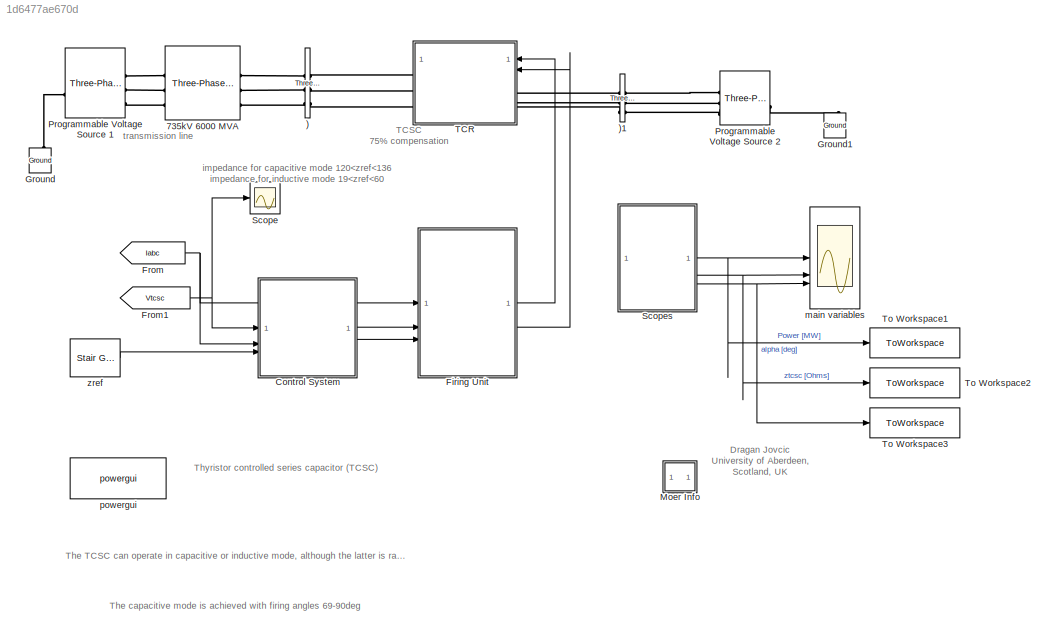
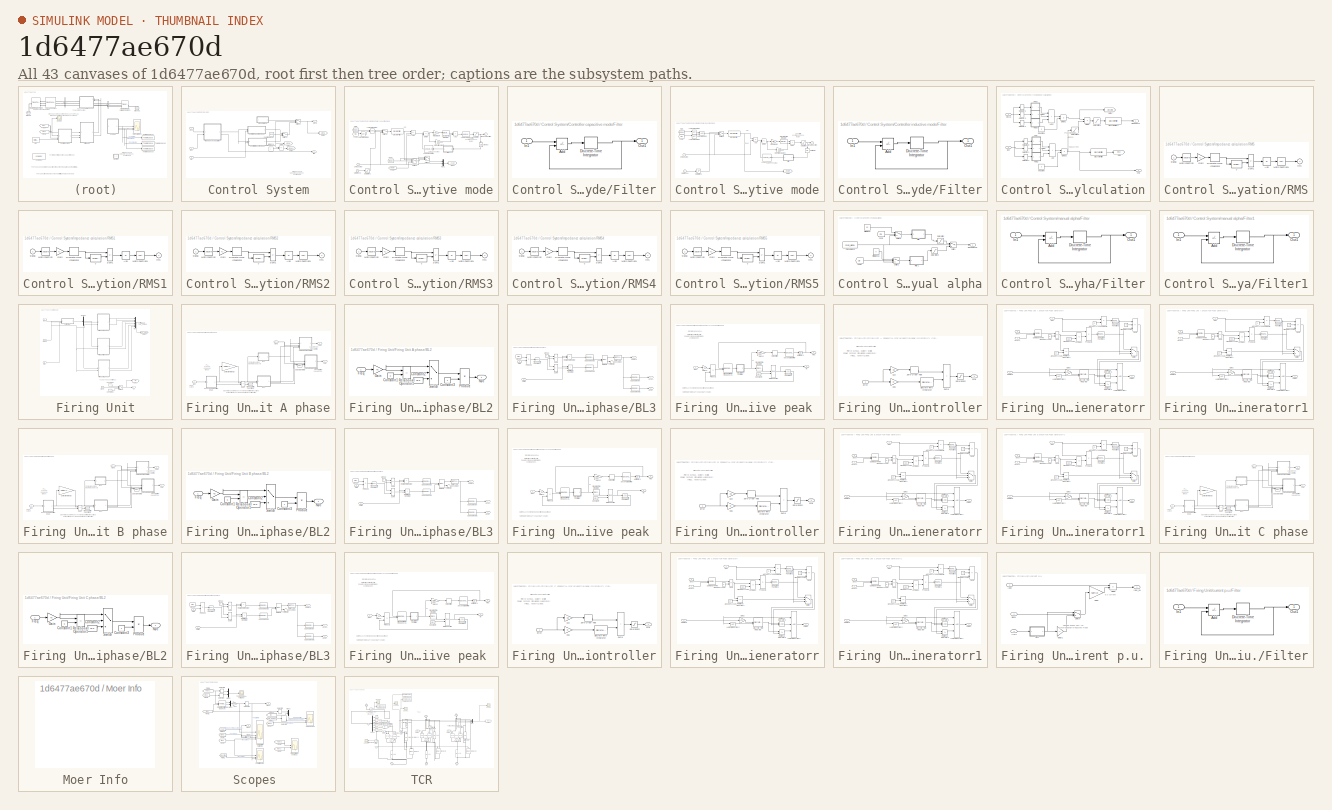
[diagram: thumbnail index - all 43 canvases of the model, root first then tree order]
MODEL slx_1d6477ae670d
KIND model
CONFIG AbsTol = 1e-4
CONFIG EnableMultiTasking = off
CONFIG FixedStep = Ts
CONFIG MaxStep = 2*Ts
CONFIG MinStep = auto
CONFIG PreLoadFcn = Ts=50e-6;  
CONFIG RelTol = 1e-4
CONFIG SampleTimeConstraint = Unconstrained
CONFIG SolverName = FixedStepAuto
CONFIG StartTime = 0.0
CONFIG StopTime = 3
BLOCK [Reference] )  REF=spsThreePhaseVIMeasurementLib/Three-Phase
V-I Measurement
  SourceBlock = spsThreePhaseVIMeasurementLib/Three-Phase\nV-I Measurement
  SourceType = Three-Phase VI Measurement
BLOCK [Reference] )1  REF=spsThreePhaseVIMeasurementLib/Three-Phase
V-I Measurement
  SourceBlock = spsThreePhaseVIMeasurementLib/Three-Phase\nV-I Measurement
  SourceType = Three-Phase VI Measurement
BLOCK [Reference] 735kV 6000 MVA   REF=spsThreePhaseSeriesRLCBranchLib/Three-Phase
Series RLC Branch
  AttributesFormatString = \n
  SourceBlock = spsThreePhaseSeriesRLCBranchLib/Three-Phase\nSeries RLC Branch
  SourceType = Three-Phase Series RLC Branch
BLOCK [SubSystem] Control System
BLOCK [Sum] Control System/Add1
  IconShape = rectangular
  Inputs = +-
BLOCK [SubSystem] Control System/Controller capacitive mode
  OpenFcn = power_openblockproxy();
BLOCK [Sum] Control System/Controller capacitive mode/Ad1
  IconShape = rectangular
BLOCK [Sum] Control System/Controller capacitive mode/Add
  IconShape = rectangular
  Inputs = -+
BLOCK [DiscreteFilter] Control System/Controller capacitive mode/Discrete Filter
  Denominator = [1 -exp(-25*Ts)]
  InputPortMap = u0
  Numerator = [25*Ts]
  SampleTime = Ts
BLOCK [DiscreteIntegrator] Control System/Controller capacitive mode/Discrete-Time Integrator
  ICPrevOutput = DiscIntNeverNeededParam
  ICPrevScaledInput = DiscIntNeverNeededParam
  InitialCondition = 90
  LimitOutput = on
  LowerSaturationLimit = 69
  SampleTime = Ts
  UpperSaturationLimit = 90
BLOCK [Product] Control System/Controller capacitive mode/Divide
  Inputs = **
BLOCK [SubSystem] Control System/Controller capacitive mode/Filter
  TreatAsAtomicUnit = on
BLOCK [Sum] Control System/Controller capacitive mode/Filter/Add
  IconShape = rectangular
  Inputs = +-
BLOCK [DiscreteIntegrator] Control System/Controller capacitive mode/Filter/Discrete-Time Integrator
  ICPrevOutput = DiscIntNeverNeededParam
  ICPrevScaledInput = DiscIntNeverNeededParam
  InitialCondition = 90
  SampleTime = Ts
  gainval = 150
BLOCK [Inport] Control System/Controller capacitive mode/Filter/In1
BLOCK [Outport] Control System/Controller capacitive mode/Filter/Out1
  VectorParamsAs1DForOutWhenUnconnected = off
BLOCK [From] Control System/Controller capacitive mode/Fom1
  CloseFcn = tagdialog Close
  GotoTag = CB
  TagVisibility = global
BLOCK [From] Control System/Controller capacitive mode/Fom2
  CloseFcn = tagdialog Close
  GotoTag = zindref
  TagVisibility = global
BLOCK [From] Control System/Controller capacitive mode/From
  CloseFcn = tagdialog Close
  GotoTag = mode1
  TagVisibility = global
BLOCK [From] Control System/Controller capacitive mode/From1
  CloseFcn = tagdialog Close
  GotoTag = mode
  TagVisibility = global
BLOCK [Goto] Control System/Controller capacitive mode/Goto1
  GotoTag = zcap
  TagVisibility = global
BLOCK [Gain] Control System/Controller capacitive mode/Integral gain
  Gain = kic
BLOCK [Reference] Control System/Controller capacitive mode/Lead-Lag Filter  REF=spsLeadLagFilterLib/Lead-Lag
Filter
  SourceBlock = spsLeadLagFilterLib/Lead-Lag\nFilter
  SourceType = Lead-Lag Filter
BLOCK [Logic] Control System/Controller capacitive mode/Logical Operator
  AllPortsSameDT = off
  OutDataTypeStr = boolean
BLOCK [Logic] Control System/Controller capacitive mode/Logical Operator1
  AllPortsSameDT = off
  Operator = NOT
  OutDataTypeStr = boolean
BLOCK [Lookup_n-D] Control System/Controller capacitive mode/Lookup Table1
  BreakpointsForDimension1 = [60 65 70 75 80 85 90]
  BreakpointsForDimension2 = [0 571.55 685.8 800.15 914.4 1028.8 1143.1 1257.4 1371.7 1486 1600.3 1714.6 1828.9 1943.2 2057.5 2171.8 2286.1 2400.5 2514.7 2629.1 2743.3 2857.7 2971.9 3086.3 3200.5 3314.9 3429.2]
  InputPortMap = u0
  InternalRulePriority = Speed
  NameLocation = top
  NumberOfTableDimensions = 1
  RndMeth = Simplest
  Table = [0.3 0.67 0.83 0.96 0.98 0.994 1]
BLOCK [Mux] Control System/Controller capacitive mode/Mux1
  DisplayOption = bar
  Inputs = 2
BLOCK [Saturate] Control System/Controller capacitive mode/Saturation
  LowerLimit = 69
  UpperLimit = 90
BLOCK [Saturate] Control System/Controller capacitive mode/Saturation1
  LowerLimit = 120.5
  UpperLimit = 136
BLOCK [Switch] Control System/Controller capacitive mode/Switch1
  InputSameDT = off
  SaturateOnIntegerOverflow = off
  Threshold = 1
BLOCK [Switch] Control System/Controller capacitive mode/Switch2
  InputSameDT = off
  SaturateOnIntegerOverflow = off
  Threshold = 2
BLOCK [Switch] Control System/Controller capacitive mode/Switch3
  InputSameDT = off
  SaturateOnIntegerOverflow = off
  Threshold = 3
BLOCK [Outport] Control System/Controller capacitive mode/alpha capacitive
  InitialOutput = 0
  VectorParamsAs1DForOutWhenUnconnected = off
BLOCK [UnitDelay] Control System/Controller capacitive mode/breaks
  HasFrameUpgradeWarning = on
  NameLocation = left
  SampleTime = Ts
BLOCK [Gain] Control System/Controller capacitive mode/proportional gain
  Gain = kpc
BLOCK [Inport] Control System/Controller capacitive mode/zmeasured
BLOCK [Inport] Control System/Controller capacitive mode/zreference
  Port = 2
BLOCK [SubSystem] Control System/Controller inductive mode
  OpenFcn = power_openblockproxy();
BLOCK [Sum] Control System/Controller inductive mode/Add
  IconShape = rectangular
  Inputs = +-
BLOCK [Sum] Control System/Controller inductive mode/Add1
  IconShape = rectangular
BLOCK [DiscreteFilter] Control System/Controller inductive mode/Discrete Filter
  Denominator = [1 -exp(-25*Ts)]
  InputPortMap = u0
  Numerator = [25*Ts]
  SampleTime = Ts
BLOCK [DiscreteIntegrator] Control System/Controller inductive mode/Discrete-Time Integrator
  ICPrevOutput = DiscIntNeverNeededParam
  ICPrevScaledInput = DiscIntNeverNeededParam
  LimitOutput = on
  LowerSaturationLimit = 0
  SampleTime = Ts
  UpperSaturationLimit = 47
BLOCK [Product] Control System/Controller inductive mode/Divide
  Inputs = **
BLOCK [SubSystem] Control System/Controller inductive mode/Filter
  TreatAsAtomicUnit = on
BLOCK [Sum] Control System/Controller inductive mode/Filter/Add
  IconShape = rectangular
  Inputs = +-
BLOCK [DiscreteIntegrator] Control System/Controller inductive mode/Filter/Discrete-Time Integrator
  ICPrevOutput = DiscIntNeverNeededParam
  ICPrevScaledInput = DiscIntNeverNeededParam
  SampleTime = Ts
  gainval = 150
BLOCK [Inport] Control System/Controller inductive mode/Filter/In1
BLOCK [Outport] Control System/Controller inductive mode/Filter/Out1
  VectorParamsAs1DForOutWhenUnconnected = off
BLOCK [From] Control System/Controller inductive mode/Fom1
  CloseFcn = tagdialog Close
  GotoTag = CB
  TagVisibility = global
BLOCK [From] Control System/Controller inductive mode/From
  CloseFcn = tagdialog Close
  GotoTag = mode1
  TagVisibility = global
BLOCK [Goto] Control System/Controller inductive mode/Goto1
  GotoTag = zindref
  TagVisibility = global
BLOCK [Gain] Control System/Controller inductive mode/Integral gain
  Gain = kiin
BLOCK [Logic] Control System/Controller inductive mode/Logical Operaor
  AllPortsSameDT = off
  OutDataTypeStr = boolean
BLOCK [Logic] Control System/Controller inductive mode/Logical Operator1
  AllPortsSameDT = off
  Operator = NOT
  OutDataTypeStr = boolean
BLOCK [Logic] Control System/Controller inductive mode/Logical Operator2
  AllPortsSameDT = off
  Operator = NOT
  OutDataTypeStr = boolean
BLOCK [Lookup_n-D] Control System/Controller inductive mode/Lookup Table1
  BreakpointsForDimension1 = [0 5 10 15 20 25 30 35 40 45 50 55]
  BreakpointsForDimension2 = [0 571.55 685.8 800.15 914.4 1028.8 1143.1 1257.4 1371.7 1486 1600.3 1714.6 1828.9 1943.2 2057.5 2171.8 2286.1 2400.5 2514.7 2629.1 2743.3 2857.7 2971.9 3086.3 3200.5 3314.9 3429.2]
  InputPortMap = u0
  InternalRulePriority = Speed
  NameLocation = top
  NumberOfTableDimensions = 1
  RndMeth = Simplest
  Table = [1 0.95 0.9  0.875  0.86  0.76 0.68  0.58 0.44 0.3 0.15 0.04  ]
BLOCK [Saturate] Control System/Controller inductive mode/Saturation
  LowerLimit = 0
  UpperLimit = 47
BLOCK [Saturate] Control System/Controller inductive mode/Saturation1
  LowerLimit = 19.3
  UpperLimit = 60
BLOCK [Switch] Control System/Controller inductive mode/Switch1
  InputSameDT = off
  SaturateOnIntegerOverflow = off
  Threshold = 1
BLOCK [UnitDelay] Control System/Controller inductive mode/Unit Delay
  HasFrameUpgradeWarning = on
  NameLocation = left
  SampleTime = Ts
BLOCK [Outport] Control System/Controller inductive mode/alpha inductive
  InitialOutput = 0
  VectorParamsAs1DForOutWhenUnconnected = off
BLOCK [Gain] Control System/Controller inductive mode/proportional gain1
  Gain = kpin
BLOCK [Inport] Control System/Controller inductive mode/zmeasured
BLOCK [Inport] Control System/Controller inductive mode/zreference
  Port = 2
BLOCK [Goto] Control System/Goto1
  GotoTag = alpha
  TagVisibility = global
BLOCK [Goto] Control System/Goto2
  GotoTag = mode
  TagVisibility = global
BLOCK [Goto] Control System/Goto3
  GotoTag = mode1
  TagVisibility = global
BLOCK [Inport] Control System/Iabc
  Port = 2
  PortDimensions = 3
BLOCK [SubSystem] Control System/Impedance calculation
BLOCK [Sum] Control System/Impedance calculation/Add
  IconShape = rectangular
  Inputs = +++
BLOCK [Sum] Control System/Impedance calculation/Add1
  IconShape = rectangular
  Inputs = +++
BLOCK [DiscreteFilter] Control System/Impedance calculation/Discrete Filter
  Denominator = [1 -exp(-30*Ts)]
  InputPortMap = u0
  Numerator = [30*Ts]
  SampleTime = Ts
BLOCK [DiscreteFilter] Control System/Impedance calculation/Discrete Filter1
  Denominator = [1 -exp(-50*Ts)]
  InputPortMap = u0
  Numerator = [50*Ts]
  SampleTime = Ts
BLOCK [Product] Control System/Impedance calculation/Divide
  Inputs = */
BLOCK [Product] Control System/Impedance calculation/Divide1
  Inputs = */
BLOCK [Product] Control System/Impedance calculation/Divide2
  Inputs = */
BLOCK [Goto] Control System/Impedance calculation/Goto
  GotoTag = Itcsc
  TagVisibility = global
BLOCK [Goto] Control System/Impedance calculation/Goto1
  GotoTag = Vtcscrms
  TagVisibility = global
BLOCK [Inport] Control System/Impedance calculation/Iabc
  Port = 2
BLOCK [Outport] Control System/Impedance calculation/Irms
  Port = 2
  VectorParamsAs1DForOutWhenUnconnected = off
BLOCK [SubSystem] Control System/Impedance calculation/RMS
  OpenFcn = power_openblockproxy();
BLOCK [Abs] Control System/Impedance calculation/RMS/Abs
BLOCK [DiscreteIntegrator] Control System/Impedance calculation/RMS/Discrete-Time Integrator
  ICPrevOutput = DiscIntNeverNeededParam
  ICPrevScaledInput = DiscIntNeverNeededParam
  SampleTime = Ts
BLOCK [Gain] Control System/Impedance calculation/RMS/Gain
  Gain = f1
  OutDataTypeStr = Inherit: Same as input
  ParamDataTypeStr = Inherit: Same as input
  SaturateOnIntegerOverflow = on
BLOCK [Math] Control System/Impedance calculation/RMS/Math Function
  Operator = square
  SignedPower = on
BLOCK [Math] Control System/Impedance calculation/RMS/Math Function1
  Operator = sqrt
  SignedPower = on
BLOCK [Sum] Control System/Impedance calculation/RMS/Sum1
  IconShape = rectangular
  InputSameDT = on
  Inputs = +-
  OutDataTypeStr = Inherit: Same as first input
  SaturateOnIntegerOverflow = on
BLOCK [TransportDelay] Control System/Impedance calculation/RMS/T
  DelayTime = 1/f1
BLOCK [Outport] Control System/Impedance calculation/RMS/rms
  InitialOutput = 0
  VectorParamsAs1DForOutWhenUnconnected = off
BLOCK [Inport] Control System/Impedance calculation/RMS/signal
BLOCK [SubSystem] Control System/Impedance calculation/RMS1
  OpenFcn = power_openblockproxy();
BLOCK [Abs] Control System/Impedance calculation/RMS1/Abs
BLOCK [DiscreteIntegrator] Control System/Impedance calculation/RMS1/Discrete-Time Integrator
  ICPrevOutput = DiscIntNeverNeededParam
  ICPrevScaledInput = DiscIntNeverNeededParam
  SampleTime = Ts
BLOCK [Gain] Control System/Impedance calculation/RMS1/Gain
  Gain = f1
  OutDataTypeStr = Inherit: Same as input
  ParamDataTypeStr = Inherit: Same as input
  SaturateOnIntegerOverflow = on
BLOCK [Math] Control System/Impedance calculation/RMS1/Math Function
  Operator = square
  SignedPower = on
BLOCK [Math] Control System/Impedance calculation/RMS1/Math Function1
  Operator = sqrt
  SignedPower = on
BLOCK [Sum] Control System/Impedance calculation/RMS1/Sum1
  IconShape = rectangular
  InputSameDT = on
  Inputs = +-
  OutDataTypeStr = Inherit: Same as first input
  SaturateOnIntegerOverflow = on
BLOCK [TransportDelay] Control System/Impedance calculation/RMS1/T
  DelayTime = 1/f1
BLOCK [Outport] Control System/Impedance calculation/RMS1/rms
  InitialOutput = 0
  VectorParamsAs1DForOutWhenUnconnected = off
BLOCK [Inport] Control System/Impedance calculation/RMS1/signal
BLOCK [SubSystem] Control System/Impedance calculation/RMS2
  OpenFcn = power_openblockproxy();
BLOCK [Abs] Control System/Impedance calculation/RMS2/Abs
BLOCK [DiscreteIntegrator] Control System/Impedance calculation/RMS2/Discrete-Time Integrator
  ICPrevOutput = DiscIntNeverNeededParam
  ICPrevScaledInput = DiscIntNeverNeededParam
  SampleTime = Ts
BLOCK [Gain] Control System/Impedance calculation/RMS2/Gain
  Gain = f1
  OutDataTypeStr = Inherit: Same as input
  ParamDataTypeStr = Inherit: Same as input
  SaturateOnIntegerOverflow = on
BLOCK [Math] Control System/Impedance calculation/RMS2/Math Function
  Operator = square
  SignedPower = on
BLOCK [Math] Control System/Impedance calculation/RMS2/Math Function1
  Operator = sqrt
  SignedPower = on
BLOCK [Sum] Control System/Impedance calculation/RMS2/Sum1
  IconShape = rectangular
  InputSameDT = on
  Inputs = +-
  OutDataTypeStr = Inherit: Same as first input
  SaturateOnIntegerOverflow = on
BLOCK [TransportDelay] Control System/Impedance calculation/RMS2/T
  DelayTime = 1/f1
BLOCK [Outport] Control System/Impedance calculation/RMS2/rms
  InitialOutput = 0
  VectorParamsAs1DForOutWhenUnconnected = off
BLOCK [Inport] Control System/Impedance calculation/RMS2/signal
BLOCK [SubSystem] Control System/Impedance calculation/RMS3
  OpenFcn = power_openblockproxy();
BLOCK [Abs] Control System/Impedance calculation/RMS3/Abs
BLOCK [DiscreteIntegrator] Control System/Impedance calculation/RMS3/Discrete-Time Integrator
  ICPrevOutput = DiscIntNeverNeededParam
  ICPrevScaledInput = DiscIntNeverNeededParam
  SampleTime = Ts
BLOCK [Gain] Control System/Impedance calculation/RMS3/Gain
  Gain = f1
  OutDataTypeStr = Inherit: Same as input
  ParamDataTypeStr = Inherit: Same as input
  SaturateOnIntegerOverflow = on
BLOCK [Math] Control System/Impedance calculation/RMS3/Math Function
  Operator = square
  SignedPower = on
BLOCK [Math] Control System/Impedance calculation/RMS3/Math Function1
  Operator = sqrt
  SignedPower = on
BLOCK [Sum] Control System/Impedance calculation/RMS3/Sum1
  IconShape = rectangular
  InputSameDT = on
  Inputs = +-
  OutDataTypeStr = Inherit: Same as first input
  SaturateOnIntegerOverflow = on
BLOCK [TransportDelay] Control System/Impedance calculation/RMS3/T
  DelayTime = 1/f1
BLOCK [Outport] Control System/Impedance calculation/RMS3/rms
  InitialOutput = 0
  VectorParamsAs1DForOutWhenUnconnected = off
BLOCK [Inport] Control System/Impedance calculation/RMS3/signal
BLOCK [SubSystem] Control System/Impedance calculation/RMS4
  OpenFcn = power_openblockproxy();
BLOCK [Abs] Control System/Impedance calculation/RMS4/Abs
BLOCK [DiscreteIntegrator] Control System/Impedance calculation/RMS4/Discrete-Time Integrator
  ICPrevOutput = DiscIntNeverNeededParam
  ICPrevScaledInput = DiscIntNeverNeededParam
  SampleTime = Ts
BLOCK [Gain] Control System/Impedance calculation/RMS4/Gain
  Gain = f1
  OutDataTypeStr = Inherit: Same as input
  ParamDataTypeStr = Inherit: Same as input
  SaturateOnIntegerOverflow = on
BLOCK [Math] Control System/Impedance calculation/RMS4/Math Function
  Operator = square
  SignedPower = on
BLOCK [Math] Control System/Impedance calculation/RMS4/Math Function1
  Operator = sqrt
  SignedPower = on
BLOCK [Sum] Control System/Impedance calculation/RMS4/Sum1
  IconShape = rectangular
  InputSameDT = on
  Inputs = +-
  OutDataTypeStr = Inherit: Same as first input
  SaturateOnIntegerOverflow = on
BLOCK [TransportDelay] Control System/Impedance calculation/RMS4/T
  DelayTime = 1/f1
BLOCK [Outport] Control System/Impedance calculation/RMS4/rms
  InitialOutput = 0
  VectorParamsAs1DForOutWhenUnconnected = off
BLOCK [Inport] Control System/Impedance calculation/RMS4/signal
BLOCK [SubSystem] Control System/Impedance calculation/RMS5
  OpenFcn = power_openblockproxy();
BLOCK [Abs] Control System/Impedance calculation/RMS5/Abs
BLOCK [DiscreteIntegrator] Control System/Impedance calculation/RMS5/Discrete-Time Integrator
  ICPrevOutput = DiscIntNeverNeededParam
  ICPrevScaledInput = DiscIntNeverNeededParam
  SampleTime = Ts
BLOCK [Gain] Control System/Impedance calculation/RMS5/Gain
  Gain = f1
  OutDataTypeStr = Inherit: Same as input
  ParamDataTypeStr = Inherit: Same as input
  SaturateOnIntegerOverflow = on
BLOCK [Math] Control System/Impedance calculation/RMS5/Math Function
  Operator = square
  SignedPower = on
BLOCK [Math] Control System/Impedance calculation/RMS5/Math Function1
  Operator = sqrt
  SignedPower = on
BLOCK [Sum] Control System/Impedance calculation/RMS5/Sum1
  IconShape = rectangular
  InputSameDT = on
  Inputs = +-
  OutDataTypeStr = Inherit: Same as first input
  SaturateOnIntegerOverflow = on
BLOCK [TransportDelay] Control System/Impedance calculation/RMS5/T
  DelayTime = 1/f1
BLOCK [Outport] Control System/Impedance calculation/RMS5/rms
  InitialOutput = 0
  VectorParamsAs1DForOutWhenUnconnected = off
BLOCK [Inport] Control System/Impedance calculation/RMS5/signal
BLOCK [Saturate] Control System/Impedance calculation/Saturation1
  LowerLimit = 10
  UpperLimit = 300
BLOCK [Saturate] Control System/Impedance calculation/Saturation2
  LowerLimit = 1e-10
  UpperLimit = 1e10
BLOCK [Selector] Control System/Impedance calculation/Selector1
  IndexOptions = Index vector (dialog)
  Indices = 2
  InputPortWidth = 3
  OutputSizes = 1
BLOCK [Selector] Control System/Impedance calculation/Selector2
  IndexOptions = Index vector (dialog)
  Indices = 3
  InputPortWidth = 3
  OutputSizes = 1
BLOCK [Selector] Control System/Impedance calculation/Selector3
  IndexOptions = Index vector (dialog)
  Indices = 2
  InputPortWidth = 3
  OutputSizes = 1
BLOCK [Selector] Control System/Impedance calculation/Selector4
  IndexOptions = Index vector (dialog)
  Indices = 3
  InputPortWidth = 3
  OutputSizes = 1
BLOCK [Selector] Control System/Impedance calculation/Selector5
  IndexOptions = Index vector (dialog)
  Indices = 1
  InputPortWidth = 3
  OutputSizes = 1
BLOCK [Selector] Control System/Impedance calculation/Selector8
  IndexOptions = Index vector (dialog)
  Indices = 1
  InputPortWidth = 3
  OutputSizes = 1
BLOCK [Inport] Control System/Impedance calculation/Vtcsca
BLOCK [Outport] Control System/Impedance calculation/impedance
  VectorParamsAs1DForOutWhenUnconnected = off
BLOCK [Constant] Control System/Impedance calculation/inductive
  Value = 3
BLOCK [Constant] Control System/Impedance calculation/inductive1
  Value = 3
BLOCK [Outport] Control System/Irms
  Port = 2
  VectorParamsAs1DForOutWhenUnconnected = off
BLOCK [Switch] Control System/Switch1
  InputSameDT = off
  SaturateOnIntegerOverflow = off
  Threshold = 2
BLOCK [Switch] Control System/Switch2
  InputSameDT = off
  SaturateOnIntegerOverflow = off
  Threshold = 3
BLOCK [Inport] Control System/Vtcsc
  PortDimensions = 3
BLOCK [Outport] Control System/alpha
  VectorParamsAs1DForOutWhenUnconnected = off
BLOCK [SubSystem] Control System/manual alpha
BLOCK [SubSystem] Control System/manual alpha/Filter
  TreatAsAtomicUnit = on
BLOCK [Sum] Control System/manual alpha/Filter/Add
  IconShape = rectangular
  Inputs = +-
BLOCK [DiscreteIntegrator] Control System/manual alpha/Filter/Discrete-Time Integrator
  ICPrevOutput = DiscIntNeverNeededParam
  ICPrevScaledInput = DiscIntNeverNeededParam
  InitialCondition = 90
  SampleTime = Ts
  gainval = 3
BLOCK [Inport] Control System/manual alpha/Filter/In1
BLOCK [Outport] Control System/manual alpha/Filter/Out1
  VectorParamsAs1DForOutWhenUnconnected = off
BLOCK [SubSystem] Control System/manual alpha/Filter1
  TreatAsAtomicUnit = on
BLOCK [Sum] Control System/manual alpha/Filter1/Add
  IconShape = rectangular
  Inputs = +-
BLOCK [DiscreteIntegrator] Control System/manual alpha/Filter1/Discrete-Time Integrator
  ICPrevOutput = DiscIntNeverNeededParam
  ICPrevScaledInput = DiscIntNeverNeededParam
  SampleTime = Ts
  gainval = 3
BLOCK [Inport] Control System/manual alpha/Filter1/In1
BLOCK [Outport] Control System/manual alpha/Filter1/Out1
  VectorParamsAs1DForOutWhenUnconnected = off
BLOCK [From] Control System/manual alpha/Fom1
  CloseFcn = tagdialog Close
  GotoTag = CB
  TagVisibility = global
BLOCK [From] Control System/manual alpha/Fom2
  CloseFcn = tagdialog Close
  GotoTag = CB
  TagVisibility = global
BLOCK [Saturate] Control System/manual alpha/Saturation
  LowerLimit = 68
  UpperLimit = 90
BLOCK [Saturate] Control System/manual alpha/Saturation2
  LowerLimit = 0
  UpperLimit = 49
BLOCK [Switch] Control System/manual alpha/Switch
  InputSameDT = off
  SaturateOnIntegerOverflow = off
  Threshold = 59
BLOCK [Switch] Control System/manual alpha/Switch1
  InputSameDT = off
  SaturateOnIntegerOverflow = off
  Threshold = 1
BLOCK [Switch] Control System/manual alpha/Switch2
  InputSameDT = off
  SaturateOnIntegerOverflow = off
  Threshold = 1
BLOCK [Outport] Control System/manual alpha/alpha manual
  VectorParamsAs1DForOutWhenUnconnected = off
BLOCK [Constant] Control System/manual alpha/initial alpha
  Value = 90
BLOCK [Constant] Control System/manual alpha/initial alpha 1
  Value = 0
BLOCK [Constant] Control System/manual alpha/manual alpha
  Value = man_alpha
BLOCK [Constant] Control System/operating mode
  Value = mode
BLOCK [Constant] Control System/reference impedance1
BLOCK [Inport] Control System/zref
  Port = 3
  PortDimensions = 1
BLOCK [SubSystem] Firing Unit
BLOCK [Inport] Firing Unit/Alpha
  Port = 2
  PortDimensions = 1
BLOCK [Outport] Firing Unit/CB
  Port = 2
  VectorParamsAs1DForOutWhenUnconnected = off
BLOCK [Clock] Firing Unit/Clock
BLOCK [Constant] Firing Unit/Constant1
  NameLocation = top
BLOCK [Constant] Firing Unit/Constant4
  NameLocation = top
  Value = 0
BLOCK [Demux] Firing Unit/Demux
  DisplayOption = none
  Outputs = 3
BLOCK [SubSystem] Firing Unit/Firing Unit A phase
BLOCK [Inport] Firing Unit/Firing Unit A phase/Alpha
  Port = 2
  PortDimensions = 1
BLOCK [SubSystem] Firing Unit/Firing Unit A phase/BL2
  NameLocation = top
BLOCK [Constant] Firing Unit/Firing Unit A phase/BL2/Constant1
  Value = 0
BLOCK [Constant] Firing Unit/Firing Unit A phase/BL2/Constant2
  Value = 1e-5
BLOCK [Constant] Firing Unit/Firing Unit A phase/BL2/Constant3
BLOCK [Inport] Firing Unit/Firing Unit A phase/BL2/Freq
  PortDimensions = 1
BLOCK [Gain] Firing Unit/Firing Unit A phase/BL2/Gain
  Gain = Ts
  OutDataTypeStr = Inherit: Same as input
  ParamDataTypeStr = Inherit: Same as input
  SaturateOnIntegerOverflow = on
BLOCK [Outport] Firing Unit/Firing Unit A phase/BL2/Ns//c
  VectorParamsAs1DForOutWhenUnconnected = off
BLOCK [Product] Firing Unit/Firing Unit A phase/BL2/Product
  InputSameDT = on
  Inputs = /*
  OutDataTypeStr = Inherit: Same as first input
  SaturateOnIntegerOverflow = on
BLOCK [RelationalOperator] Firing Unit/Firing Unit A phase/BL2/Relational Operator1
  Operator = ~=
BLOCK [Switch] Firing Unit/Firing Unit A phase/BL2/Switch
  Threshold = 0.5
BLOCK [SubSystem] Firing Unit/Firing Unit A phase/BL3
  NameLocation = top
BLOCK [Reference] Firing Unit/Firing Unit A phase/BL3/Bistable  REF=spsBistableLib/Bistable
  SourceBlock = spsBistableLib/Bistable
  SourceType = Bistable
BLOCK [DataTypeConversion] Firing Unit/Firing Unit A phase/BL3/Data Type Conversion
  RndMeth = Floor
  SaturateOnIntegerOverflow = off
BLOCK [Reference] Firing Unit/Firing Unit A phase/BL3/Edge Detector  REF=spsEdgeDetectorLib/Edge Detector
  SourceBlock = spsEdgeDetectorLib/Edge Detector
  SourceType = Edge Detector
BLOCK [Reference] Firing Unit/Firing Unit A phase/BL3/Edge Detector1  REF=spsEdgeDetectorLib/Edge Detector
  SourceBlock = spsEdgeDetectorLib/Edge Detector
  SourceType = Edge Detector
BLOCK [Reference] Firing Unit/Firing Unit A phase/BL3/Edge Detector2  REF=spsEdgeDetectorLib/Edge Detector
  SourceBlock = spsEdgeDetectorLib/Edge Detector
  SourceType = Edge Detector
BLOCK [Reference] Firing Unit/Firing Unit A phase/BL3/Edge Detector3  REF=spsEdgeDetectorLib/Edge Detector
  SourceBlock = spsEdgeDetectorLib/Edge Detector
  SourceType = Edge Detector
BLOCK [Inport] Firing Unit/Firing Unit A phase/BL3/Freq
  PortDimensions = 1
BLOCK [Product] Firing Unit/Firing Unit A phase/BL3/Product2
  InputSameDT = on
  OutDataTypeStr = Inherit: Same as first input
  SaturateOnIntegerOverflow = on
BLOCK [RelationalOperator] Firing Unit/Firing Unit A phase/BL3/Relational Operator
  Operator = >
BLOCK [RelationalOperator] Firing Unit/Firing Unit A phase/BL3/Relational Operator2
  Operator = <
BLOCK [Outport] Firing Unit/Firing Unit A phase/BL3/SqWave
  VectorParamsAs1DForOutWhenUnconnected = off
BLOCK [Sum] Firing Unit/Firing Unit A phase/BL3/Sum5
  IconShape = rectangular
  InputSameDT = on
  Inputs = +-
  OutDataTypeStr = Inherit: Same as first input
  SaturateOnIntegerOverflow = on
BLOCK [Sum] Firing Unit/Firing Unit A phase/BL3/Sum6
  IconShape = rectangular
  InputSameDT = on
  OutDataTypeStr = Inherit: Same as first input
  SaturateOnIntegerOverflow = on
BLOCK [Outport] Firing Unit/Firing Unit A phase/BL3/Sync +
  Port = 2
  VectorParamsAs1DForOutWhenUnconnected = off
BLOCK [Outport] Firing Unit/Firing Unit A phase/BL3/Sync -
  Port = 3
  VectorParamsAs1DForOutWhenUnconnected = off
BLOCK [Terminator] Firing Unit/Firing Unit A phase/BL3/Terminator
BLOCK [Trigonometry] Firing Unit/Firing Unit A phase/BL3/Trigonometric Function7
  NameLocation = top
BLOCK [Constant] Firing Unit/Firing Unit A phase/BL3/alpha2
  Value = 0
BLOCK [Constant] Firing Unit/Firing Unit A phase/BL3/alpha9
  Value = pi*Ts
BLOCK [Inport] Firing Unit/Firing Unit A phase/BL3/sin(wt)
  Port = 2
  PortDimensions = 1
BLOCK [Gain] Firing Unit/Firing Unit A phase/Correction for delay
  Gain = Nstep*Ts*2*pi
  NameLocation = top
  OutDataTypeStr = Inherit: Same as input
  ParamDataTypeStr = Inherit: Same as input
  SaturateOnIntegerOverflow = on
BLOCK [Inport] Firing Unit/Firing Unit A phase/Iabc
  PortDimensions = 1
BLOCK [Logic] Firing Unit/Firing Unit A phase/Logical Operator2
  Inputs = 3
  Operator = NOT
BLOCK [SubSystem] Firing Unit/Firing Unit A phase/PLL sync on positive peak 
BLOCK [Constant] Firing Unit/Firing Unit A phase/PLL sync on positive peak /Constant4
  NameLocation = top
  Value = 2*pi
BLOCK [SubSystem] Firing Unit/Firing Unit A phase/PLL sync on positive peak /Discrete PI Controller
  DialogController = POWERSYS.PowerSysDialog
BLOCK [DiscreteIntegrator] Firing Unit/Firing Unit A phase/PLL sync on positive peak /Discrete PI Controller/Discrete-Time Integrator
  ICPrevOutput = DiscIntNeverNeededParam
  ICPrevScaledInput = DiscIntNeverNeededParam
  InitialCondition = Init
  LimitOutput = on
  LowerSaturationLimit = LowerLimit
  SampleTime = Ts
  UpperSaturationLimit = UpperLimit
BLOCK [Inport] Firing Unit/Firing Unit A phase/PLL sync on positive peak /Discrete PI Controller/Error
  SampleTime = Ts
BLOCK [Gain] Firing Unit/Firing Unit A phase/PLL sync on positive peak /Discrete PI Controller/Kp4
  Gain = Kp
  OutDataTypeStr = Inherit: Same as input
  ParamDataTypeStr = Inherit: Same as input
  SampleTime = Ts
  SaturateOnIntegerOverflow = on
BLOCK [Gain] Firing Unit/Firing Unit A phase/PLL sync on positive peak /Discrete PI Controller/Kp5
  Gain = Ki
  OutDataTypeStr = Inherit: Same as input
  ParamDataTypeStr = Inherit: Same as input
  SampleTime = Ts
  SaturateOnIntegerOverflow = on
BLOCK [Outport] Firing Unit/Firing Unit A phase/PLL sync on positive peak /Discrete PI Controller/Out
  InitialOutput = 0
  SampleTime = Ts
  VectorParamsAs1DForOutWhenUnconnected = off
BLOCK [Saturate] Firing Unit/Firing Unit A phase/PLL sync on positive peak /Discrete PI Controller/Saturation2
  LowerLimit = LowerLimit
  NameLocation = top
  SampleTime = Ts
  UpperLimit = UpperLimit
BLOCK [Sum] Firing Unit/Firing Unit A phase/PLL sync on positive peak /Discrete PI Controller/Sum6
  IconShape = rectangular
  InputSameDT = on
  OutDataTypeStr = Inherit: Same as first input
  SampleTime = Ts
  SaturateOnIntegerOverflow = on
BLOCK [ZeroOrderHold] Firing Unit/Firing Unit A phase/PLL sync on positive peak /Discrete PI Controller/Zero-Order Hold
  SampleTime = Ts
BLOCK [DiscreteIntegrator] Firing Unit/Firing Unit A phase/PLL sync on positive peak /Discrete-Time Integrator
  ICPrevOutput = DiscIntNeverNeededParam
  ICPrevScaledInput = DiscIntNeverNeededParam
  InitialCondition = (Phase_Init-90)*pi/180
  SampleTime = Ts
BLOCK [Outport] Firing Unit/Firing Unit A phase/PLL sync on positive peak /Freq
  VectorParamsAs1DForOutWhenUnconnected = off
BLOCK [Gain] Firing Unit/Firing Unit A phase/PLL sync on positive peak /Gain10
  Gain = 1/2/pi
  OutDataTypeStr = Inherit: Same as input
  ParamDataTypeStr = Inherit: Same as input
  SaturateOnIntegerOverflow = on
BLOCK [Gain] Firing Unit/Firing Unit A phase/PLL sync on positive peak /Gain12
  OutDataTypeStr = Inherit: Same as input
  ParamDataTypeStr = Inherit: Same as input
  SaturateOnIntegerOverflow = on
BLOCK [Math] Firing Unit/Firing Unit A phase/PLL sync on positive peak /Math Function
  Operator = mod
  SignedPower = on
BLOCK [Reference] Firing Unit/Firing Unit A phase/PLL sync on positive peak /Mean (Variable Frequency)1  REF=spsMeanVariableFrequencyLib/Mean
(Variable Frequency)
  SourceBlock = spsMeanVariableFrequencyLib/Mean\n(Variable Frequency)
  SourceType = Mean (Variable Frequency)
BLOCK [Product] Firing Unit/Firing Unit A phase/PLL sync on positive peak /Product1
  InputSameDT = on
  OutDataTypeStr = Inherit: Same as first input
  SaturateOnIntegerOverflow = on
BLOCK [RateLimiter] Firing Unit/Firing Unit A phase/PLL sync on positive peak /Rate Limiter
  FallingSlewLimit = -10
  InitialCondition = Finit
  RisingSlewLimit = 10
  SampleTimeMode = inherited
BLOCK [Reference] Firing Unit/Firing Unit A phase/PLL sync on positive peak /Second-Order Filter  REF=spsSecondOrderFilterLib/Second-Order
Filter
  SourceBlock = spsSecondOrderFilterLib/Second-Order\nFilter
  SourceType = Second-Order Filter
BLOCK [Trigonometry] Firing Unit/Firing Unit A phase/PLL sync on positive peak /Trigonometric Function6
  NameLocation = top
  Operator = cos
BLOCK [UnitDelay] Firing Unit/Firing Unit A phase/PLL sync on positive peak /Unit Delay1
  AttributesFormatString = IC = %<InitialCondition>
  HasFrameUpgradeWarning = on
  InitialCondition = Finit
  SampleTime = Ts
BLOCK [Inport] Firing Unit/Firing Unit A phase/PLL sync on positive peak /V(pu)
BLOCK [Outport] Firing Unit/Firing Unit A phase/PLL sync on positive peak /wt
  Port = 2
  VectorParamsAs1DForOutWhenUnconnected = off
BLOCK [Sum] Firing Unit/Firing Unit A phase/Sum
  IconShape = rectangular
  InputSameDT = on
  OutDataTypeStr = Inherit: Same as first input
  SaturateOnIntegerOverflow = on
BLOCK [Outport] Firing Unit/Firing Unit A phase/TCR +
  VectorParamsAs1DForOutWhenUnconnected = off
BLOCK [Outport] Firing Unit/Firing Unit A phase/TCR -
  Port = 2
  VectorParamsAs1DForOutWhenUnconnected = off
BLOCK [SubSystem] Firing Unit/Firing Unit A phase/TCR Pulse Generatorr
BLOCK [Inport] Firing Unit/Firing Unit A phase/TCR Pulse Generatorr/Alpha
  Port = 2
  PortDimensions = 1
BLOCK [Constant] Firing Unit/Firing Unit A phase/TCR Pulse Generatorr/Alpha 90<A<181
  Value = 0
BLOCK [Constant] Firing Unit/Firing Unit A phase/TCR Pulse Generatorr/Alpha 90<A<182
  Value = 360
BLOCK [Constant] Firing Unit/Firing Unit A phase/TCR Pulse Generatorr/Alpha 90<A<183
  Value = 2
BLOCK [Constant] Firing Unit/Firing Unit A phase/TCR Pulse Generatorr/Alpha 90<A<184
  Value = 2
BLOCK [Constant] Firing Unit/Firing Unit A phase/TCR Pulse Generatorr/Alpha 90<A<185
  Value = 87
BLOCK [DiscreteIntegrator] Firing Unit/Firing Unit A phase/TCR Pulse Generatorr/Discrete-Time Integrator
  ExternalReset = rising
  ICPrevOutput = DiscIntNeverNeededParam
  ICPrevScaledInput = DiscIntNeverNeededParam
  LimitOutput = on
  LowerSaturationLimit = 0
  SampleTime = Ts
  UpperSaturationLimit = 100000
BLOCK [Gain] Firing Unit/Firing Unit A phase/TCR Pulse Generatorr/Gain2
  Gain = 1/Ts
  OutDataTypeStr = Inherit: Same as input
  ParamDataTypeStr = Inherit: Same as input
  SaturateOnIntegerOverflow = on
BLOCK [Logic] Firing Unit/Firing Unit A phase/TCR Pulse Generatorr/Logical Operator1
  Inputs = 3
BLOCK [Logic] Firing Unit/Firing Unit A phase/TCR Pulse Generatorr/Logical Operator2
  Inputs = 3
  Operator = NOT
BLOCK [Inport] Firing Unit/Firing Unit A phase/TCR Pulse Generatorr/Ns//c
BLOCK [Product] Firing Unit/Firing Unit A phase/TCR Pulse Generatorr/Product
  InputSameDT = on
  Inputs = */
  OutDataTypeStr = Inherit: Same as first input
  SaturateOnIntegerOverflow = on
BLOCK [Product] Firing Unit/Firing Unit A phase/TCR Pulse Generatorr/Product1
  InputSameDT = on
  Inputs = **
  OutDataTypeStr = Inherit: Same as first input
  SaturateOnIntegerOverflow = on
BLOCK [Product] Firing Unit/Firing Unit A phase/TCR Pulse Generatorr/Product2
  InputSameDT = on
  Inputs = */
  OutDataTypeStr = Inherit: Same as first input
  SaturateOnIntegerOverflow = on
BLOCK [RelationalOperator] Firing Unit/Firing Unit A phase/TCR Pulse Generatorr/Relational Operator1
  Operator = <=
BLOCK [RelationalOperator] Firing Unit/Firing Unit A phase/TCR Pulse Generatorr/Relational Operator2
BLOCK [RelationalOperator] Firing Unit/Firing Unit A phase/TCR Pulse Generatorr/Relational Operator3
  Operator = <=
BLOCK [Rounding] Firing Unit/Firing Unit A phase/TCR Pulse Generatorr/Rounding Function1
  Operator = round
BLOCK [Rounding] Firing Unit/Firing Unit A phase/TCR Pulse Generatorr/Rounding Function3
  Operator = round
BLOCK [Reference] Firing Unit/Firing Unit A phase/TCR Pulse Generatorr/Sample and Hold  REF=spsSampleandHoldLib/Sample and
Hold
  AttributesFormatString = IC = %<ic>
  SourceBlock = spsSampleandHoldLib/Sample and\nHold
  SourceType = Sample and Hold
BLOCK [Inport] Firing Unit/Firing Unit A phase/TCR Pulse Generatorr/SqWave
  Port = 4
  PortDimensions = 1
BLOCK [Sum] Firing Unit/Firing Unit A phase/TCR Pulse Generatorr/Sum1
  IconShape = rectangular
  InputSameDT = on
  Inputs = +-
  OutDataTypeStr = Inherit: Same as first input
  SaturateOnIntegerOverflow = on
BLOCK [Sum] Firing Unit/Firing Unit A phase/TCR Pulse Generatorr/Sum2
  IconShape = rectangular
  InputSameDT = on
  Inputs = +--
  OutDataTypeStr = Inherit: Same as first input
  SaturateOnIntegerOverflow = on
BLOCK [Switch] Firing Unit/Firing Unit A phase/TCR Pulse Generatorr/Switch
  Criteria = u2 > Threshold
BLOCK [Inport] Firing Unit/Firing Unit A phase/TCR Pulse Generatorr/Sync +//-
  Port = 3
  PortDimensions = 1
BLOCK [Outport] Firing Unit/Firing Unit A phase/TCR Pulse Generatorr/TCR +//-
  VectorParamsAs1DForOutWhenUnconnected = off
BLOCK [SubSystem] Firing Unit/Firing Unit A phase/TCR Pulse Generatorr1
BLOCK [Inport] Firing Unit/Firing Unit A phase/TCR Pulse Generatorr1/Alpha
  Port = 2
  PortDimensions = 1
BLOCK [Constant] Firing Unit/Firing Unit A phase/TCR Pulse Generatorr1/Alpha 90<A<181
  Value = 0
BLOCK [Constant] Firing Unit/Firing Unit A phase/TCR Pulse Generatorr1/Alpha 90<A<182
  Value = 360
BLOCK [Constant] Firing Unit/Firing Unit A phase/TCR Pulse Generatorr1/Alpha 90<A<183
  Value = 2
BLOCK [Constant] Firing Unit/Firing Unit A phase/TCR Pulse Generatorr1/Alpha 90<A<184
  Value = 2
BLOCK [Constant] Firing Unit/Firing Unit A phase/TCR Pulse Generatorr1/Alpha 90<A<185
  Value = 87
BLOCK [DiscreteIntegrator] Firing Unit/Firing Unit A phase/TCR Pulse Generatorr1/Discrete-Time Integrator
  ExternalReset = rising
  ICPrevOutput = DiscIntNeverNeededParam
  ICPrevScaledInput = DiscIntNeverNeededParam
  LimitOutput = on
  LowerSaturationLimit = 0
  SampleTime = Ts
  UpperSaturationLimit = 100000
BLOCK [Gain] Firing Unit/Firing Unit A phase/TCR Pulse Generatorr1/Gain2
  Gain = 1/Ts
  OutDataTypeStr = Inherit: Same as input
  ParamDataTypeStr = Inherit: Same as input
  SaturateOnIntegerOverflow = on
BLOCK [Logic] Firing Unit/Firing Unit A phase/TCR Pulse Generatorr1/Logical Operator1
  Inputs = 3
BLOCK [Logic] Firing Unit/Firing Unit A phase/TCR Pulse Generatorr1/Logical Operator2
  Inputs = 3
  Operator = NOT
BLOCK [Inport] Firing Unit/Firing Unit A phase/TCR Pulse Generatorr1/Ns//c
BLOCK [Product] Firing Unit/Firing Unit A phase/TCR Pulse Generatorr1/Product
  InputSameDT = on
  Inputs = */
  OutDataTypeStr = Inherit: Same as first input
  SaturateOnIntegerOverflow = on
BLOCK [Product] Firing Unit/Firing Unit A phase/TCR Pulse Generatorr1/Product1
  InputSameDT = on
  Inputs = **
  OutDataTypeStr = Inherit: Same as first input
  SaturateOnIntegerOverflow = on
BLOCK [Product] Firing Unit/Firing Unit A phase/TCR Pulse Generatorr1/Product2
  InputSameDT = on
  Inputs = */
  OutDataTypeStr = Inherit: Same as first input
  SaturateOnIntegerOverflow = on
BLOCK [RelationalOperator] Firing Unit/Firing Unit A phase/TCR Pulse Generatorr1/Relational Operator1
  Operator = <=
BLOCK [RelationalOperator] Firing Unit/Firing Unit A phase/TCR Pulse Generatorr1/Relational Operator2
BLOCK [RelationalOperator] Firing Unit/Firing Unit A phase/TCR Pulse Generatorr1/Relational Operator3
  Operator = <=
BLOCK [Rounding] Firing Unit/Firing Unit A phase/TCR Pulse Generatorr1/Rounding Function1
  Operator = round
BLOCK [Rounding] Firing Unit/Firing Unit A phase/TCR Pulse Generatorr1/Rounding Function3
  Operator = round
BLOCK [Reference] Firing Unit/Firing Unit A phase/TCR Pulse Generatorr1/Sample and Hold  REF=spsSampleandHoldLib/Sample and
Hold
  AttributesFormatString = IC = %<ic>
  SourceBlock = spsSampleandHoldLib/Sample and\nHold
  SourceType = Sample and Hold
BLOCK [Inport] Firing Unit/Firing Unit A phase/TCR Pulse Generatorr1/SqWave
  Port = 4
  PortDimensions = 1
BLOCK [Sum] Firing Unit/Firing Unit A phase/TCR Pulse Generatorr1/Sum1
  IconShape = rectangular
  InputSameDT = on
  Inputs = +-
  OutDataTypeStr = Inherit: Same as first input
  SaturateOnIntegerOverflow = on
BLOCK [Sum] Firing Unit/Firing Unit A phase/TCR Pulse Generatorr1/Sum2
  IconShape = rectangular
  InputSameDT = on
  Inputs = +--
  OutDataTypeStr = Inherit: Same as first input
  SaturateOnIntegerOverflow = on
BLOCK [Switch] Firing Unit/Firing Unit A phase/TCR Pulse Generatorr1/Switch
  Criteria = u2 > Threshold
BLOCK [Inport] Firing Unit/Firing Unit A phase/TCR Pulse Generatorr1/Sync +//-
  Port = 3
  PortDimensions = 1
BLOCK [Outport] Firing Unit/Firing Unit A phase/TCR Pulse Generatorr1/TCR +//-
  VectorParamsAs1DForOutWhenUnconnected = off
BLOCK [Trigonometry] Firing Unit/Firing Unit A phase/Trigonometric Function6
  NameLocation = top
BLOCK [SubSystem] Firing Unit/Firing Unit B phase
BLOCK [Inport] Firing Unit/Firing Unit B phase/Alpha
  Port = 2
  PortDimensions = 1
BLOCK [SubSystem] Firing Unit/Firing Unit B phase/BL2
  NameLocation = top
BLOCK [Constant] Firing Unit/Firing Unit B phase/BL2/Constant1
  Value = 0
BLOCK [Constant] Firing Unit/Firing Unit B phase/BL2/Constant2
  Value = 1e-5
BLOCK [Constant] Firing Unit/Firing Unit B phase/BL2/Constant3
BLOCK [Inport] Firing Unit/Firing Unit B phase/BL2/Freq
  PortDimensions = 1
BLOCK [Gain] Firing Unit/Firing Unit B phase/BL2/Gain
  Gain = Ts
  OutDataTypeStr = Inherit: Same as input
  ParamDataTypeStr = Inherit: Same as input
  SaturateOnIntegerOverflow = on
BLOCK [Outport] Firing Unit/Firing Unit B phase/BL2/Ns//c
  VectorParamsAs1DForOutWhenUnconnected = off
BLOCK [Product] Firing Unit/Firing Unit B phase/BL2/Product
  InputSameDT = on
  Inputs = /*
  OutDataTypeStr = Inherit: Same as first input
  SaturateOnIntegerOverflow = on
BLOCK [RelationalOperator] Firing Unit/Firing Unit B phase/BL2/Relational Operator1
  Operator = ~=
BLOCK [Switch] Firing Unit/Firing Unit B phase/BL2/Switch
  Threshold = 0.5
BLOCK [SubSystem] Firing Unit/Firing Unit B phase/BL3
  NameLocation = top
BLOCK [Reference] Firing Unit/Firing Unit B phase/BL3/Bistable  REF=spsBistableLib/Bistable
  SourceBlock = spsBistableLib/Bistable
  SourceType = Bistable
BLOCK [DataTypeConversion] Firing Unit/Firing Unit B phase/BL3/Data Type Conversion
  RndMeth = Floor
  SaturateOnIntegerOverflow = off
BLOCK [Reference] Firing Unit/Firing Unit B phase/BL3/Edge Detector  REF=spsEdgeDetectorLib/Edge Detector
  SourceBlock = spsEdgeDetectorLib/Edge Detector
  SourceType = Edge Detector
BLOCK [Reference] Firing Unit/Firing Unit B phase/BL3/Edge Detector1  REF=spsEdgeDetectorLib/Edge Detector
  SourceBlock = spsEdgeDetectorLib/Edge Detector
  SourceType = Edge Detector
BLOCK [Reference] Firing Unit/Firing Unit B phase/BL3/Edge Detector2  REF=spsEdgeDetectorLib/Edge Detector
  SourceBlock = spsEdgeDetectorLib/Edge Detector
  SourceType = Edge Detector
BLOCK [Reference] Firing Unit/Firing Unit B phase/BL3/Edge Detector3  REF=spsEdgeDetectorLib/Edge Detector
  SourceBlock = spsEdgeDetectorLib/Edge Detector
  SourceType = Edge Detector
BLOCK [Inport] Firing Unit/Firing Unit B phase/BL3/Freq
  PortDimensions = 1
BLOCK [Product] Firing Unit/Firing Unit B phase/BL3/Product2
  InputSameDT = on
  OutDataTypeStr = Inherit: Same as first input
  SaturateOnIntegerOverflow = on
BLOCK [RelationalOperator] Firing Unit/Firing Unit B phase/BL3/Relational Operator
  Operator = >
BLOCK [RelationalOperator] Firing Unit/Firing Unit B phase/BL3/Relational Operator2
  Operator = <
BLOCK [Outport] Firing Unit/Firing Unit B phase/BL3/SqWave
  VectorParamsAs1DForOutWhenUnconnected = off
BLOCK [Sum] Firing Unit/Firing Unit B phase/BL3/Sum5
  IconShape = rectangular
  InputSameDT = on
  Inputs = +-
  OutDataTypeStr = Inherit: Same as first input
  SaturateOnIntegerOverflow = on
BLOCK [Sum] Firing Unit/Firing Unit B phase/BL3/Sum6
  IconShape = rectangular
  InputSameDT = on
  OutDataTypeStr = Inherit: Same as first input
  SaturateOnIntegerOverflow = on
BLOCK [Outport] Firing Unit/Firing Unit B phase/BL3/Sync +
  Port = 2
  VectorParamsAs1DForOutWhenUnconnected = off
BLOCK [Outport] Firing Unit/Firing Unit B phase/BL3/Sync -
  Port = 3
  VectorParamsAs1DForOutWhenUnconnected = off
BLOCK [Terminator] Firing Unit/Firing Unit B phase/BL3/Terminator
BLOCK [Trigonometry] Firing Unit/Firing Unit B phase/BL3/Trigonometric Function7
  NameLocation = top
BLOCK [Constant] Firing Unit/Firing Unit B phase/BL3/alpha2
  Value = 0
BLOCK [Constant] Firing Unit/Firing Unit B phase/BL3/alpha9
  Value = pi*Ts
BLOCK [Inport] Firing Unit/Firing Unit B phase/BL3/sin(wt)
  Port = 2
  PortDimensions = 1
BLOCK [Gain] Firing Unit/Firing Unit B phase/Correction for delay
  Gain = Nstep*Ts*2*pi
  NameLocation = top
  OutDataTypeStr = Inherit: Same as input
  ParamDataTypeStr = Inherit: Same as input
  SaturateOnIntegerOverflow = on
BLOCK [Inport] Firing Unit/Firing Unit B phase/Iabc
  PortDimensions = 1
BLOCK [Logic] Firing Unit/Firing Unit B phase/Logical Operator2
  Inputs = 3
  Operator = NOT
BLOCK [SubSystem] Firing Unit/Firing Unit B phase/PLL sync on positive peak 
BLOCK [Constant] Firing Unit/Firing Unit B phase/PLL sync on positive peak /Constant4
  NameLocation = top
  Value = 2*pi
BLOCK [SubSystem] Firing Unit/Firing Unit B phase/PLL sync on positive peak /Discrete PI Controller
  DialogController = POWERSYS.PowerSysDialog
BLOCK [DiscreteIntegrator] Firing Unit/Firing Unit B phase/PLL sync on positive peak /Discrete PI Controller/Discrete-Time Integrator
  ICPrevOutput = DiscIntNeverNeededParam
  ICPrevScaledInput = DiscIntNeverNeededParam
  InitialCondition = Init
  LimitOutput = on
  LowerSaturationLimit = LowerLimit
  SampleTime = Ts
  UpperSaturationLimit = UpperLimit
BLOCK [Inport] Firing Unit/Firing Unit B phase/PLL sync on positive peak /Discrete PI Controller/Error
  SampleTime = Ts
BLOCK [Gain] Firing Unit/Firing Unit B phase/PLL sync on positive peak /Discrete PI Controller/Kp4
  Gain = Kp
  OutDataTypeStr = Inherit: Same as input
  ParamDataTypeStr = Inherit: Same as input
  SampleTime = Ts
  SaturateOnIntegerOverflow = on
BLOCK [Gain] Firing Unit/Firing Unit B phase/PLL sync on positive peak /Discrete PI Controller/Kp5
  Gain = Ki
  OutDataTypeStr = Inherit: Same as input
  ParamDataTypeStr = Inherit: Same as input
  SampleTime = Ts
  SaturateOnIntegerOverflow = on
BLOCK [Outport] Firing Unit/Firing Unit B phase/PLL sync on positive peak /Discrete PI Controller/Out
  InitialOutput = 0
  SampleTime = Ts
  VectorParamsAs1DForOutWhenUnconnected = off
BLOCK [Saturate] Firing Unit/Firing Unit B phase/PLL sync on positive peak /Discrete PI Controller/Saturation2
  LowerLimit = LowerLimit
  NameLocation = top
  SampleTime = Ts
  UpperLimit = UpperLimit
BLOCK [Sum] Firing Unit/Firing Unit B phase/PLL sync on positive peak /Discrete PI Controller/Sum6
  IconShape = rectangular
  InputSameDT = on
  OutDataTypeStr = Inherit: Same as first input
  SampleTime = Ts
  SaturateOnIntegerOverflow = on
BLOCK [ZeroOrderHold] Firing Unit/Firing Unit B phase/PLL sync on positive peak /Discrete PI Controller/Zero-Order Hold
  SampleTime = Ts
BLOCK [DiscreteIntegrator] Firing Unit/Firing Unit B phase/PLL sync on positive peak /Discrete-Time Integrator
  ICPrevOutput = DiscIntNeverNeededParam
  ICPrevScaledInput = DiscIntNeverNeededParam
  InitialCondition = (Phase_Init-90)*pi/180
  SampleTime = Ts
BLOCK [Outport] Firing Unit/Firing Unit B phase/PLL sync on positive peak /Freq
  VectorParamsAs1DForOutWhenUnconnected = off
BLOCK [Gain] Firing Unit/Firing Unit B phase/PLL sync on positive peak /Gain10
  Gain = 1/2/pi
  OutDataTypeStr = Inherit: Same as input
  ParamDataTypeStr = Inherit: Same as input
  SaturateOnIntegerOverflow = on
BLOCK [Gain] Firing Unit/Firing Unit B phase/PLL sync on positive peak /Gain12
  OutDataTypeStr = Inherit: Same as input
  ParamDataTypeStr = Inherit: Same as input
  SaturateOnIntegerOverflow = on
BLOCK [Math] Firing Unit/Firing Unit B phase/PLL sync on positive peak /Math Function
  Operator = mod
  SignedPower = on
BLOCK [Reference] Firing Unit/Firing Unit B phase/PLL sync on positive peak /Mean (Variable Frequency)1  REF=spsMeanVariableFrequencyLib/Mean
(Variable Frequency)
  SourceBlock = spsMeanVariableFrequencyLib/Mean\n(Variable Frequency)
  SourceType = Mean (Variable Frequency)
BLOCK [Product] Firing Unit/Firing Unit B phase/PLL sync on positive peak /Product1
  InputSameDT = on
  OutDataTypeStr = Inherit: Same as first input
  SaturateOnIntegerOverflow = on
BLOCK [RateLimiter] Firing Unit/Firing Unit B phase/PLL sync on positive peak /Rate Limiter
  FallingSlewLimit = -10
  InitialCondition = Finit
  RisingSlewLimit = 10
  SampleTimeMode = inherited
BLOCK [Reference] Firing Unit/Firing Unit B phase/PLL sync on positive peak /Second-Order Filter  REF=spsSecondOrderFilterLib/Second-Order
Filter
  SourceBlock = spsSecondOrderFilterLib/Second-Order\nFilter
  SourceType = Second-Order Filter
BLOCK [Trigonometry] Firing Unit/Firing Unit B phase/PLL sync on positive peak /Trigonometric Function6
  NameLocation = top
  Operator = cos
BLOCK [UnitDelay] Firing Unit/Firing Unit B phase/PLL sync on positive peak /Unit Delay1
  AttributesFormatString = IC = %<InitialCondition>
  HasFrameUpgradeWarning = on
  InitialCondition = Finit
  SampleTime = Ts
BLOCK [Inport] Firing Unit/Firing Unit B phase/PLL sync on positive peak /V(pu)
BLOCK [Outport] Firing Unit/Firing Unit B phase/PLL sync on positive peak /wt
  Port = 2
  VectorParamsAs1DForOutWhenUnconnected = off
BLOCK [Sum] Firing Unit/Firing Unit B phase/Sum
  IconShape = rectangular
  InputSameDT = on
  OutDataTypeStr = Inherit: Same as first input
  SaturateOnIntegerOverflow = on
BLOCK [Outport] Firing Unit/Firing Unit B phase/TCR +
  VectorParamsAs1DForOutWhenUnconnected = off
BLOCK [Outport] Firing Unit/Firing Unit B phase/TCR -
  Port = 2
  VectorParamsAs1DForOutWhenUnconnected = off
BLOCK [SubSystem] Firing Unit/Firing Unit B phase/TCR Pulse Generatorr
BLOCK [Inport] Firing Unit/Firing Unit B phase/TCR Pulse Generatorr/Alpha
  Port = 2
  PortDimensions = 1
BLOCK [Constant] Firing Unit/Firing Unit B phase/TCR Pulse Generatorr/Alpha 90<A<181
  Value = 0
BLOCK [Constant] Firing Unit/Firing Unit B phase/TCR Pulse Generatorr/Alpha 90<A<182
  Value = 360
BLOCK [Constant] Firing Unit/Firing Unit B phase/TCR Pulse Generatorr/Alpha 90<A<183
  Value = 2
BLOCK [Constant] Firing Unit/Firing Unit B phase/TCR Pulse Generatorr/Alpha 90<A<184
  Value = 2
BLOCK [Constant] Firing Unit/Firing Unit B phase/TCR Pulse Generatorr/Alpha 90<A<185
  Value = 87
BLOCK [DiscreteIntegrator] Firing Unit/Firing Unit B phase/TCR Pulse Generatorr/Discrete-Time Integrator
  ExternalReset = rising
  ICPrevOutput = DiscIntNeverNeededParam
  ICPrevScaledInput = DiscIntNeverNeededParam
  LimitOutput = on
  LowerSaturationLimit = 0
  SampleTime = Ts
  UpperSaturationLimit = 100000
BLOCK [Gain] Firing Unit/Firing Unit B phase/TCR Pulse Generatorr/Gain2
  Gain = 1/Ts
  OutDataTypeStr = Inherit: Same as input
  ParamDataTypeStr = Inherit: Same as input
  SaturateOnIntegerOverflow = on
BLOCK [Logic] Firing Unit/Firing Unit B phase/TCR Pulse Generatorr/Logical Operator1
  Inputs = 3
BLOCK [Logic] Firing Unit/Firing Unit B phase/TCR Pulse Generatorr/Logical Operator2
  Inputs = 3
  Operator = NOT
BLOCK [Inport] Firing Unit/Firing Unit B phase/TCR Pulse Generatorr/Ns//c
BLOCK [Product] Firing Unit/Firing Unit B phase/TCR Pulse Generatorr/Product
  InputSameDT = on
  Inputs = */
  OutDataTypeStr = Inherit: Same as first input
  SaturateOnIntegerOverflow = on
BLOCK [Product] Firing Unit/Firing Unit B phase/TCR Pulse Generatorr/Product1
  InputSameDT = on
  Inputs = **
  OutDataTypeStr = Inherit: Same as first input
  SaturateOnIntegerOverflow = on
BLOCK [Product] Firing Unit/Firing Unit B phase/TCR Pulse Generatorr/Product2
  InputSameDT = on
  Inputs = */
  OutDataTypeStr = Inherit: Same as first input
  SaturateOnIntegerOverflow = on
BLOCK [RelationalOperator] Firing Unit/Firing Unit B phase/TCR Pulse Generatorr/Relational Operator1
  Operator = <=
BLOCK [RelationalOperator] Firing Unit/Firing Unit B phase/TCR Pulse Generatorr/Relational Operator2
BLOCK [RelationalOperator] Firing Unit/Firing Unit B phase/TCR Pulse Generatorr/Relational Operator3
  Operator = <=
BLOCK [Rounding] Firing Unit/Firing Unit B phase/TCR Pulse Generatorr/Rounding Function1
  Operator = round
BLOCK [Rounding] Firing Unit/Firing Unit B phase/TCR Pulse Generatorr/Rounding Function3
  Operator = round
BLOCK [Reference] Firing Unit/Firing Unit B phase/TCR Pulse Generatorr/Sample and Hold  REF=spsSampleandHoldLib/Sample and
Hold
  AttributesFormatString = IC = %<ic>
  SourceBlock = spsSampleandHoldLib/Sample and\nHold
  SourceType = Sample and Hold
BLOCK [Inport] Firing Unit/Firing Unit B phase/TCR Pulse Generatorr/SqWave
  Port = 4
  PortDimensions = 1
BLOCK [Sum] Firing Unit/Firing Unit B phase/TCR Pulse Generatorr/Sum1
  IconShape = rectangular
  InputSameDT = on
  Inputs = +-
  OutDataTypeStr = Inherit: Same as first input
  SaturateOnIntegerOverflow = on
BLOCK [Sum] Firing Unit/Firing Unit B phase/TCR Pulse Generatorr/Sum2
  IconShape = rectangular
  InputSameDT = on
  Inputs = +--
  OutDataTypeStr = Inherit: Same as first input
  SaturateOnIntegerOverflow = on
BLOCK [Switch] Firing Unit/Firing Unit B phase/TCR Pulse Generatorr/Switch
  Criteria = u2 > Threshold
BLOCK [Inport] Firing Unit/Firing Unit B phase/TCR Pulse Generatorr/Sync +//-
  Port = 3
  PortDimensions = 1
BLOCK [Outport] Firing Unit/Firing Unit B phase/TCR Pulse Generatorr/TCR +//-
  VectorParamsAs1DForOutWhenUnconnected = off
BLOCK [SubSystem] Firing Unit/Firing Unit B phase/TCR Pulse Generatorr1
BLOCK [Inport] Firing Unit/Firing Unit B phase/TCR Pulse Generatorr1/Alpha
  Port = 2
  PortDimensions = 1
BLOCK [Constant] Firing Unit/Firing Unit B phase/TCR Pulse Generatorr1/Alpha 90<A<181
  Value = 0
BLOCK [Constant] Firing Unit/Firing Unit B phase/TCR Pulse Generatorr1/Alpha 90<A<182
  Value = 360
BLOCK [Constant] Firing Unit/Firing Unit B phase/TCR Pulse Generatorr1/Alpha 90<A<183
  Value = 2
BLOCK [Constant] Firing Unit/Firing Unit B phase/TCR Pulse Generatorr1/Alpha 90<A<184
  Value = 2
BLOCK [Constant] Firing Unit/Firing Unit B phase/TCR Pulse Generatorr1/Alpha 90<A<185
  Value = 87
BLOCK [DiscreteIntegrator] Firing Unit/Firing Unit B phase/TCR Pulse Generatorr1/Discrete-Time Integrator
  ExternalReset = rising
  ICPrevOutput = DiscIntNeverNeededParam
  ICPrevScaledInput = DiscIntNeverNeededParam
  LimitOutput = on
  LowerSaturationLimit = 0
  SampleTime = Ts
  UpperSaturationLimit = 100000
BLOCK [Gain] Firing Unit/Firing Unit B phase/TCR Pulse Generatorr1/Gain2
  Gain = 1/Ts
  OutDataTypeStr = Inherit: Same as input
  ParamDataTypeStr = Inherit: Same as input
  SaturateOnIntegerOverflow = on
BLOCK [Logic] Firing Unit/Firing Unit B phase/TCR Pulse Generatorr1/Logical Operator1
  Inputs = 3
BLOCK [Logic] Firing Unit/Firing Unit B phase/TCR Pulse Generatorr1/Logical Operator2
  Inputs = 3
  Operator = NOT
BLOCK [Inport] Firing Unit/Firing Unit B phase/TCR Pulse Generatorr1/Ns//c
BLOCK [Product] Firing Unit/Firing Unit B phase/TCR Pulse Generatorr1/Product
  InputSameDT = on
  Inputs = */
  OutDataTypeStr = Inherit: Same as first input
  SaturateOnIntegerOverflow = on
BLOCK [Product] Firing Unit/Firing Unit B phase/TCR Pulse Generatorr1/Product1
  InputSameDT = on
  Inputs = **
  OutDataTypeStr = Inherit: Same as first input
  SaturateOnIntegerOverflow = on
BLOCK [Product] Firing Unit/Firing Unit B phase/TCR Pulse Generatorr1/Product2
  InputSameDT = on
  Inputs = */
  OutDataTypeStr = Inherit: Same as first input
  SaturateOnIntegerOverflow = on
BLOCK [RelationalOperator] Firing Unit/Firing Unit B phase/TCR Pulse Generatorr1/Relational Operator1
  Operator = <=
BLOCK [RelationalOperator] Firing Unit/Firing Unit B phase/TCR Pulse Generatorr1/Relational Operator2
BLOCK [RelationalOperator] Firing Unit/Firing Unit B phase/TCR Pulse Generatorr1/Relational Operator3
  Operator = <=
BLOCK [Rounding] Firing Unit/Firing Unit B phase/TCR Pulse Generatorr1/Rounding Function1
  Operator = round
BLOCK [Rounding] Firing Unit/Firing Unit B phase/TCR Pulse Generatorr1/Rounding Function3
  Operator = round
BLOCK [Reference] Firing Unit/Firing Unit B phase/TCR Pulse Generatorr1/Sample and Hold  REF=spsSampleandHoldLib/Sample and
Hold
  AttributesFormatString = IC = %<ic>
  SourceBlock = spsSampleandHoldLib/Sample and\nHold
  SourceType = Sample and Hold
BLOCK [Inport] Firing Unit/Firing Unit B phase/TCR Pulse Generatorr1/SqWave
  Port = 4
  PortDimensions = 1
BLOCK [Sum] Firing Unit/Firing Unit B phase/TCR Pulse Generatorr1/Sum1
  IconShape = rectangular
  InputSameDT = on
  Inputs = +-
  OutDataTypeStr = Inherit: Same as first input
  SaturateOnIntegerOverflow = on
BLOCK [Sum] Firing Unit/Firing Unit B phase/TCR Pulse Generatorr1/Sum2
  IconShape = rectangular
  InputSameDT = on
  Inputs = +--
  OutDataTypeStr = Inherit: Same as first input
  SaturateOnIntegerOverflow = on
BLOCK [Switch] Firing Unit/Firing Unit B phase/TCR Pulse Generatorr1/Switch
  Criteria = u2 > Threshold
BLOCK [Inport] Firing Unit/Firing Unit B phase/TCR Pulse Generatorr1/Sync +//-
  Port = 3
  PortDimensions = 1
BLOCK [Outport] Firing Unit/Firing Unit B phase/TCR Pulse Generatorr1/TCR +//-
  VectorParamsAs1DForOutWhenUnconnected = off
BLOCK [Trigonometry] Firing Unit/Firing Unit B phase/Trigonometric Function6
  NameLocation = top
BLOCK [SubSystem] Firing Unit/Firing Unit C phase
BLOCK [Inport] Firing Unit/Firing Unit C phase/Alpha
  Port = 2
  PortDimensions = 1
BLOCK [SubSystem] Firing Unit/Firing Unit C phase/BL2
  NameLocation = top
BLOCK [Constant] Firing Unit/Firing Unit C phase/BL2/Constant1
  Value = 0
BLOCK [Constant] Firing Unit/Firing Unit C phase/BL2/Constant2
  Value = 1e-5
BLOCK [Constant] Firing Unit/Firing Unit C phase/BL2/Constant3
BLOCK [Inport] Firing Unit/Firing Unit C phase/BL2/Freq
  PortDimensions = 1
BLOCK [Gain] Firing Unit/Firing Unit C phase/BL2/Gain
  Gain = Ts
  OutDataTypeStr = Inherit: Same as input
  ParamDataTypeStr = Inherit: Same as input
  SaturateOnIntegerOverflow = on
BLOCK [Outport] Firing Unit/Firing Unit C phase/BL2/Ns//c
  VectorParamsAs1DForOutWhenUnconnected = off
BLOCK [Product] Firing Unit/Firing Unit C phase/BL2/Product
  InputSameDT = on
  Inputs = /*
  OutDataTypeStr = Inherit: Same as first input
  SaturateOnIntegerOverflow = on
BLOCK [RelationalOperator] Firing Unit/Firing Unit C phase/BL2/Relational Operator1
  Operator = ~=
BLOCK [Switch] Firing Unit/Firing Unit C phase/BL2/Switch
  Threshold = 0.5
BLOCK [SubSystem] Firing Unit/Firing Unit C phase/BL3
  NameLocation = top
BLOCK [Reference] Firing Unit/Firing Unit C phase/BL3/Bistable  REF=spsBistableLib/Bistable
  SourceBlock = spsBistableLib/Bistable
  SourceType = Bistable
BLOCK [DataTypeConversion] Firing Unit/Firing Unit C phase/BL3/Data Type Conversion
  RndMeth = Floor
  SaturateOnIntegerOverflow = off
BLOCK [Reference] Firing Unit/Firing Unit C phase/BL3/Edge Detector  REF=spsEdgeDetectorLib/Edge Detector
  SourceBlock = spsEdgeDetectorLib/Edge Detector
  SourceType = Edge Detector
BLOCK [Reference] Firing Unit/Firing Unit C phase/BL3/Edge Detector1  REF=spsEdgeDetectorLib/Edge Detector
  SourceBlock = spsEdgeDetectorLib/Edge Detector
  SourceType = Edge Detector
BLOCK [Reference] Firing Unit/Firing Unit C phase/BL3/Edge Detector2  REF=spsEdgeDetectorLib/Edge Detector
  SourceBlock = spsEdgeDetectorLib/Edge Detector
  SourceType = Edge Detector
BLOCK [Reference] Firing Unit/Firing Unit C phase/BL3/Edge Detector3  REF=spsEdgeDetectorLib/Edge Detector
  SourceBlock = spsEdgeDetectorLib/Edge Detector
  SourceType = Edge Detector
BLOCK [Inport] Firing Unit/Firing Unit C phase/BL3/Freq
  PortDimensions = 1
BLOCK [Product] Firing Unit/Firing Unit C phase/BL3/Product2
  InputSameDT = on
  OutDataTypeStr = Inherit: Same as first input
  SaturateOnIntegerOverflow = on
BLOCK [RelationalOperator] Firing Unit/Firing Unit C phase/BL3/Relational Operator
  Operator = >
BLOCK [RelationalOperator] Firing Unit/Firing Unit C phase/BL3/Relational Operator2
  Operator = <
BLOCK [Outport] Firing Unit/Firing Unit C phase/BL3/SqWave
  VectorParamsAs1DForOutWhenUnconnected = off
BLOCK [Sum] Firing Unit/Firing Unit C phase/BL3/Sum5
  IconShape = rectangular
  InputSameDT = on
  Inputs = +-
  OutDataTypeStr = Inherit: Same as first input
  SaturateOnIntegerOverflow = on
BLOCK [Sum] Firing Unit/Firing Unit C phase/BL3/Sum6
  IconShape = rectangular
  InputSameDT = on
  OutDataTypeStr = Inherit: Same as first input
  SaturateOnIntegerOverflow = on
BLOCK [Outport] Firing Unit/Firing Unit C phase/BL3/Sync +
  Port = 2
  VectorParamsAs1DForOutWhenUnconnected = off
BLOCK [Outport] Firing Unit/Firing Unit C phase/BL3/Sync -
  Port = 3
  VectorParamsAs1DForOutWhenUnconnected = off
BLOCK [Terminator] Firing Unit/Firing Unit C phase/BL3/Terminator
BLOCK [Trigonometry] Firing Unit/Firing Unit C phase/BL3/Trigonometric Function7
  NameLocation = top
BLOCK [Constant] Firing Unit/Firing Unit C phase/BL3/alpha2
  Value = 0
BLOCK [Constant] Firing Unit/Firing Unit C phase/BL3/alpha9
  Value = pi*Ts
BLOCK [Inport] Firing Unit/Firing Unit C phase/BL3/sin(wt)
  Port = 2
  PortDimensions = 1
BLOCK [Gain] Firing Unit/Firing Unit C phase/Correction for delay
  Gain = Nstep*Ts*2*pi
  NameLocation = top
  OutDataTypeStr = Inherit: Same as input
  ParamDataTypeStr = Inherit: Same as input
  SaturateOnIntegerOverflow = on
BLOCK [Inport] Firing Unit/Firing Unit C phase/Iabc
  PortDimensions = 1
BLOCK [Logic] Firing Unit/Firing Unit C phase/Logical Operator2
  Inputs = 3
  Operator = NOT
BLOCK [SubSystem] Firing Unit/Firing Unit C phase/PLL sync on positive peak 
BLOCK [Constant] Firing Unit/Firing Unit C phase/PLL sync on positive peak /Constant4
  NameLocation = top
  Value = 2*pi
BLOCK [SubSystem] Firing Unit/Firing Unit C phase/PLL sync on positive peak /Discrete PI Controller
  DialogController = POWERSYS.PowerSysDialog
BLOCK [DiscreteIntegrator] Firing Unit/Firing Unit C phase/PLL sync on positive peak /Discrete PI Controller/Discrete-Time Integrator
  ICPrevOutput = DiscIntNeverNeededParam
  ICPrevScaledInput = DiscIntNeverNeededParam
  InitialCondition = Init
  LimitOutput = on
  LowerSaturationLimit = LowerLimit
  SampleTime = Ts
  UpperSaturationLimit = UpperLimit
BLOCK [Inport] Firing Unit/Firing Unit C phase/PLL sync on positive peak /Discrete PI Controller/Error
  SampleTime = Ts
BLOCK [Gain] Firing Unit/Firing Unit C phase/PLL sync on positive peak /Discrete PI Controller/Kp4
  Gain = Kp
  OutDataTypeStr = Inherit: Same as input
  ParamDataTypeStr = Inherit: Same as input
  SampleTime = Ts
  SaturateOnIntegerOverflow = on
BLOCK [Gain] Firing Unit/Firing Unit C phase/PLL sync on positive peak /Discrete PI Controller/Kp5
  Gain = Ki
  OutDataTypeStr = Inherit: Same as input
  ParamDataTypeStr = Inherit: Same as input
  SampleTime = Ts
  SaturateOnIntegerOverflow = on
BLOCK [Outport] Firing Unit/Firing Unit C phase/PLL sync on positive peak /Discrete PI Controller/Out
  InitialOutput = 0
  SampleTime = Ts
  VectorParamsAs1DForOutWhenUnconnected = off
BLOCK [Saturate] Firing Unit/Firing Unit C phase/PLL sync on positive peak /Discrete PI Controller/Saturation2
  LowerLimit = LowerLimit
  NameLocation = top
  SampleTime = Ts
  UpperLimit = UpperLimit
BLOCK [Sum] Firing Unit/Firing Unit C phase/PLL sync on positive peak /Discrete PI Controller/Sum6
  IconShape = rectangular
  InputSameDT = on
  OutDataTypeStr = Inherit: Same as first input
  SampleTime = Ts
  SaturateOnIntegerOverflow = on
BLOCK [ZeroOrderHold] Firing Unit/Firing Unit C phase/PLL sync on positive peak /Discrete PI Controller/Zero-Order Hold
  SampleTime = Ts
BLOCK [DiscreteIntegrator] Firing Unit/Firing Unit C phase/PLL sync on positive peak /Discrete-Time Integrator
  ICPrevOutput = DiscIntNeverNeededParam
  ICPrevScaledInput = DiscIntNeverNeededParam
  InitialCondition = (Phase_Init-90)*pi/180
  SampleTime = Ts
BLOCK [Outport] Firing Unit/Firing Unit C phase/PLL sync on positive peak /Freq
  VectorParamsAs1DForOutWhenUnconnected = off
BLOCK [Gain] Firing Unit/Firing Unit C phase/PLL sync on positive peak /Gain10
  Gain = 1/2/pi
  OutDataTypeStr = Inherit: Same as input
  ParamDataTypeStr = Inherit: Same as input
  SaturateOnIntegerOverflow = on
BLOCK [Gain] Firing Unit/Firing Unit C phase/PLL sync on positive peak /Gain12
  OutDataTypeStr = Inherit: Same as input
  ParamDataTypeStr = Inherit: Same as input
  SaturateOnIntegerOverflow = on
BLOCK [Math] Firing Unit/Firing Unit C phase/PLL sync on positive peak /Math Function
  Operator = mod
  SignedPower = on
BLOCK [Reference] Firing Unit/Firing Unit C phase/PLL sync on positive peak /Mean (Variable Frequency)1  REF=spsMeanVariableFrequencyLib/Mean
(Variable Frequency)
  SourceBlock = spsMeanVariableFrequencyLib/Mean\n(Variable Frequency)
  SourceType = Mean (Variable Frequency)
BLOCK [Product] Firing Unit/Firing Unit C phase/PLL sync on positive peak /Product1
  InputSameDT = on
  OutDataTypeStr = Inherit: Same as first input
  SaturateOnIntegerOverflow = on
BLOCK [RateLimiter] Firing Unit/Firing Unit C phase/PLL sync on positive peak /Rate Limiter
  FallingSlewLimit = -10
  InitialCondition = Finit
  RisingSlewLimit = 10
  SampleTimeMode = inherited
BLOCK [Reference] Firing Unit/Firing Unit C phase/PLL sync on positive peak /Second-Order Filter  REF=spsSecondOrderFilterLib/Second-Order
Filter
  SourceBlock = spsSecondOrderFilterLib/Second-Order\nFilter
  SourceType = Second-Order Filter
BLOCK [Trigonometry] Firing Unit/Firing Unit C phase/PLL sync on positive peak /Trigonometric Function6
  NameLocation = top
  Operator = cos
BLOCK [UnitDelay] Firing Unit/Firing Unit C phase/PLL sync on positive peak /Unit Delay1
  AttributesFormatString = IC = %<InitialCondition>
  HasFrameUpgradeWarning = on
  InitialCondition = Finit
  SampleTime = Ts
BLOCK [Inport] Firing Unit/Firing Unit C phase/PLL sync on positive peak /V(pu)
BLOCK [Outport] Firing Unit/Firing Unit C phase/PLL sync on positive peak /wt
  Port = 2
  VectorParamsAs1DForOutWhenUnconnected = off
BLOCK [Sum] Firing Unit/Firing Unit C phase/Sum
  IconShape = rectangular
  InputSameDT = on
  OutDataTypeStr = Inherit: Same as first input
  SaturateOnIntegerOverflow = on
BLOCK [Outport] Firing Unit/Firing Unit C phase/TCR +
  VectorParamsAs1DForOutWhenUnconnected = off
BLOCK [Outport] Firing Unit/Firing Unit C phase/TCR -
  Port = 2
  VectorParamsAs1DForOutWhenUnconnected = off
BLOCK [SubSystem] Firing Unit/Firing Unit C phase/TCR Pulse Generatorr
BLOCK [Inport] Firing Unit/Firing Unit C phase/TCR Pulse Generatorr/Alpha
  Port = 2
  PortDimensions = 1
BLOCK [Constant] Firing Unit/Firing Unit C phase/TCR Pulse Generatorr/Alpha 90<A<181
  Value = 0
BLOCK [Constant] Firing Unit/Firing Unit C phase/TCR Pulse Generatorr/Alpha 90<A<182
  Value = 360
BLOCK [Constant] Firing Unit/Firing Unit C phase/TCR Pulse Generatorr/Alpha 90<A<183
  Value = 2
BLOCK [Constant] Firing Unit/Firing Unit C phase/TCR Pulse Generatorr/Alpha 90<A<184
  Value = 2
BLOCK [Constant] Firing Unit/Firing Unit C phase/TCR Pulse Generatorr/Alpha 90<A<185
  Value = 87
BLOCK [DiscreteIntegrator] Firing Unit/Firing Unit C phase/TCR Pulse Generatorr/Discrete-Time Integrator
  ExternalReset = rising
  ICPrevOutput = DiscIntNeverNeededParam
  ICPrevScaledInput = DiscIntNeverNeededParam
  LimitOutput = on
  LowerSaturationLimit = 0
  SampleTime = Ts
  UpperSaturationLimit = 100000
BLOCK [Gain] Firing Unit/Firing Unit C phase/TCR Pulse Generatorr/Gain2
  Gain = 1/Ts
  OutDataTypeStr = Inherit: Same as input
  ParamDataTypeStr = Inherit: Same as input
  SaturateOnIntegerOverflow = on
BLOCK [Logic] Firing Unit/Firing Unit C phase/TCR Pulse Generatorr/Logical Operator1
  Inputs = 3
BLOCK [Logic] Firing Unit/Firing Unit C phase/TCR Pulse Generatorr/Logical Operator2
  Inputs = 3
  Operator = NOT
BLOCK [Inport] Firing Unit/Firing Unit C phase/TCR Pulse Generatorr/Ns//c
BLOCK [Product] Firing Unit/Firing Unit C phase/TCR Pulse Generatorr/Product
  InputSameDT = on
  Inputs = */
  OutDataTypeStr = Inherit: Same as first input
  SaturateOnIntegerOverflow = on
BLOCK [Product] Firing Unit/Firing Unit C phase/TCR Pulse Generatorr/Product1
  InputSameDT = on
  Inputs = **
  OutDataTypeStr = Inherit: Same as first input
  SaturateOnIntegerOverflow = on
BLOCK [Product] Firing Unit/Firing Unit C phase/TCR Pulse Generatorr/Product2
  InputSameDT = on
  Inputs = */
  OutDataTypeStr = Inherit: Same as first input
  SaturateOnIntegerOverflow = on
BLOCK [RelationalOperator] Firing Unit/Firing Unit C phase/TCR Pulse Generatorr/Relational Operator1
  Operator = <=
BLOCK [RelationalOperator] Firing Unit/Firing Unit C phase/TCR Pulse Generatorr/Relational Operator2
BLOCK [RelationalOperator] Firing Unit/Firing Unit C phase/TCR Pulse Generatorr/Relational Operator3
  Operator = <=
BLOCK [Rounding] Firing Unit/Firing Unit C phase/TCR Pulse Generatorr/Rounding Function1
  Operator = round
BLOCK [Rounding] Firing Unit/Firing Unit C phase/TCR Pulse Generatorr/Rounding Function3
  Operator = round
BLOCK [Reference] Firing Unit/Firing Unit C phase/TCR Pulse Generatorr/Sample and Hold  REF=spsSampleandHoldLib/Sample and
Hold
  AttributesFormatString = IC = %<ic>
  SourceBlock = spsSampleandHoldLib/Sample and\nHold
  SourceType = Sample and Hold
BLOCK [Inport] Firing Unit/Firing Unit C phase/TCR Pulse Generatorr/SqWave
  Port = 4
  PortDimensions = 1
BLOCK [Sum] Firing Unit/Firing Unit C phase/TCR Pulse Generatorr/Sum1
  IconShape = rectangular
  InputSameDT = on
  Inputs = +-
  OutDataTypeStr = Inherit: Same as first input
  SaturateOnIntegerOverflow = on
BLOCK [Sum] Firing Unit/Firing Unit C phase/TCR Pulse Generatorr/Sum2
  IconShape = rectangular
  InputSameDT = on
  Inputs = +--
  OutDataTypeStr = Inherit: Same as first input
  SaturateOnIntegerOverflow = on
BLOCK [Switch] Firing Unit/Firing Unit C phase/TCR Pulse Generatorr/Switch
  Criteria = u2 > Threshold
BLOCK [Inport] Firing Unit/Firing Unit C phase/TCR Pulse Generatorr/Sync +//-
  Port = 3
  PortDimensions = 1
BLOCK [Outport] Firing Unit/Firing Unit C phase/TCR Pulse Generatorr/TCR +//-
  VectorParamsAs1DForOutWhenUnconnected = off
BLOCK [SubSystem] Firing Unit/Firing Unit C phase/TCR Pulse Generatorr1
BLOCK [Inport] Firing Unit/Firing Unit C phase/TCR Pulse Generatorr1/Alpha
  Port = 2
  PortDimensions = 1
BLOCK [Constant] Firing Unit/Firing Unit C phase/TCR Pulse Generatorr1/Alpha 90<A<181
  Value = 0
BLOCK [Constant] Firing Unit/Firing Unit C phase/TCR Pulse Generatorr1/Alpha 90<A<182
  Value = 360
BLOCK [Constant] Firing Unit/Firing Unit C phase/TCR Pulse Generatorr1/Alpha 90<A<183
  Value = 2
BLOCK [Constant] Firing Unit/Firing Unit C phase/TCR Pulse Generatorr1/Alpha 90<A<184
  Value = 2
BLOCK [Constant] Firing Unit/Firing Unit C phase/TCR Pulse Generatorr1/Alpha 90<A<185
  Value = 87
BLOCK [DiscreteIntegrator] Firing Unit/Firing Unit C phase/TCR Pulse Generatorr1/Discrete-Time Integrator
  ExternalReset = rising
  ICPrevOutput = DiscIntNeverNeededParam
  ICPrevScaledInput = DiscIntNeverNeededParam
  LimitOutput = on
  LowerSaturationLimit = 0
  SampleTime = Ts
  UpperSaturationLimit = 100000
BLOCK [Gain] Firing Unit/Firing Unit C phase/TCR Pulse Generatorr1/Gain2
  Gain = 1/Ts
  OutDataTypeStr = Inherit: Same as input
  ParamDataTypeStr = Inherit: Same as input
  SaturateOnIntegerOverflow = on
BLOCK [Logic] Firing Unit/Firing Unit C phase/TCR Pulse Generatorr1/Logical Operator1
  Inputs = 3
BLOCK [Logic] Firing Unit/Firing Unit C phase/TCR Pulse Generatorr1/Logical Operator2
  Inputs = 3
  Operator = NOT
BLOCK [Inport] Firing Unit/Firing Unit C phase/TCR Pulse Generatorr1/Ns//c
BLOCK [Product] Firing Unit/Firing Unit C phase/TCR Pulse Generatorr1/Product
  InputSameDT = on
  Inputs = */
  OutDataTypeStr = Inherit: Same as first input
  SaturateOnIntegerOverflow = on
BLOCK [Product] Firing Unit/Firing Unit C phase/TCR Pulse Generatorr1/Product1
  InputSameDT = on
  Inputs = **
  OutDataTypeStr = Inherit: Same as first input
  SaturateOnIntegerOverflow = on
BLOCK [Product] Firing Unit/Firing Unit C phase/TCR Pulse Generatorr1/Product2
  InputSameDT = on
  Inputs = */
  OutDataTypeStr = Inherit: Same as first input
  SaturateOnIntegerOverflow = on
BLOCK [RelationalOperator] Firing Unit/Firing Unit C phase/TCR Pulse Generatorr1/Relational Operator1
  Operator = <=
BLOCK [RelationalOperator] Firing Unit/Firing Unit C phase/TCR Pulse Generatorr1/Relational Operator2
BLOCK [RelationalOperator] Firing Unit/Firing Unit C phase/TCR Pulse Generatorr1/Relational Operator3
  Operator = <=
BLOCK [Rounding] Firing Unit/Firing Unit C phase/TCR Pulse Generatorr1/Rounding Function1
  Operator = round
BLOCK [Rounding] Firing Unit/Firing Unit C phase/TCR Pulse Generatorr1/Rounding Function3
  Operator = round
BLOCK [Reference] Firing Unit/Firing Unit C phase/TCR Pulse Generatorr1/Sample and Hold  REF=spsSampleandHoldLib/Sample and
Hold
  AttributesFormatString = IC = %<ic>
  SourceBlock = spsSampleandHoldLib/Sample and\nHold
  SourceType = Sample and Hold
BLOCK [Inport] Firing Unit/Firing Unit C phase/TCR Pulse Generatorr1/SqWave
  Port = 4
  PortDimensions = 1
BLOCK [Sum] Firing Unit/Firing Unit C phase/TCR Pulse Generatorr1/Sum1
  IconShape = rectangular
  InputSameDT = on
  Inputs = +-
  OutDataTypeStr = Inherit: Same as first input
  SaturateOnIntegerOverflow = on
BLOCK [Sum] Firing Unit/Firing Unit C phase/TCR Pulse Generatorr1/Sum2
  IconShape = rectangular
  InputSameDT = on
  Inputs = +--
  OutDataTypeStr = Inherit: Same as first input
  SaturateOnIntegerOverflow = on
BLOCK [Switch] Firing Unit/Firing Unit C phase/TCR Pulse Generatorr1/Switch
  Criteria = u2 > Threshold
BLOCK [Inport] Firing Unit/Firing Unit C phase/TCR Pulse Generatorr1/Sync +//-
  Port = 3
  PortDimensions = 1
BLOCK [Outport] Firing Unit/Firing Unit C phase/TCR Pulse Generatorr1/TCR +//-
  VectorParamsAs1DForOutWhenUnconnected = off
BLOCK [Trigonometry] Firing Unit/Firing Unit C phase/Trigonometric Function6
  NameLocation = top
BLOCK [Goto] Firing Unit/Goto1
  GotoTag = TCR_pulses
  TagVisibility = global
BLOCK [Goto] Firing Unit/Goto2
  GotoTag = CB
  TagVisibility = global
BLOCK [Inport] Firing Unit/Iabc
  PortDimensions = 3
BLOCK [Inport] Firing Unit/Irms
  Port = 3
  PortDimensions = 1
BLOCK [Mux] Firing Unit/Mux
  DisplayOption = bar
  Inputs = 6
BLOCK [Switch] Firing Unit/Switch1
  InputSameDT = off
  SaturateOnIntegerOverflow = off
  Threshold = 0.5
BLOCK [Outport] Firing Unit/TCR_Pulses
  VectorParamsAs1DForOutWhenUnconnected = off
BLOCK [SubSystem] Firing Unit/current p.u.
BLOCK [Product] Firing Unit/current p.u./Divide
  Inputs = */
BLOCK [SubSystem] Firing Unit/current p.u./Filter
  TreatAsAtomicUnit = on
BLOCK [Sum] Firing Unit/current p.u./Filter/Add
  IconShape = rectangular
  Inputs = +-
BLOCK [DiscreteIntegrator] Firing Unit/current p.u./Filter/Discrete-Time Integrator
  ICPrevOutput = DiscIntNeverNeededParam
  ICPrevScaledInput = DiscIntNeverNeededParam
  InitialCondition = 800
  SampleTime = Ts
  gainval = 5
BLOCK [Inport] Firing Unit/current p.u./Filter/In1
BLOCK [Outport] Firing Unit/current p.u./Filter/Out1
  VectorParamsAs1DForOutWhenUnconnected = off
BLOCK [Inport] Firing Unit/current p.u./Iabc
BLOCK [Outport] Firing Unit/current p.u./Iabc_pu 
  VectorParamsAs1DForOutWhenUnconnected = off
BLOCK [Inport] Firing Unit/current p.u./Irms
  Port = 3
BLOCK [Switch] Firing Unit/current p.u./Switch
  InputSameDT = off
  SaturateOnIntegerOverflow = off
  Threshold = 49
BLOCK [Inport] Firing Unit/current p.u./alpha
  Port = 2
BLOCK [Gain] Firing Unit/current p.u./delay
  Gain = sqrt(2)
  NameLocation = top
  OutDataTypeStr = Inherit: Same as input
  ParamDataTypeStr = Inherit: Same as input
  SaturateOnIntegerOverflow = on
BLOCK [Gain] Firing Unit/current p.u./delay1
  Gain = -1
  NameLocation = top
  OutDataTypeStr = Inherit: Same as input
  ParamDataTypeStr = Inherit: Same as input
  SaturateOnIntegerOverflow = on
BLOCK [From] From
  CloseFcn = tagdialog Close
  GotoTag = Iabc
  TagVisibility = global
BLOCK [From] From1
  CloseFcn = tagdialog Close
  GotoTag = Vtcsc
  TagVisibility = global
BLOCK [Reference] Ground  REF=spsGroundLib/Ground
  NameLocation = left
  SourceBlock = spsGroundLib/Ground
  SourceType = Ground
BLOCK [Reference] Ground1  REF=spsGroundLib/Ground
  NameLocation = left
  SourceBlock = spsGroundLib/Ground
  SourceType = Ground
BLOCK [SubSystem] Moer Info
  OpenFcn = showExample("simscapeelectricalsps/ThyristorControlledSeriesCapacitorExample")
BLOCK [Reference] Programmable Voltage Source 1  REF=spsThreePhaseProgrammableVoltageSourceLib/Three-Phase
Programmable
Voltage Source
  SourceBlock = spsThreePhaseProgrammableVoltageSourceLib/Three-Phase\nProgrammable\nVoltage Source
  SourceType = Three-Phase Programmable Voltage Source
BLOCK [Reference] Programmable Voltage Source 2  REF=spsThreePhaseProgrammableVoltageSourceLib/Three-Phase
Programmable
Voltage Source
  SourceBlock = spsThreePhaseProgrammableVoltageSourceLib/Three-Phase\nProgrammable\nVoltage Source
  SourceType = Three-Phase Programmable Voltage Source
BLOCK [Scope] Scope
  Floating = off
  NumInputPorts = 1
  ScopeSpecificationString = C++SS(StrPVP('Location','[188, 365, 512, 604]'),StrPVP('Open','off'),MxPVP('AxesTitles',54,'struct(''axes1'',''%<SignalLabel>'')'),StrPVP('ShowLegends','off'),StrPVP('LimitDataPoints','off'),StrPVP('DataFormat','Array'),StrPVP('Decimation','1'),StrPVP('BlockParamSampleInput','off'))
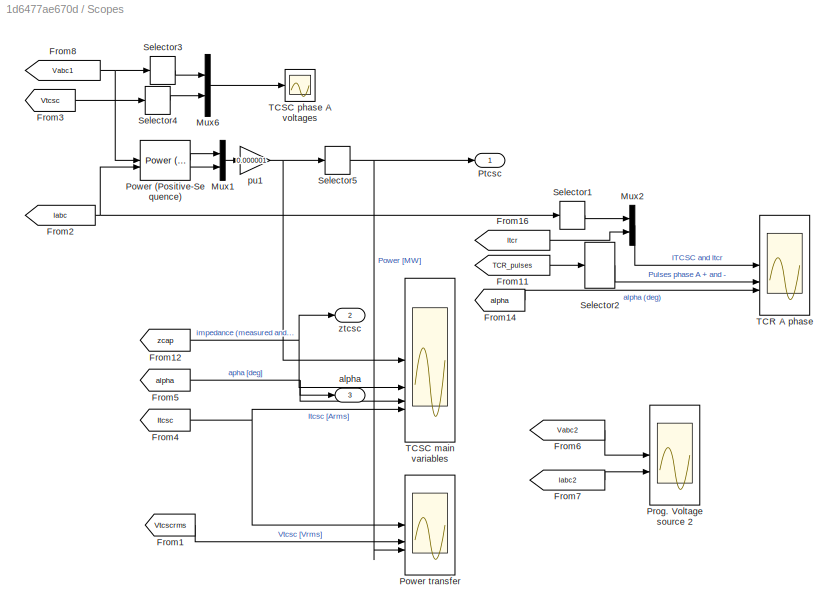
BLOCK [SubSystem] Scopes 
BLOCK [From] Scopes /From1
  CloseFcn = tagdialog Close
  GotoTag = Vtcscrms
  TagVisibility = global
BLOCK [From] Scopes /From11
  CloseFcn = tagdialog Close
  GotoTag = TCR_pulses
  TagVisibility = global
BLOCK [From] Scopes /From12
  CloseFcn = tagdialog Close
  GotoTag = zcap
  TagVisibility = global
BLOCK [From] Scopes /From14
  CloseFcn = tagdialog Close
  GotoTag = alpha
  TagVisibility = global
BLOCK [From] Scopes /From16
  CloseFcn = tagdialog Close
  GotoTag = Itcr
  TagVisibility = global
BLOCK [From] Scopes /From2
  CloseFcn = tagdialog Close
  GotoTag = Iabc
  TagVisibility = global
BLOCK [From] Scopes /From3
  CloseFcn = tagdialog Close
  GotoTag = Vtcsc
  TagVisibility = global
BLOCK [From] Scopes /From4
  CloseFcn = tagdialog Close
  GotoTag = Itcsc
  TagVisibility = global
BLOCK [From] Scopes /From5
  CloseFcn = tagdialog Close
  GotoTag = alpha
  TagVisibility = global
BLOCK [From] Scopes /From6
  CloseFcn = tagdialog Close
  GotoTag = Vabc2
  TagVisibility = global
BLOCK [From] Scopes /From7
  CloseFcn = tagdialog Close
  GotoTag = Iabc2
  TagVisibility = global
BLOCK [From] Scopes /From8
  CloseFcn = tagdialog Close
  GotoTag = Vabc1
  TagVisibility = global
BLOCK [Mux] Scopes /Mux1
  DisplayOption = bar
  Inputs = 2
BLOCK [Mux] Scopes /Mux2
  DisplayOption = bar
  Inputs = 2
BLOCK [Mux] Scopes /Mux6
  DisplayOption = bar
  Inputs = 2
BLOCK [Reference] Scopes /Power (Positive-Sequence)  REF=spsPowerPositiveSequenceLib/Power
(Positive-Sequence)
  SourceBlock = spsPowerPositiveSequenceLib/Power\n(Positive-Sequence)
  SourceType = Power (Positive-Sequence)
BLOCK [Scope] Scopes /Power transfer
  Floating = off
  NumInputPorts = 3
  ScopeSpecificationString = C++SS(StrPVP('Location','[188, 365, 512, 604]'),StrPVP('Open','off'),MxPVP('AxesTitles',54,'struct(''axes1'',''%<SignalLabel>'',''axes2'',''%<SignalLabel>'',''axes3'',''%<SignalLabel>'')'),StrPVP('ShowLegends','off'),StrPVP('LimitDataPoints','off'),StrPVP('DataFormat','Array'),StrPVP('Decimation','1'),StrPVP('BlockParamSampleInput','off'))
BLOCK [Scope] Scopes /Prog. Voltage source 2
  Floating = off
  NumInputPorts = 2
  ScopeSpecificationString = C++SS(StrPVP('Location','[188, 365, 512, 604]'),StrPVP('Open','off'),MxPVP('AxesTitles',54,'struct(''axes1'',''%<SignalLabel>'',''axes2'',''%<SignalLabel>'')'),StrPVP('ShowLegends','off'),StrPVP('LimitDataPoints','off'),StrPVP('DataFormat','Array'),StrPVP('Decimation','1'),StrPVP('BlockParamSampleInput','off'))
BLOCK [Outport] Scopes /Ptcsc
  VectorParamsAs1DForOutWhenUnconnected = off
BLOCK [Selector] Scopes /Selector1
  IndexOptions = Index vector (dialog)
  Indices = 1
  InputPortWidth = 3
  OutputSizes = 1
BLOCK [Selector] Scopes /Selector2
  IndexOptions = Index vector (dialog)
  Indices = [1 2]
  InputPortWidth = 6
  OutputSizes = 1
BLOCK [Selector] Scopes /Selector3
  IndexOptions = Index vector (dialog)
  Indices = 1
  InputPortWidth = 3
  OutputSizes = 1
BLOCK [Selector] Scopes /Selector4
  IndexOptions = Index vector (dialog)
  Indices = 1
  InputPortWidth = 3
  OutputSizes = 1
BLOCK [Selector] Scopes /Selector5
  IndexOptions = Index vector (dialog)
  Indices = 1
  InputPortWidth = 2
  OutputSizes = 1
BLOCK [Scope] Scopes /TCR A phase
  Floating = off
  NumInputPorts = 3
  ScopeSpecificationString = C++SS(StrPVP('Location','[188, 365, 512, 604]'),StrPVP('Open','off'),MxPVP('AxesTitles',54,'struct(''axes1'',''%<SignalLabel>'',''axes2'',''%<SignalLabel>'',''axes3'',''%<SignalLabel>'')'),StrPVP('ShowLegends','off'),StrPVP('LimitDataPoints','off'),StrPVP('DataFormat','Array'),StrPVP('Decimation','1'),StrPVP('BlockParamSampleInput','off'))
BLOCK [Scope] Scopes /TCSC main variables
  Floating = off
  NumInputPorts = 4
  ScopeSpecificationString = C++SS(StrPVP('Location','[188, 365, 512, 604]'),StrPVP('Open','off'),MxPVP('AxesTitles',54,'struct(''axes1'',''%<SignalLabel>'',''axes2'',''%<SignalLabel>'',''axes3'',''%<SignalLabel>'',''axes4'',''%<SignalLabel>'')'),StrPVP('ShowLegends','off'),StrPVP('LimitDataPoints','off'),StrPVP('DataFormat','Array'),StrPVP('Decimation','1'),StrPVP('BlockParamSampleInput','off'))
BLOCK [Scope] Scopes /TCSC phase A voltages
  Floating = off
  NumInputPorts = 1
  ScopeSpecificationString = C++SS(StrPVP('Location','[188, 365, 512, 604]'),StrPVP('Open','off'),MxPVP('AxesTitles',54,'struct(''axes1'',''%<SignalLabel>'')'),StrPVP('ShowLegends','off'),StrPVP('LimitDataPoints','off'),StrPVP('DataFormat','Array'),StrPVP('Decimation','1'),StrPVP('BlockParamSampleInput','off'))
BLOCK [Outport] Scopes /alpha
  Port = 3
  VectorParamsAs1DForOutWhenUnconnected = off
BLOCK [Gain] Scopes /pu1
  Gain = 0.000001
  OutDataTypeStr = Inherit: Same as input
  ParamDataTypeStr = Inherit: Same as input
  SaturateOnIntegerOverflow = on
BLOCK [Outport] Scopes /ztcsc
  Port = 2
  VectorParamsAs1DForOutWhenUnconnected = off
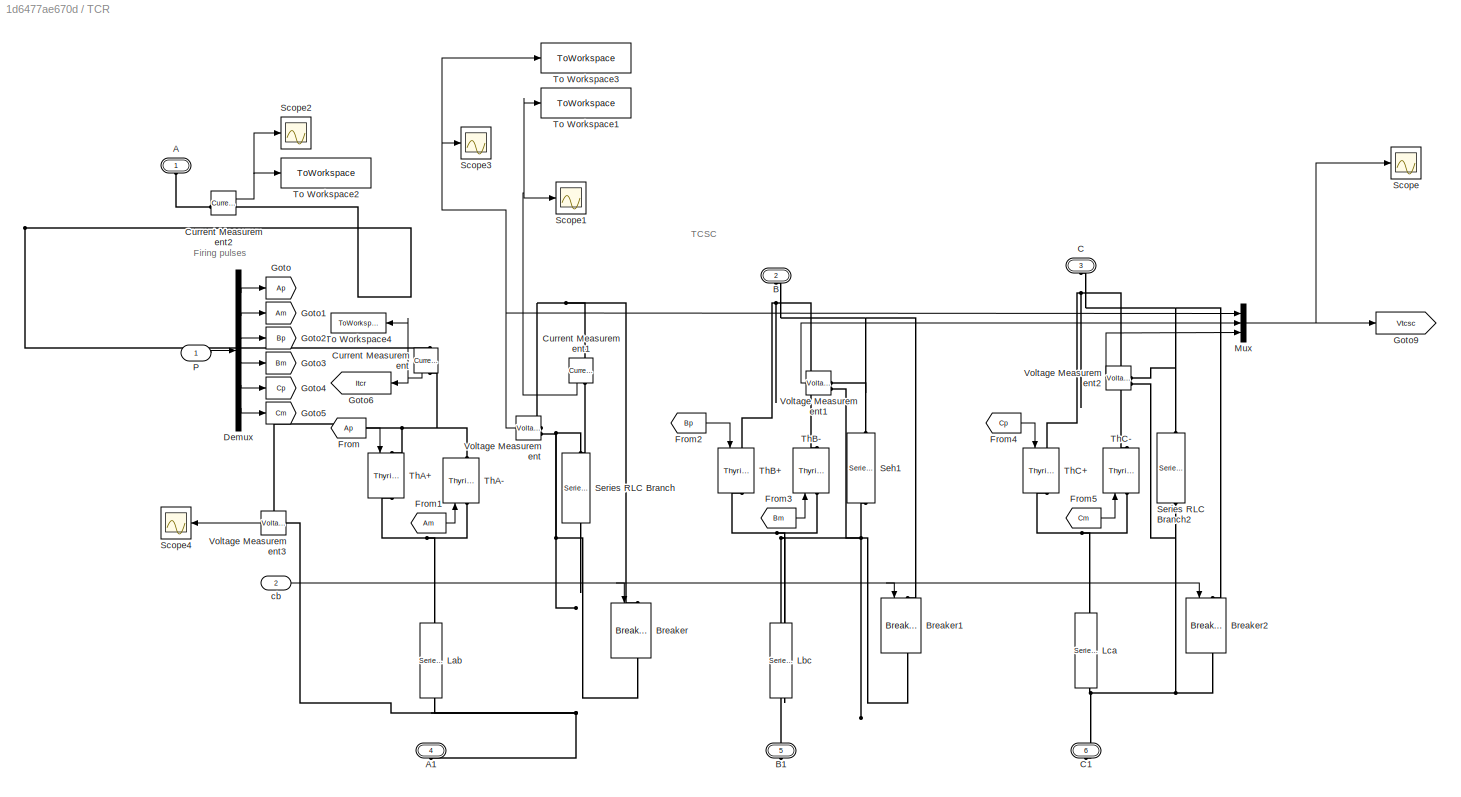
BLOCK [SubSystem] TCR
  LoadFcn = find_system(gcs,'FollowLinks', 'on', 'LookUnderMasks', 'all');
BLOCK [PMIOPort] TCR/A
  NameLocation = left
  Side = Left
BLOCK [PMIOPort] TCR/A1
  NameLocation = left
  Port = 4
  Side = Right
BLOCK [PMIOPort] TCR/B
  NameLocation = left
  Port = 2
  Side = Left
BLOCK [PMIOPort] TCR/B1
  NameLocation = left
  Port = 5
  Side = Right
BLOCK [Reference] TCR/Breaker  REF=spsBreakerLib/Breaker
  NameLocation = left
  SourceBlock = spsBreakerLib/Breaker
  SourceType = Breaker
BLOCK [Reference] TCR/Breaker1  REF=spsBreakerLib/Breaker
  NameLocation = left
  SourceBlock = spsBreakerLib/Breaker
  SourceType = Breaker
BLOCK [Reference] TCR/Breaker2  REF=spsBreakerLib/Breaker
  NameLocation = left
  SourceBlock = spsBreakerLib/Breaker
  SourceType = Breaker
BLOCK [PMIOPort] TCR/C
  NameLocation = left
  Port = 3
  Side = Left
BLOCK [PMIOPort] TCR/C1
  NameLocation = left
  Port = 6
  Side = Right
BLOCK [Reference] TCR/Current Measurement  REF=spsCurrentMeasurementLib/Current Measurement
  NameLocation = left
  SourceBlock = spsCurrentMeasurementLib/Current Measurement
  SourceType = Current Measurement
BLOCK [Reference] TCR/Current Measurement1  REF=spsCurrentMeasurementLib/Current Measurement
  LibrarySourceBlock = sps_lib/Sensors and Measurements/Current Measurement
  NameLocation = left
  SourceBlock = spsCurrentMeasurementLib/Current Measurement
  SourceType = Current Measurement
  UserDataPersistent = on
BLOCK [Reference] TCR/Current Measurement2  REF=spsCurrentMeasurementLib/Current Measurement
  LibrarySourceBlock = sps_lib/Sensors and Measurements/Current Measurement
  SourceBlock = spsCurrentMeasurementLib/Current Measurement
  SourceType = Current Measurement
  UserDataPersistent = on
BLOCK [Demux] TCR/Demux
  DisplayOption = none
  Outputs = 6
BLOCK [From] TCR/From
  CloseFcn = tagdialog Close
  GotoTag = Ap
BLOCK [From] TCR/From1
  CloseFcn = tagdialog Close
  GotoTag = Am
BLOCK [From] TCR/From2
  CloseFcn = tagdialog Close
  GotoTag = Bp
BLOCK [From] TCR/From3
  CloseFcn = tagdialog Close
  GotoTag = Bm
BLOCK [From] TCR/From4
  CloseFcn = tagdialog Close
  GotoTag = Cp
BLOCK [From] TCR/From5
  CloseFcn = tagdialog Close
  GotoTag = Cm
BLOCK [Goto] TCR/Goto
  GotoTag = Ap
BLOCK [Goto] TCR/Goto1
  GotoTag = Am
BLOCK [Goto] TCR/Goto2
  GotoTag = Bp
BLOCK [Goto] TCR/Goto3
  GotoTag = Bm
BLOCK [Goto] TCR/Goto4
  GotoTag = Cp
BLOCK [Goto] TCR/Goto5
  GotoTag = Cm
BLOCK [Goto] TCR/Goto6
  GotoTag = Itcr
  TagVisibility = global
BLOCK [Goto] TCR/Goto9
  GotoTag = Vtcsc
  NameLocation = top
  TagVisibility = global
BLOCK [Reference] TCR/Lab  REF=spsSeriesRLCBranchLib/Series RLC Branch
  AttributesFormatString = \n
  NameLocation = left
  SourceBlock = spsSeriesRLCBranchLib/Series RLC Branch
  SourceType = Series RLC Branch
BLOCK [Reference] TCR/Lbc  REF=spsSeriesRLCBranchLib/Series RLC Branch
  AttributesFormatString = \n
  NameLocation = left
  SourceBlock = spsSeriesRLCBranchLib/Series RLC Branch
  SourceType = Series RLC Branch
BLOCK [Reference] TCR/Lca  REF=spsSeriesRLCBranchLib/Series RLC Branch
  AttributesFormatString = \n
  NameLocation = left
  SourceBlock = spsSeriesRLCBranchLib/Series RLC Branch
  SourceType = Series RLC Branch
BLOCK [Mux] TCR/Mux
  DisplayOption = bar
  Inputs = 3
BLOCK [Inport] TCR/P
  PortDimensions = 6
BLOCK [Scope] TCR/Scope
  Floating = off
  NumInputPorts = 1
  ScopeSpecificationString = Simulink.scopes.TimeScopeBlockCfg('CurrentConfiguration', extmgr.ConfigurationSet(extmgr.Configuration('Core','General UI',true),extmgr.Configuration('Core','Source UI',true),extmgr.Configuration('Sources','WiredSimulink',true,'DataLoggingVariableName','ScopeData1'),extmgr.Configuration('Visuals','Time Domain',true,'SerializedDisplays',{struct('MinYLimReal','-329088.07797','MaxYLimReal','329082.66...<+1656ch>
BLOCK [Scope] TCR/Scope1
  Floating = off
  NumInputPorts = 1
  ScopeSpecificationString = Simulink.scopes.TimeScopeBlockCfg('CurrentConfiguration', extmgr.ConfigurationSet(extmgr.Configuration('Core','General UI',true),extmgr.Configuration('Core','Source UI',true),extmgr.Configuration('Sources','WiredSimulink',true,'DataLoggingVariableName','ScopeData2'),extmgr.Configuration('Visuals','Time Domain',true,'SerializedDisplays',{struct('MinYLimReal','-2108.00493','MaxYLimReal','-120.85128'...<+1774ch>
BLOCK [Scope] TCR/Scope2
  Floating = off
  NumInputPorts = 1
  ScopeSpecificationString = Simulink.scopes.TimeScopeBlockCfg('CurrentConfiguration', extmgr.ConfigurationSet(extmgr.Configuration('Core','General UI',true),extmgr.Configuration('Core','Source UI',true),extmgr.Configuration('Sources','WiredSimulink',true,'DataLoggingVariableName','ScopeData1'),extmgr.Configuration('Visuals','Time Domain',true,'SerializedDisplays',{struct('MinYLimReal','-777.2634','MaxYLimReal','1962.42193','...<+1559ch>
BLOCK [Scope] TCR/Scope3
  Floating = off
  NumInputPorts = 1
  ScopeSpecificationString = Simulink.scopes.TimeScopeBlockCfg('CurrentConfiguration', extmgr.ConfigurationSet(extmgr.Configuration('Core','General UI',true),extmgr.Configuration('Core','Source UI',true),extmgr.Configuration('Sources','WiredSimulink',true,'DataLoggingVariableName','ScopeData4'),extmgr.Configuration('Visuals','Time Domain',true,'SerializedDisplays',{struct('MinYLimReal','-328874.96344','MaxYLimReal','327164.63...<+1831ch>
BLOCK [Scope] TCR/Scope4
  Floating = off
  NameLocation = top
  NumInputPorts = 1
  ScopeSpecificationString = Simulink.scopes.TimeScopeBlockCfg('CurrentConfiguration', extmgr.ConfigurationSet(extmgr.Configuration('Core','General UI',true),extmgr.Configuration('Core','Source UI',true),extmgr.Configuration('Sources','WiredSimulink',true,'DataLoggingVariableName','ScopeData5'),extmgr.Configuration('Visuals','Time Domain',true,'SerializedDisplays',{struct('MinYLimReal','-327340.73864','MaxYLimReal','329053.37...<+1582ch>
BLOCK [Reference] TCR/Seh1  REF=spsSeriesRLCBranchLib/Series RLC Branch
  NameLocation = left
  SourceBlock = spsSeriesRLCBranchLib/Series RLC Branch
  SourceType = Series RLC Branch
BLOCK [Reference] TCR/Series RLC Branch  REF=spsSeriesRLCBranchLib/Series RLC Branch
  NameLocation = left
  SourceBlock = spsSeriesRLCBranchLib/Series RLC Branch
  SourceType = Series RLC Branch
BLOCK [Reference] TCR/Series RLC Branch2  REF=spsSeriesRLCBranchLib/Series RLC Branch
  NameLocation = left
  SourceBlock = spsSeriesRLCBranchLib/Series RLC Branch
  SourceType = Series RLC Branch
BLOCK [Reference] TCR/ThA+  REF=spsThyristorLib/Thyristor
  AttributesFormatString = \n
  NameLocation = left
  SourceBlock = spsThyristorLib/Thyristor
  SourceType = Thyristor
BLOCK [Reference] TCR/ThA-  REF=spsThyristorLib/Thyristor
  AttributesFormatString = \n
  NameLocation = left
  SourceBlock = spsThyristorLib/Thyristor
  SourceType = Thyristor
BLOCK [Reference] TCR/ThB+  REF=spsThyristorLib/Thyristor
  AttributesFormatString = \n
  NameLocation = left
  SourceBlock = spsThyristorLib/Thyristor
  SourceType = Thyristor
BLOCK [Reference] TCR/ThB-  REF=spsThyristorLib/Thyristor
  AttributesFormatString = \n
  NameLocation = left
  SourceBlock = spsThyristorLib/Thyristor
  SourceType = Thyristor
BLOCK [Reference] TCR/ThC+  REF=spsThyristorLib/Thyristor
  AttributesFormatString = \n
  NameLocation = left
  SourceBlock = spsThyristorLib/Thyristor
  SourceType = Thyristor
BLOCK [Reference] TCR/ThC-  REF=spsThyristorLib/Thyristor
  AttributesFormatString = \n
  NameLocation = left
  SourceBlock = spsThyristorLib/Thyristor
  SourceType = Thyristor
BLOCK [ToWorkspace] TCR/To Workspace1
  FixptAsFi = on
  MaxDataPoints = inf
  SampleTime = -1
  SaveFormat = Timeseries
  VariableName = I_cap
BLOCK [ToWorkspace] TCR/To Workspace2
  FixptAsFi = on
  MaxDataPoints = inf
  SampleTime = -1
  SaveFormat = Timeseries
  VariableName = I_klemm
BLOCK [ToWorkspace] TCR/To Workspace3
  FixptAsFi = on
  MaxDataPoints = inf
  SampleTime = -1
  SaveFormat = Timeseries
  VariableName = Utcsc
BLOCK [ToWorkspace] TCR/To Workspace4
  FixptAsFi = on
  MaxDataPoints = inf
  NameLocation = top
  SampleTime = -1
  SaveFormat = Timeseries
  VariableName = I_tcr
BLOCK [Reference] TCR/Voltage Measurement  REF=spsVoltageMeasurementLib/Voltage Measurement
  SourceBlock = spsVoltageMeasurementLib/Voltage Measurement
  SourceType = Voltage Measurement
BLOCK [Reference] TCR/Voltage Measurement1  REF=spsVoltageMeasurementLib/Voltage Measurement
  SourceBlock = spsVoltageMeasurementLib/Voltage Measurement
  SourceType = Voltage Measurement
BLOCK [Reference] TCR/Voltage Measurement2  REF=spsVoltageMeasurementLib/Voltage Measurement
  SourceBlock = spsVoltageMeasurementLib/Voltage Measurement
  SourceType = Voltage Measurement
BLOCK [Reference] TCR/Voltage Measurement3  REF=spsVoltageMeasurementLib/Voltage Measurement
  LibrarySourceBlock = sps_lib/Sensors and Measurements/Voltage Measurement
  NameLocation = top
  SourceBlock = spsVoltageMeasurementLib/Voltage Measurement
  SourceType = Voltage Measurement
  UserDataPersistent = on
BLOCK [Inport] TCR/cb
  Port = 2
  PortDimensions = 1
BLOCK [ToWorkspace] To Workspace1
  FixptAsFi = on
  MaxDataPoints = inf
  SampleTime = -1
  SaveFormat = Timeseries
  VariableName = P
BLOCK [ToWorkspace] To Workspace2
  FixptAsFi = on
  MaxDataPoints = inf
  SampleTime = -1
  SaveFormat = Timeseries
  VariableName = Ztcsc
BLOCK [ToWorkspace] To Workspace3
  FixptAsFi = on
  MaxDataPoints = inf
  SampleTime = -1
  SaveFormat = Timeseries
  VariableName = alpha
BLOCK [Scope] main variables
  Floating = off
  NumInputPorts = 3
  ScopeSpecificationString = Simulink.scopes.TimeScopeBlockCfg('CurrentConfiguration', extmgr.ConfigurationSet(extmgr.Configuration('Core','General UI',true,'FigureColor',[1 1 1]),extmgr.Configuration('Core','Source UI',true),extmgr.Configuration('Sources','WiredSimulink',true,'DataLoggingSaveFormat','Array','DataLoggingDecimation','1','DataLoggingDecimateData',true),extmgr.Configuration('Visuals','Time Domain',true,'Serializ...<+3724ch>
BLOCK [Reference] powergui  REF=spspowerguiLib/powergui
  Priority = 2
  SourceBlock = spspowerguiLib/powergui
  SourceType = PSB option menu block
BLOCK [Reference] zref  REF=spsStairGeneratorLib/Stair
Generator
  SourceBlock = spsStairGeneratorLib/Stair\nGenerator
  SourceType = Stair Generator
ANNOTATION (root): The TCSC can operate in capacitive or inductive mode, although the latter is rarely used in practice
ANNOTATION (root): The capacitive mode is achieved with firing angles 69-90deg
ANNOTATION (root): Dragan Jovcic University of Aberdeen, Scotland, UK
ANNOTATION (root): TCSC 75% compensation
ANNOTATION (root): Thyristor controlled series capacitor (TCSC)
ANNOTATION (root): impedance for capacitive mode 120<zref<136 impedance for inductive mode 19<zref<60
ANNOTATION (root): transmission line
ANNOTATION Control System: Dragan Jovcic University of Aberdeen, Scotland, UK
ANNOTATION Control System/Controller capacitive mode: gain scheduling
ANNOTATION Control System/Controller capacitive mode: lower limit to avoid resonance region
ANNOTATION Control System/Controller capacitive mode: zmeas
ANNOTATION Control System/Controller capacitive mode: zref
ANNOTATION Control System/Controller inductive mode: gain scheduling
ANNOTATION Control System/Controller inductive mode: upper limit to avoid resonnace region
ANNOTATION Control System/Controller inductive mode: zmeas
ANNOTATION Control System/Controller inductive mode: zref
ANNOTATION Control System/Impedance calculation: Prevents division with zero
ANNOTATION Control System/Impedance calculation: TCSC current
ANNOTATION Firing Unit: TCSC bypassed for first 0.5s
ANNOTATION Firing Unit/Firing Unit A phase: Compute number of samples per cycle
ANNOTATION Firing Unit/Firing Unit A phase: Generate firing pulse for TCR +
ANNOTATION Firing Unit/Firing Unit A phase: Generate firing pulse for TCR -
ANNOTATION Firing Unit/Firing Unit A phase: Generate square-wave synchronised with the line current. For positive (Sync +) and negative (Sync -) transition
ANNOTATION Firing Unit/Firing Unit A phase: Input curent
ANNOTATION Firing Unit/Firing Unit A phase: PLL sync on pos. peak of input
ANNOTATION Firing Unit/Firing Unit A phase/PLL sync on positive peak : Discrete 1-phase PLL
ANNOTATION Firing Unit/Firing Unit A phase/PLL sync on positive peak : Note: -sin( a ) * sin( b ) = 1/2 * cos( a+b ) - 1/2 * cos(a-b)
ANNOTATION Firing Unit/Firing Unit A phase/PLL sync on positive peak : Note: PLL synchronized on positive peak of input
ANNOTATION Firing Unit/Firing Unit A phase/PLL sync on positive peak : Pierre Giroux, Gilbert Sybille Power System Laboratory, IREQ Hydro-Quebec
ANNOTATION Firing Unit/Firing Unit A phase/PLL sync on positive peak /Discrete PI Controller: Discrete PID Controller
ANNOTATION Firing Unit/Firing Unit A phase/PLL sync on positive peak /Discrete PI Controller: Pierre Giroux, Gilbert Sybille Power System Simulation Laboratory IREQ, Hydro-Quebc
ANNOTATION Firing Unit/Firing Unit B phase: Compute number of samples per cycle
ANNOTATION Firing Unit/Firing Unit B phase: Generate firing pulse for TCR +
ANNOTATION Firing Unit/Firing Unit B phase: Generate firing pulse for TCR -
ANNOTATION Firing Unit/Firing Unit B phase: Generate square-wave synchronised with the line current. For positive (Sync +) and negative (Sync -) transition
ANNOTATION Firing Unit/Firing Unit B phase: Input curent
ANNOTATION Firing Unit/Firing Unit B phase: PLL sync on pos. peak of input
ANNOTATION Firing Unit/Firing Unit B phase/PLL sync on positive peak : Discrete 1-phase PLL
ANNOTATION Firing Unit/Firing Unit B phase/PLL sync on positive peak : Note: -sin( a ) * sin( b ) = 1/2 * cos( a+b ) - 1/2 * cos(a-b)
ANNOTATION Firing Unit/Firing Unit B phase/PLL sync on positive peak : Note: PLL synchronized on positive peak of input
ANNOTATION Firing Unit/Firing Unit B phase/PLL sync on positive peak : Pierre Giroux, Gilbert Sybille Power System Laboratory, IREQ Hydro-Quebec
ANNOTATION Firing Unit/Firing Unit B phase/PLL sync on positive peak /Discrete PI Controller: Discrete PID Controller
ANNOTATION Firing Unit/Firing Unit B phase/PLL sync on positive peak /Discrete PI Controller: Pierre Giroux, Gilbert Sybille Power System Simulation Laboratory IREQ, Hydro-Quebc
ANNOTATION Firing Unit/Firing Unit C phase: Compute number of samples per cycle
ANNOTATION Firing Unit/Firing Unit C phase: Generate firing pulse for TCR +
ANNOTATION Firing Unit/Firing Unit C phase: Generate firing pulse for TCR -
ANNOTATION Firing Unit/Firing Unit C phase: Generate square-wave synchronised with the line current. For positive (Sync +) and negative (Sync -) transition
ANNOTATION Firing Unit/Firing Unit C phase: Input curent
ANNOTATION Firing Unit/Firing Unit C phase: PLL sync on pos. peak of input
ANNOTATION Firing Unit/Firing Unit C phase/PLL sync on positive peak : Discrete 1-phase PLL
ANNOTATION Firing Unit/Firing Unit C phase/PLL sync on positive peak : Note: -sin( a ) * sin( b ) = 1/2 * cos( a+b ) - 1/2 * cos(a-b)
ANNOTATION Firing Unit/Firing Unit C phase/PLL sync on positive peak : Note: PLL synchronized on positive peak of input
ANNOTATION Firing Unit/Firing Unit C phase/PLL sync on positive peak : Pierre Giroux, Gilbert Sybille Power System Laboratory, IREQ Hydro-Quebec
ANNOTATION Firing Unit/Firing Unit C phase/PLL sync on positive peak /Discrete PI Controller: Discrete PID Controller
ANNOTATION Firing Unit/Firing Unit C phase/PLL sync on positive peak /Discrete PI Controller: Pierre Giroux, Gilbert Sybille Power System Simulation Laboratory IREQ, Hydro-Quebc
ANNOTATION Firing Unit/current p.u.: 180deg phase shift for synchronisation in inductive mode
ANNOTATION Firing Unit/current p.u.: p.u current
ANNOTATION TCR: Firing pulses
ANNOTATION TCR: TCSC
LINE Control System/Add1:1 -> Control System/Goto3:1
LINE Control System/Controller capacitive mode:1 -> Control System/Switch1:1
LINE Control System/Controller inductive mode:1 -> Control System/Switch1:3
LINE Control System/Iabc:1 -> Control System/Impedance calculation:2
LINE Control System/Impedance calculation/Add1:1 -> Control System/Impedance calculation/Divide1:1
LINE Control System/Impedance calculation/Add:1 -> Control System/Impedance calculation/Divide2:1
LINE Control System/Impedance calculation/Discrete Filter1:1 -> Control System/Impedance calculation/impedance:1
LINE Control System/Impedance calculation/Discrete Filter:1 -> Control System/Impedance calculation/Goto:1
NET Control System/Impedance calculation/Divide1:1 -> Control System/Impedance calculation/Divide:1, Control System/Impedance calculation/Goto1:1
NET Control System/Impedance calculation/Divide2:1 -> Control System/Impedance calculation/Discrete Filter:1, Control System/Impedance calculation/Irms:1, Control System/Impedance calculation/Saturation2:1
LINE Control System/Impedance calculation/Divide:1 -> Control System/Impedance calculation/Saturation1:1
NET Control System/Impedance calculation/Iabc:1 -> Control System/Impedance calculation/Selector1:1, Control System/Impedance calculation/Selector2:1, Control System/Impedance calculation/Selector8:1
LINE Control System/Impedance calculation/RMS1:1 -> Control System/Impedance calculation/Add:2
LINE Control System/Impedance calculation/RMS2:1 -> Control System/Impedance calculation/Add:3
LINE Control System/Impedance calculation/RMS3:1 -> Control System/Impedance calculation/Add1:1
LINE Control System/Impedance calculation/RMS4:1 -> Control System/Impedance calculation/Add1:2
LINE Control System/Impedance calculation/RMS5:1 -> Control System/Impedance calculation/Add1:3
LINE Control System/Impedance calculation/RMS:1 -> Control System/Impedance calculation/Add:1
LINE Control System/Impedance calculation/Saturation1:1 -> Control System/Impedance calculation/Discrete Filter1:1
LINE Control System/Impedance calculation/Saturation2:1 -> Control System/Impedance calculation/Divide:2
LINE Control System/Impedance calculation/Selector1:1 -> Control System/Impedance calculation/RMS1:1
LINE Control System/Impedance calculation/Selector2:1 -> Control System/Impedance calculation/RMS2:1
LINE Control System/Impedance calculation/Selector3:1 -> Control System/Impedance calculation/RMS4:1
LINE Control System/Impedance calculation/Selector4:1 -> Control System/Impedance calculation/RMS5:1
LINE Control System/Impedance calculation/Selector5:1 -> Control System/Impedance calculation/RMS3:1
LINE Control System/Impedance calculation/Selector8:1 -> Control System/Impedance calculation/RMS:1
NET Control System/Impedance calculation/Vtcsca:1 -> Control System/Impedance calculation/Selector3:1, Control System/Impedance calculation/Selector4:1, Control System/Impedance calculation/Selector5:1
LINE Control System/Impedance calculation/inductive1:1 -> Control System/Impedance calculation/Divide1:2
LINE Control System/Impedance calculation/inductive:1 -> Control System/Impedance calculation/Divide2:2
NET Control System/Impedance calculation:1 -> Control System/Controller capacitive mode:1, Control System/Controller inductive mode:1
LINE Control System/Impedance calculation:2 -> Control System/Irms:1
LINE Control System/Switch1:1 -> Control System/Switch2:3
NET Control System/Switch2:1 -> Control System/Goto1:1, Control System/alpha:1
LINE Control System/Vtcsc:1 -> Control System/Impedance calculation:1
LINE Control System/manual alpha/Filter/Add:1 -> Control System/manual alpha/Filter/Discrete-Time Integrator:1
NET Control System/manual alpha/Filter/Discrete-Time Integrator:1 -> Control System/manual alpha/Filter/Add:2, Control System/manual alpha/Filter/Out1:1
LINE Control System/manual alpha/Filter/In1:1 -> Control System/manual alpha/Filter/Add:1
LINE Control System/manual alpha/Filter1/Add:1 -> Control System/manual alpha/Filter1/Discrete-Time Integrator:1
NET Control System/manual alpha/Filter1/Discrete-Time Integrator:1 -> Control System/manual alpha/Filter1/Add:2, Control System/manual alpha/Filter1/Out1:1
LINE Control System/manual alpha/Filter1/In1:1 -> Control System/manual alpha/Filter1/Add:1
LINE Control System/manual alpha/Filter1:1 -> Control System/manual alpha/Saturation2:1
LINE Control System/manual alpha/Filter:1 -> Control System/manual alpha/Saturation:1
LINE Control System/manual alpha/Fom1:1 -> Control System/manual alpha/Switch2:2
LINE Control System/manual alpha/Fom2:1 -> Control System/manual alpha/Switch1:2
LINE Control System/manual alpha/Saturation2:1 -> Control System/manual alpha/Switch:3
LINE Control System/manual alpha/Saturation:1 -> Control System/manual alpha/Switch:1
LINE Control System/manual alpha/Switch1:1 -> Control System/manual alpha/Filter1:1
LINE Control System/manual alpha/Switch2:1 -> Control System/manual alpha/Filter:1
LINE Control System/manual alpha/Switch:1 -> Control System/manual alpha/alpha manual:1
LINE Control System/manual alpha/initial alpha 1:1 -> Control System/manual alpha/Switch1:1
LINE Control System/manual alpha/initial alpha:1 -> Control System/manual alpha/Switch2:1
NET Control System/manual alpha/manual alpha:1 -> Control System/manual alpha/Switch1:3, Control System/manual alpha/Switch2:3, Control System/manual alpha/Switch:2
LINE Control System/manual alpha:1 -> Control System/Switch2:1
NET Control System/operating mode:1 -> Control System/Add1:1, Control System/Goto2:1, Control System/Switch1:2, Control System/Switch2:2
LINE Control System/reference impedance1:1 -> Control System/Add1:2
NET Control System/zref:1 -> Control System/Controller capacitive mode:2, Control System/Controller inductive mode:2
LINE Control System:1 -> Firing Unit:2
LINE Control System:2 -> Firing Unit:3
NET Firing Unit/Alpha:1 -> Firing Unit/Firing Unit A phase:2, Firing Unit/Firing Unit B phase:2, Firing Unit/Firing Unit C phase:2, Firing Unit/current p.u.:2
LINE Firing Unit/Clock:1 -> Firing Unit/Switch1:2
LINE Firing Unit/Constant1:1 -> Firing Unit/Switch1:3
LINE Firing Unit/Constant4:1 -> Firing Unit/Switch1:1
LINE Firing Unit/Demux:1 -> Firing Unit/Firing Unit A phase:1
LINE Firing Unit/Demux:2 -> Firing Unit/Firing Unit B phase:1
LINE Firing Unit/Demux:3 -> Firing Unit/Firing Unit C phase:1
NET Firing Unit/Firing Unit A phase/Alpha:1 -> Firing Unit/Firing Unit A phase/TCR Pulse Generatorr1:2, Firing Unit/Firing Unit A phase/TCR Pulse Generatorr:2
LINE Firing Unit/Firing Unit A phase/BL2/Constant1:1 -> Firing Unit/Firing Unit A phase/BL2/Relational Operator1:2
LINE Firing Unit/Firing Unit A phase/BL2/Constant2:1 -> Firing Unit/Firing Unit A phase/BL2/Switch:3
LINE Firing Unit/Firing Unit A phase/BL2/Constant3:1 -> Firing Unit/Firing Unit A phase/BL2/Product:2
LINE Firing Unit/Firing Unit A phase/BL2/Freq:1 -> Firing Unit/Firing Unit A phase/BL2/Gain:1
NET Firing Unit/Firing Unit A phase/BL2/Gain:1 -> Firing Unit/Firing Unit A phase/BL2/Relational Operator1:1, Firing Unit/Firing Unit A phase/BL2/Switch:1
LINE Firing Unit/Firing Unit A phase/BL2/Product:1 -> Firing Unit/Firing Unit A phase/BL2/Ns//c:1
LINE Firing Unit/Firing Unit A phase/BL2/Relational Operator1:1 -> Firing Unit/Firing Unit A phase/BL2/Switch:2
LINE Firing Unit/Firing Unit A phase/BL2/Switch:1 -> Firing Unit/Firing Unit A phase/BL2/Product:1
NET Firing Unit/Firing Unit A phase/BL2:1 -> Firing Unit/Firing Unit A phase/TCR Pulse Generatorr1:1, Firing Unit/Firing Unit A phase/TCR Pulse Generatorr:1
LINE Firing Unit/Firing Unit A phase/BL3/Bistable:1 -> Firing Unit/Firing Unit A phase/BL3/Data Type Conversion:1
LINE Firing Unit/Firing Unit A phase/BL3/Bistable:2 -> Firing Unit/Firing Unit A phase/BL3/Terminator:1
NET Firing Unit/Firing Unit A phase/BL3/Data Type Conversion:1 -> Firing Unit/Firing Unit A phase/BL3/Edge Detector1:1, Firing Unit/Firing Unit A phase/BL3/Edge Detector:1, Firing Unit/Firing Unit A phase/BL3/SqWave:1
LINE Firing Unit/Firing Unit A phase/BL3/Edge Detector1:1 -> Firing Unit/Firing Unit A phase/BL3/Sync -:1
LINE Firing Unit/Firing Unit A phase/BL3/Edge Detector2:1 -> Firing Unit/Firing Unit A phase/BL3/Bistable:1
LINE Firing Unit/Firing Unit A phase/BL3/Edge Detector3:1 -> Firing Unit/Firing Unit A phase/BL3/Bistable:2
LINE Firing Unit/Firing Unit A phase/BL3/Edge Detector:1 -> Firing Unit/Firing Unit A phase/BL3/Sync +:1
LINE Firing Unit/Firing Unit A phase/BL3/Freq:1 -> Firing Unit/Firing Unit A phase/BL3/Product2:2
LINE Firing Unit/Firing Unit A phase/BL3/Product2:1 -> Firing Unit/Firing Unit A phase/BL3/Trigonometric Function7:1
LINE Firing Unit/Firing Unit A phase/BL3/Relational Operator2:1 -> Firing Unit/Firing Unit A phase/BL3/Edge Detector3:1
LINE Firing Unit/Firing Unit A phase/BL3/Relational Operator:1 -> Firing Unit/Firing Unit A phase/BL3/Edge Detector2:1
LINE Firing Unit/Firing Unit A phase/BL3/Sum5:1 -> Firing Unit/Firing Unit A phase/BL3/Relational Operator:2
LINE Firing Unit/Firing Unit A phase/BL3/Sum6:1 -> Firing Unit/Firing Unit A phase/BL3/Relational Operator2:2
NET Firing Unit/Firing Unit A phase/BL3/Trigonometric Function7:1 -> Firing Unit/Firing Unit A phase/BL3/Sum5:2, Firing Unit/Firing Unit A phase/BL3/Sum6:2
NET Firing Unit/Firing Unit A phase/BL3/alpha2:1 -> Firing Unit/Firing Unit A phase/BL3/Sum5:1, Firing Unit/Firing Unit A phase/BL3/Sum6:1
LINE Firing Unit/Firing Unit A phase/BL3/alpha9:1 -> Firing Unit/Firing Unit A phase/BL3/Product2:1
NET Firing Unit/Firing Unit A phase/BL3/sin(wt):1 -> Firing Unit/Firing Unit A phase/BL3/Relational Operator2:1, Firing Unit/Firing Unit A phase/BL3/Relational Operator:1
NET Firing Unit/Firing Unit A phase/BL3:1 -> Firing Unit/Firing Unit A phase/Logical Operator2:1, Firing Unit/Firing Unit A phase/TCR Pulse Generatorr:4
LINE Firing Unit/Firing Unit A phase/BL3:2 -> Firing Unit/Firing Unit A phase/TCR Pulse Generatorr:3
LINE Firing Unit/Firing Unit A phase/BL3:3 -> Firing Unit/Firing Unit A phase/TCR Pulse Generatorr1:3
LINE Firing Unit/Firing Unit A phase/Correction for delay:1 -> Firing Unit/Firing Unit A phase/Sum:1
LINE Firing Unit/Firing Unit A phase/Iabc:1 -> Firing Unit/Firing Unit A phase/PLL sync on positive peak :1
LINE Firing Unit/Firing Unit A phase/Logical Operator2:1 -> Firing Unit/Firing Unit A phase/TCR Pulse Generatorr1:4
LINE Firing Unit/Firing Unit A phase/PLL sync on positive peak /Constant4:1 -> Firing Unit/Firing Unit A phase/PLL sync on positive peak /Math Function:2
NET Firing Unit/Firing Unit A phase/PLL sync on positive peak /Discrete PI Controller:1 -> Firing Unit/Firing Unit A phase/PLL sync on positive peak /Discrete-Time Integrator:1, Firing Unit/Firing Unit A phase/PLL sync on positive peak /Gain10:1
LINE Firing Unit/Firing Unit A phase/PLL sync on positive peak /Discrete-Time Integrator:1 -> Firing Unit/Firing Unit A phase/PLL sync on positive peak /Math Function:1
LINE Firing Unit/Firing Unit A phase/PLL sync on positive peak /Gain10:1 -> Firing Unit/Firing Unit A phase/PLL sync on positive peak /Rate Limiter:1
LINE Firing Unit/Firing Unit A phase/PLL sync on positive peak /Gain12:1 -> Firing Unit/Firing Unit A phase/PLL sync on positive peak /Product1:1
NET Firing Unit/Firing Unit A phase/PLL sync on positive peak /Math Function:1 -> Firing Unit/Firing Unit A phase/PLL sync on positive peak /Trigonometric Function6:1, Firing Unit/Firing Unit A phase/PLL sync on positive peak /wt:1
LINE Firing Unit/Firing Unit A phase/PLL sync on positive peak /Mean (Variable Frequency)1:1 -> Firing Unit/Firing Unit A phase/PLL sync on positive peak /Discrete PI Controller:1
LINE Firing Unit/Firing Unit A phase/PLL sync on positive peak /Product1:1 -> Firing Unit/Firing Unit A phase/PLL sync on positive peak /Mean (Variable Frequency)1:2
LINE Firing Unit/Firing Unit A phase/PLL sync on positive peak /Rate Limiter:1 -> Firing Unit/Firing Unit A phase/PLL sync on positive peak /Second-Order Filter:1
LINE Firing Unit/Firing Unit A phase/PLL sync on positive peak /Second-Order Filter:1 -> Firing Unit/Firing Unit A phase/PLL sync on positive peak /Unit Delay1:1
LINE Firing Unit/Firing Unit A phase/PLL sync on positive peak /Trigonometric Function6:1 -> Firing Unit/Firing Unit A phase/PLL sync on positive peak /Product1:2
NET Firing Unit/Firing Unit A phase/PLL sync on positive peak /Unit Delay1:1 -> Firing Unit/Firing Unit A phase/PLL sync on positive peak /Freq:1, Firing Unit/Firing Unit A phase/PLL sync on positive peak /Mean (Variable Frequency)1:1
LINE Firing Unit/Firing Unit A phase/PLL sync on positive peak /V(pu):1 -> Firing Unit/Firing Unit A phase/PLL sync on positive peak /Gain12:1
NET Firing Unit/Firing Unit A phase/PLL sync on positive peak :1 -> Firing Unit/Firing Unit A phase/BL2:1, Firing Unit/Firing Unit A phase/BL3:1, Firing Unit/Firing Unit A phase/Correction for delay:1
LINE Firing Unit/Firing Unit A phase/PLL sync on positive peak :2 -> Firing Unit/Firing Unit A phase/Sum:2
LINE Firing Unit/Firing Unit A phase/Sum:1 -> Firing Unit/Firing Unit A phase/Trigonometric Function6:1
LINE Firing Unit/Firing Unit A phase/TCR Pulse Generatorr/Alpha 90<A<181:1 -> Firing Unit/Firing Unit A phase/TCR Pulse Generatorr/Sum1:2
LINE Firing Unit/Firing Unit A phase/TCR Pulse Generatorr/Alpha 90<A<182:1 -> Firing Unit/Firing Unit A phase/TCR Pulse Generatorr/Product:2
LINE Firing Unit/Firing Unit A phase/TCR Pulse Generatorr/Alpha 90<A<183:1 -> Firing Unit/Firing Unit A phase/TCR Pulse Generatorr/Product2:2
LINE Firing Unit/Firing Unit A phase/TCR Pulse Generatorr/Alpha 90<A<184:1 -> Firing Unit/Firing Unit A phase/TCR Pulse Generatorr/Sum2:2
LINE Firing Unit/Firing Unit A phase/TCR Pulse Generatorr/Alpha 90<A<185:1 -> Firing Unit/Firing Unit A phase/TCR Pulse Generatorr/Relational Operator1:2
LINE Firing Unit/Firing Unit A phase/TCR Pulse Generatorr/Alpha:1 -> Firing Unit/Firing Unit A phase/TCR Pulse Generatorr/Sample and Hold:1
NET Firing Unit/Firing Unit A phase/TCR Pulse Generatorr/Discrete-Time Integrator:1 -> Firing Unit/Firing Unit A phase/TCR Pulse Generatorr/Relational Operator2:1, Firing Unit/Firing Unit A phase/TCR Pulse Generatorr/Relational Operator3:1
LINE Firing Unit/Firing Unit A phase/TCR Pulse Generatorr/Gain2:1 -> Firing Unit/Firing Unit A phase/TCR Pulse Generatorr/Discrete-Time Integrator:1
LINE Firing Unit/Firing Unit A phase/TCR Pulse Generatorr/Logical Operator1:1 -> Firing Unit/Firing Unit A phase/TCR Pulse Generatorr/TCR +//-:1
LINE Firing Unit/Firing Unit A phase/TCR Pulse Generatorr/Logical Operator2:1 -> Firing Unit/Firing Unit A phase/TCR Pulse Generatorr/Discrete-Time Integrator:2
NET Firing Unit/Firing Unit A phase/TCR Pulse Generatorr/Ns//c:1 -> Firing Unit/Firing Unit A phase/TCR Pulse Generatorr/Product1:1, Firing Unit/Firing Unit A phase/TCR Pulse Generatorr/Product2:1
LINE Firing Unit/Firing Unit A phase/TCR Pulse Generatorr/Product1:1 -> Firing Unit/Firing Unit A phase/TCR Pulse Generatorr/Rounding Function1:1
LINE Firing Unit/Firing Unit A phase/TCR Pulse Generatorr/Product2:1 -> Firing Unit/Firing Unit A phase/TCR Pulse Generatorr/Rounding Function3:1
LINE Firing Unit/Firing Unit A phase/TCR Pulse Generatorr/Product:1 -> Firing Unit/Firing Unit A phase/TCR Pulse Generatorr/Product1:2
LINE Firing Unit/Firing Unit A phase/TCR Pulse Generatorr/Relational Operator1:1 -> Firing Unit/Firing Unit A phase/TCR Pulse Generatorr/Switch:2
LINE Firing Unit/Firing Unit A phase/TCR Pulse Generatorr/Relational Operator2:1 -> Firing Unit/Firing Unit A phase/TCR Pulse Generatorr/Logical Operator1:2
LINE Firing Unit/Firing Unit A phase/TCR Pulse Generatorr/Relational Operator3:1 -> Firing Unit/Firing Unit A phase/TCR Pulse Generatorr/Logical Operator1:3
NET Firing Unit/Firing Unit A phase/TCR Pulse Generatorr/Rounding Function1:1 -> Firing Unit/Firing Unit A phase/TCR Pulse Generatorr/Sum2:3, Firing Unit/Firing Unit A phase/TCR Pulse Generatorr/Switch:1
NET Firing Unit/Firing Unit A phase/TCR Pulse Generatorr/Rounding Function3:1 -> Firing Unit/Firing Unit A phase/TCR Pulse Generatorr/Sum2:1, Firing Unit/Firing Unit A phase/TCR Pulse Generatorr/Switch:3
LINE Firing Unit/Firing Unit A phase/TCR Pulse Generatorr/Sample and Hold:1 -> Firing Unit/Firing Unit A phase/TCR Pulse Generatorr/Sum1:1
NET Firing Unit/Firing Unit A phase/TCR Pulse Generatorr/SqWave:1 -> Firing Unit/Firing Unit A phase/TCR Pulse Generatorr/Gain2:1, Firing Unit/Firing Unit A phase/TCR Pulse Generatorr/Logical Operator1:1, Firing Unit/Firing Unit A phase/TCR Pulse Generatorr/Logical Operator2:1
NET Firing Unit/Firing Unit A phase/TCR Pulse Generatorr/Sum1:1 -> Firing Unit/Firing Unit A phase/TCR Pulse Generatorr/Product:1, Firing Unit/Firing Unit A phase/TCR Pulse Generatorr/Relational Operator1:1
LINE Firing Unit/Firing Unit A phase/TCR Pulse Generatorr/Sum2:1 -> Firing Unit/Firing Unit A phase/TCR Pulse Generatorr/Relational Operator3:2
LINE Firing Unit/Firing Unit A phase/TCR Pulse Generatorr/Switch:1 -> Firing Unit/Firing Unit A phase/TCR Pulse Generatorr/Relational Operator2:2
LINE Firing Unit/Firing Unit A phase/TCR Pulse Generatorr/Sync +//-:1 -> Firing Unit/Firing Unit A phase/TCR Pulse Generatorr/Sample and Hold:2
LINE Firing Unit/Firing Unit A phase/TCR Pulse Generatorr1/Alpha 90<A<181:1 -> Firing Unit/Firing Unit A phase/TCR Pulse Generatorr1/Sum1:2
LINE Firing Unit/Firing Unit A phase/TCR Pulse Generatorr1/Alpha 90<A<182:1 -> Firing Unit/Firing Unit A phase/TCR Pulse Generatorr1/Product:2
LINE Firing Unit/Firing Unit A phase/TCR Pulse Generatorr1/Alpha 90<A<183:1 -> Firing Unit/Firing Unit A phase/TCR Pulse Generatorr1/Product2:2
LINE Firing Unit/Firing Unit A phase/TCR Pulse Generatorr1/Alpha 90<A<184:1 -> Firing Unit/Firing Unit A phase/TCR Pulse Generatorr1/Sum2:2
LINE Firing Unit/Firing Unit A phase/TCR Pulse Generatorr1/Alpha 90<A<185:1 -> Firing Unit/Firing Unit A phase/TCR Pulse Generatorr1/Relational Operator1:2
LINE Firing Unit/Firing Unit A phase/TCR Pulse Generatorr1/Alpha:1 -> Firing Unit/Firing Unit A phase/TCR Pulse Generatorr1/Sample and Hold:1
NET Firing Unit/Firing Unit A phase/TCR Pulse Generatorr1/Discrete-Time Integrator:1 -> Firing Unit/Firing Unit A phase/TCR Pulse Generatorr1/Relational Operator2:1, Firing Unit/Firing Unit A phase/TCR Pulse Generatorr1/Relational Operator3:1
LINE Firing Unit/Firing Unit A phase/TCR Pulse Generatorr1/Gain2:1 -> Firing Unit/Firing Unit A phase/TCR Pulse Generatorr1/Discrete-Time Integrator:1
LINE Firing Unit/Firing Unit A phase/TCR Pulse Generatorr1/Logical Operator1:1 -> Firing Unit/Firing Unit A phase/TCR Pulse Generatorr1/TCR +//-:1
LINE Firing Unit/Firing Unit A phase/TCR Pulse Generatorr1/Logical Operator2:1 -> Firing Unit/Firing Unit A phase/TCR Pulse Generatorr1/Discrete-Time Integrator:2
NET Firing Unit/Firing Unit A phase/TCR Pulse Generatorr1/Ns//c:1 -> Firing Unit/Firing Unit A phase/TCR Pulse Generatorr1/Product1:1, Firing Unit/Firing Unit A phase/TCR Pulse Generatorr1/Product2:1
LINE Firing Unit/Firing Unit A phase/TCR Pulse Generatorr1/Product1:1 -> Firing Unit/Firing Unit A phase/TCR Pulse Generatorr1/Rounding Function1:1
LINE Firing Unit/Firing Unit A phase/TCR Pulse Generatorr1/Product2:1 -> Firing Unit/Firing Unit A phase/TCR Pulse Generatorr1/Rounding Function3:1
LINE Firing Unit/Firing Unit A phase/TCR Pulse Generatorr1/Product:1 -> Firing Unit/Firing Unit A phase/TCR Pulse Generatorr1/Product1:2
LINE Firing Unit/Firing Unit A phase/TCR Pulse Generatorr1/Relational Operator1:1 -> Firing Unit/Firing Unit A phase/TCR Pulse Generatorr1/Switch:2
LINE Firing Unit/Firing Unit A phase/TCR Pulse Generatorr1/Relational Operator2:1 -> Firing Unit/Firing Unit A phase/TCR Pulse Generatorr1/Logical Operator1:2
LINE Firing Unit/Firing Unit A phase/TCR Pulse Generatorr1/Relational Operator3:1 -> Firing Unit/Firing Unit A phase/TCR Pulse Generatorr1/Logical Operator1:3
NET Firing Unit/Firing Unit A phase/TCR Pulse Generatorr1/Rounding Function1:1 -> Firing Unit/Firing Unit A phase/TCR Pulse Generatorr1/Sum2:3, Firing Unit/Firing Unit A phase/TCR Pulse Generatorr1/Switch:1
NET Firing Unit/Firing Unit A phase/TCR Pulse Generatorr1/Rounding Function3:1 -> Firing Unit/Firing Unit A phase/TCR Pulse Generatorr1/Sum2:1, Firing Unit/Firing Unit A phase/TCR Pulse Generatorr1/Switch:3
LINE Firing Unit/Firing Unit A phase/TCR Pulse Generatorr1/Sample and Hold:1 -> Firing Unit/Firing Unit A phase/TCR Pulse Generatorr1/Sum1:1
NET Firing Unit/Firing Unit A phase/TCR Pulse Generatorr1/SqWave:1 -> Firing Unit/Firing Unit A phase/TCR Pulse Generatorr1/Gain2:1, Firing Unit/Firing Unit A phase/TCR Pulse Generatorr1/Logical Operator1:1, Firing Unit/Firing Unit A phase/TCR Pulse Generatorr1/Logical Operator2:1
NET Firing Unit/Firing Unit A phase/TCR Pulse Generatorr1/Sum1:1 -> Firing Unit/Firing Unit A phase/TCR Pulse Generatorr1/Product:1, Firing Unit/Firing Unit A phase/TCR Pulse Generatorr1/Relational Operator1:1
LINE Firing Unit/Firing Unit A phase/TCR Pulse Generatorr1/Sum2:1 -> Firing Unit/Firing Unit A phase/TCR Pulse Generatorr1/Relational Operator3:2
LINE Firing Unit/Firing Unit A phase/TCR Pulse Generatorr1/Switch:1 -> Firing Unit/Firing Unit A phase/TCR Pulse Generatorr1/Relational Operator2:2
LINE Firing Unit/Firing Unit A phase/TCR Pulse Generatorr1/Sync +//-:1 -> Firing Unit/Firing Unit A phase/TCR Pulse Generatorr1/Sample and Hold:2
LINE Firing Unit/Firing Unit A phase/TCR Pulse Generatorr1:1 -> Firing Unit/Firing Unit A phase/TCR -:1
LINE Firing Unit/Firing Unit A phase/TCR Pulse Generatorr:1 -> Firing Unit/Firing Unit A phase/TCR +:1
LINE Firing Unit/Firing Unit A phase/Trigonometric Function6:1 -> Firing Unit/Firing Unit A phase/BL3:2
LINE Firing Unit/Firing Unit A phase:1 -> Firing Unit/Mux:1
LINE Firing Unit/Firing Unit A phase:2 -> Firing Unit/Mux:2
NET Firing Unit/Firing Unit B phase/Alpha:1 -> Firing Unit/Firing Unit B phase/TCR Pulse Generatorr1:2, Firing Unit/Firing Unit B phase/TCR Pulse Generatorr:2
LINE Firing Unit/Firing Unit B phase/BL2/Constant1:1 -> Firing Unit/Firing Unit B phase/BL2/Relational Operator1:2
LINE Firing Unit/Firing Unit B phase/BL2/Constant2:1 -> Firing Unit/Firing Unit B phase/BL2/Switch:3
LINE Firing Unit/Firing Unit B phase/BL2/Constant3:1 -> Firing Unit/Firing Unit B phase/BL2/Product:2
LINE Firing Unit/Firing Unit B phase/BL2/Freq:1 -> Firing Unit/Firing Unit B phase/BL2/Gain:1
NET Firing Unit/Firing Unit B phase/BL2/Gain:1 -> Firing Unit/Firing Unit B phase/BL2/Relational Operator1:1, Firing Unit/Firing Unit B phase/BL2/Switch:1
LINE Firing Unit/Firing Unit B phase/BL2/Product:1 -> Firing Unit/Firing Unit B phase/BL2/Ns//c:1
LINE Firing Unit/Firing Unit B phase/BL2/Relational Operator1:1 -> Firing Unit/Firing Unit B phase/BL2/Switch:2
LINE Firing Unit/Firing Unit B phase/BL2/Switch:1 -> Firing Unit/Firing Unit B phase/BL2/Product:1
NET Firing Unit/Firing Unit B phase/BL2:1 -> Firing Unit/Firing Unit B phase/TCR Pulse Generatorr1:1, Firing Unit/Firing Unit B phase/TCR Pulse Generatorr:1
LINE Firing Unit/Firing Unit B phase/BL3/Bistable:1 -> Firing Unit/Firing Unit B phase/BL3/Data Type Conversion:1
LINE Firing Unit/Firing Unit B phase/BL3/Bistable:2 -> Firing Unit/Firing Unit B phase/BL3/Terminator:1
NET Firing Unit/Firing Unit B phase/BL3/Data Type Conversion:1 -> Firing Unit/Firing Unit B phase/BL3/Edge Detector1:1, Firing Unit/Firing Unit B phase/BL3/Edge Detector:1, Firing Unit/Firing Unit B phase/BL3/SqWave:1
LINE Firing Unit/Firing Unit B phase/BL3/Edge Detector1:1 -> Firing Unit/Firing Unit B phase/BL3/Sync -:1
LINE Firing Unit/Firing Unit B phase/BL3/Edge Detector2:1 -> Firing Unit/Firing Unit B phase/BL3/Bistable:1
LINE Firing Unit/Firing Unit B phase/BL3/Edge Detector3:1 -> Firing Unit/Firing Unit B phase/BL3/Bistable:2
LINE Firing Unit/Firing Unit B phase/BL3/Edge Detector:1 -> Firing Unit/Firing Unit B phase/BL3/Sync +:1
LINE Firing Unit/Firing Unit B phase/BL3/Freq:1 -> Firing Unit/Firing Unit B phase/BL3/Product2:2
LINE Firing Unit/Firing Unit B phase/BL3/Product2:1 -> Firing Unit/Firing Unit B phase/BL3/Trigonometric Function7:1
LINE Firing Unit/Firing Unit B phase/BL3/Relational Operator2:1 -> Firing Unit/Firing Unit B phase/BL3/Edge Detector3:1
LINE Firing Unit/Firing Unit B phase/BL3/Relational Operator:1 -> Firing Unit/Firing Unit B phase/BL3/Edge Detector2:1
LINE Firing Unit/Firing Unit B phase/BL3/Sum5:1 -> Firing Unit/Firing Unit B phase/BL3/Relational Operator:2
LINE Firing Unit/Firing Unit B phase/BL3/Sum6:1 -> Firing Unit/Firing Unit B phase/BL3/Relational Operator2:2
NET Firing Unit/Firing Unit B phase/BL3/Trigonometric Function7:1 -> Firing Unit/Firing Unit B phase/BL3/Sum5:2, Firing Unit/Firing Unit B phase/BL3/Sum6:2
NET Firing Unit/Firing Unit B phase/BL3/alpha2:1 -> Firing Unit/Firing Unit B phase/BL3/Sum5:1, Firing Unit/Firing Unit B phase/BL3/Sum6:1
LINE Firing Unit/Firing Unit B phase/BL3/alpha9:1 -> Firing Unit/Firing Unit B phase/BL3/Product2:1
NET Firing Unit/Firing Unit B phase/BL3/sin(wt):1 -> Firing Unit/Firing Unit B phase/BL3/Relational Operator2:1, Firing Unit/Firing Unit B phase/BL3/Relational Operator:1
NET Firing Unit/Firing Unit B phase/BL3:1 -> Firing Unit/Firing Unit B phase/Logical Operator2:1, Firing Unit/Firing Unit B phase/TCR Pulse Generatorr:4
LINE Firing Unit/Firing Unit B phase/BL3:2 -> Firing Unit/Firing Unit B phase/TCR Pulse Generatorr:3
LINE Firing Unit/Firing Unit B phase/BL3:3 -> Firing Unit/Firing Unit B phase/TCR Pulse Generatorr1:3
LINE Firing Unit/Firing Unit B phase/Correction for delay:1 -> Firing Unit/Firing Unit B phase/Sum:1
LINE Firing Unit/Firing Unit B phase/Iabc:1 -> Firing Unit/Firing Unit B phase/PLL sync on positive peak :1
LINE Firing Unit/Firing Unit B phase/Logical Operator2:1 -> Firing Unit/Firing Unit B phase/TCR Pulse Generatorr1:4
LINE Firing Unit/Firing Unit B phase/PLL sync on positive peak /Constant4:1 -> Firing Unit/Firing Unit B phase/PLL sync on positive peak /Math Function:2
NET Firing Unit/Firing Unit B phase/PLL sync on positive peak /Discrete PI Controller:1 -> Firing Unit/Firing Unit B phase/PLL sync on positive peak /Discrete-Time Integrator:1, Firing Unit/Firing Unit B phase/PLL sync on positive peak /Gain10:1
LINE Firing Unit/Firing Unit B phase/PLL sync on positive peak /Discrete-Time Integrator:1 -> Firing Unit/Firing Unit B phase/PLL sync on positive peak /Math Function:1
LINE Firing Unit/Firing Unit B phase/PLL sync on positive peak /Gain10:1 -> Firing Unit/Firing Unit B phase/PLL sync on positive peak /Rate Limiter:1
LINE Firing Unit/Firing Unit B phase/PLL sync on positive peak /Gain12:1 -> Firing Unit/Firing Unit B phase/PLL sync on positive peak /Product1:1
NET Firing Unit/Firing Unit B phase/PLL sync on positive peak /Math Function:1 -> Firing Unit/Firing Unit B phase/PLL sync on positive peak /Trigonometric Function6:1, Firing Unit/Firing Unit B phase/PLL sync on positive peak /wt:1
LINE Firing Unit/Firing Unit B phase/PLL sync on positive peak /Mean (Variable Frequency)1:1 -> Firing Unit/Firing Unit B phase/PLL sync on positive peak /Discrete PI Controller:1
LINE Firing Unit/Firing Unit B phase/PLL sync on positive peak /Product1:1 -> Firing Unit/Firing Unit B phase/PLL sync on positive peak /Mean (Variable Frequency)1:2
LINE Firing Unit/Firing Unit B phase/PLL sync on positive peak /Rate Limiter:1 -> Firing Unit/Firing Unit B phase/PLL sync on positive peak /Second-Order Filter:1
LINE Firing Unit/Firing Unit B phase/PLL sync on positive peak /Second-Order Filter:1 -> Firing Unit/Firing Unit B phase/PLL sync on positive peak /Unit Delay1:1
LINE Firing Unit/Firing Unit B phase/PLL sync on positive peak /Trigonometric Function6:1 -> Firing Unit/Firing Unit B phase/PLL sync on positive peak /Product1:2
NET Firing Unit/Firing Unit B phase/PLL sync on positive peak /Unit Delay1:1 -> Firing Unit/Firing Unit B phase/PLL sync on positive peak /Freq:1, Firing Unit/Firing Unit B phase/PLL sync on positive peak /Mean (Variable Frequency)1:1
LINE Firing Unit/Firing Unit B phase/PLL sync on positive peak /V(pu):1 -> Firing Unit/Firing Unit B phase/PLL sync on positive peak /Gain12:1
NET Firing Unit/Firing Unit B phase/PLL sync on positive peak :1 -> Firing Unit/Firing Unit B phase/BL2:1, Firing Unit/Firing Unit B phase/BL3:1, Firing Unit/Firing Unit B phase/Correction for delay:1
LINE Firing Unit/Firing Unit B phase/PLL sync on positive peak :2 -> Firing Unit/Firing Unit B phase/Sum:2
LINE Firing Unit/Firing Unit B phase/Sum:1 -> Firing Unit/Firing Unit B phase/Trigonometric Function6:1
LINE Firing Unit/Firing Unit B phase/TCR Pulse Generatorr/Alpha 90<A<181:1 -> Firing Unit/Firing Unit B phase/TCR Pulse Generatorr/Sum1:2
LINE Firing Unit/Firing Unit B phase/TCR Pulse Generatorr/Alpha 90<A<182:1 -> Firing Unit/Firing Unit B phase/TCR Pulse Generatorr/Product:2
LINE Firing Unit/Firing Unit B phase/TCR Pulse Generatorr/Alpha 90<A<183:1 -> Firing Unit/Firing Unit B phase/TCR Pulse Generatorr/Product2:2
LINE Firing Unit/Firing Unit B phase/TCR Pulse Generatorr/Alpha 90<A<184:1 -> Firing Unit/Firing Unit B phase/TCR Pulse Generatorr/Sum2:2
LINE Firing Unit/Firing Unit B phase/TCR Pulse Generatorr/Alpha 90<A<185:1 -> Firing Unit/Firing Unit B phase/TCR Pulse Generatorr/Relational Operator1:2
LINE Firing Unit/Firing Unit B phase/TCR Pulse Generatorr/Alpha:1 -> Firing Unit/Firing Unit B phase/TCR Pulse Generatorr/Sample and Hold:1
NET Firing Unit/Firing Unit B phase/TCR Pulse Generatorr/Discrete-Time Integrator:1 -> Firing Unit/Firing Unit B phase/TCR Pulse Generatorr/Relational Operator2:1, Firing Unit/Firing Unit B phase/TCR Pulse Generatorr/Relational Operator3:1
LINE Firing Unit/Firing Unit B phase/TCR Pulse Generatorr/Gain2:1 -> Firing Unit/Firing Unit B phase/TCR Pulse Generatorr/Discrete-Time Integrator:1
LINE Firing Unit/Firing Unit B phase/TCR Pulse Generatorr/Logical Operator1:1 -> Firing Unit/Firing Unit B phase/TCR Pulse Generatorr/TCR +//-:1
LINE Firing Unit/Firing Unit B phase/TCR Pulse Generatorr/Logical Operator2:1 -> Firing Unit/Firing Unit B phase/TCR Pulse Generatorr/Discrete-Time Integrator:2
NET Firing Unit/Firing Unit B phase/TCR Pulse Generatorr/Ns//c:1 -> Firing Unit/Firing Unit B phase/TCR Pulse Generatorr/Product1:1, Firing Unit/Firing Unit B phase/TCR Pulse Generatorr/Product2:1
LINE Firing Unit/Firing Unit B phase/TCR Pulse Generatorr/Product1:1 -> Firing Unit/Firing Unit B phase/TCR Pulse Generatorr/Rounding Function1:1
LINE Firing Unit/Firing Unit B phase/TCR Pulse Generatorr/Product2:1 -> Firing Unit/Firing Unit B phase/TCR Pulse Generatorr/Rounding Function3:1
LINE Firing Unit/Firing Unit B phase/TCR Pulse Generatorr/Product:1 -> Firing Unit/Firing Unit B phase/TCR Pulse Generatorr/Product1:2
LINE Firing Unit/Firing Unit B phase/TCR Pulse Generatorr/Relational Operator1:1 -> Firing Unit/Firing Unit B phase/TCR Pulse Generatorr/Switch:2
LINE Firing Unit/Firing Unit B phase/TCR Pulse Generatorr/Relational Operator2:1 -> Firing Unit/Firing Unit B phase/TCR Pulse Generatorr/Logical Operator1:2
LINE Firing Unit/Firing Unit B phase/TCR Pulse Generatorr/Relational Operator3:1 -> Firing Unit/Firing Unit B phase/TCR Pulse Generatorr/Logical Operator1:3
NET Firing Unit/Firing Unit B phase/TCR Pulse Generatorr/Rounding Function1:1 -> Firing Unit/Firing Unit B phase/TCR Pulse Generatorr/Sum2:3, Firing Unit/Firing Unit B phase/TCR Pulse Generatorr/Switch:1
NET Firing Unit/Firing Unit B phase/TCR Pulse Generatorr/Rounding Function3:1 -> Firing Unit/Firing Unit B phase/TCR Pulse Generatorr/Sum2:1, Firing Unit/Firing Unit B phase/TCR Pulse Generatorr/Switch:3
LINE Firing Unit/Firing Unit B phase/TCR Pulse Generatorr/Sample and Hold:1 -> Firing Unit/Firing Unit B phase/TCR Pulse Generatorr/Sum1:1
NET Firing Unit/Firing Unit B phase/TCR Pulse Generatorr/SqWave:1 -> Firing Unit/Firing Unit B phase/TCR Pulse Generatorr/Gain2:1, Firing Unit/Firing Unit B phase/TCR Pulse Generatorr/Logical Operator1:1, Firing Unit/Firing Unit B phase/TCR Pulse Generatorr/Logical Operator2:1
NET Firing Unit/Firing Unit B phase/TCR Pulse Generatorr/Sum1:1 -> Firing Unit/Firing Unit B phase/TCR Pulse Generatorr/Product:1, Firing Unit/Firing Unit B phase/TCR Pulse Generatorr/Relational Operator1:1
LINE Firing Unit/Firing Unit B phase/TCR Pulse Generatorr/Sum2:1 -> Firing Unit/Firing Unit B phase/TCR Pulse Generatorr/Relational Operator3:2
LINE Firing Unit/Firing Unit B phase/TCR Pulse Generatorr/Switch:1 -> Firing Unit/Firing Unit B phase/TCR Pulse Generatorr/Relational Operator2:2
LINE Firing Unit/Firing Unit B phase/TCR Pulse Generatorr/Sync +//-:1 -> Firing Unit/Firing Unit B phase/TCR Pulse Generatorr/Sample and Hold:2
LINE Firing Unit/Firing Unit B phase/TCR Pulse Generatorr1/Alpha 90<A<181:1 -> Firing Unit/Firing Unit B phase/TCR Pulse Generatorr1/Sum1:2
LINE Firing Unit/Firing Unit B phase/TCR Pulse Generatorr1/Alpha 90<A<182:1 -> Firing Unit/Firing Unit B phase/TCR Pulse Generatorr1/Product:2
LINE Firing Unit/Firing Unit B phase/TCR Pulse Generatorr1/Alpha 90<A<183:1 -> Firing Unit/Firing Unit B phase/TCR Pulse Generatorr1/Product2:2
LINE Firing Unit/Firing Unit B phase/TCR Pulse Generatorr1/Alpha 90<A<184:1 -> Firing Unit/Firing Unit B phase/TCR Pulse Generatorr1/Sum2:2
LINE Firing Unit/Firing Unit B phase/TCR Pulse Generatorr1/Alpha 90<A<185:1 -> Firing Unit/Firing Unit B phase/TCR Pulse Generatorr1/Relational Operator1:2
LINE Firing Unit/Firing Unit B phase/TCR Pulse Generatorr1/Alpha:1 -> Firing Unit/Firing Unit B phase/TCR Pulse Generatorr1/Sample and Hold:1
NET Firing Unit/Firing Unit B phase/TCR Pulse Generatorr1/Discrete-Time Integrator:1 -> Firing Unit/Firing Unit B phase/TCR Pulse Generatorr1/Relational Operator2:1, Firing Unit/Firing Unit B phase/TCR Pulse Generatorr1/Relational Operator3:1
LINE Firing Unit/Firing Unit B phase/TCR Pulse Generatorr1/Gain2:1 -> Firing Unit/Firing Unit B phase/TCR Pulse Generatorr1/Discrete-Time Integrator:1
LINE Firing Unit/Firing Unit B phase/TCR Pulse Generatorr1/Logical Operator1:1 -> Firing Unit/Firing Unit B phase/TCR Pulse Generatorr1/TCR +//-:1
LINE Firing Unit/Firing Unit B phase/TCR Pulse Generatorr1/Logical Operator2:1 -> Firing Unit/Firing Unit B phase/TCR Pulse Generatorr1/Discrete-Time Integrator:2
NET Firing Unit/Firing Unit B phase/TCR Pulse Generatorr1/Ns//c:1 -> Firing Unit/Firing Unit B phase/TCR Pulse Generatorr1/Product1:1, Firing Unit/Firing Unit B phase/TCR Pulse Generatorr1/Product2:1
LINE Firing Unit/Firing Unit B phase/TCR Pulse Generatorr1/Product1:1 -> Firing Unit/Firing Unit B phase/TCR Pulse Generatorr1/Rounding Function1:1
LINE Firing Unit/Firing Unit B phase/TCR Pulse Generatorr1/Product2:1 -> Firing Unit/Firing Unit B phase/TCR Pulse Generatorr1/Rounding Function3:1
LINE Firing Unit/Firing Unit B phase/TCR Pulse Generatorr1/Product:1 -> Firing Unit/Firing Unit B phase/TCR Pulse Generatorr1/Product1:2
LINE Firing Unit/Firing Unit B phase/TCR Pulse Generatorr1/Relational Operator1:1 -> Firing Unit/Firing Unit B phase/TCR Pulse Generatorr1/Switch:2
LINE Firing Unit/Firing Unit B phase/TCR Pulse Generatorr1/Relational Operator2:1 -> Firing Unit/Firing Unit B phase/TCR Pulse Generatorr1/Logical Operator1:2
LINE Firing Unit/Firing Unit B phase/TCR Pulse Generatorr1/Relational Operator3:1 -> Firing Unit/Firing Unit B phase/TCR Pulse Generatorr1/Logical Operator1:3
NET Firing Unit/Firing Unit B phase/TCR Pulse Generatorr1/Rounding Function1:1 -> Firing Unit/Firing Unit B phase/TCR Pulse Generatorr1/Sum2:3, Firing Unit/Firing Unit B phase/TCR Pulse Generatorr1/Switch:1
NET Firing Unit/Firing Unit B phase/TCR Pulse Generatorr1/Rounding Function3:1 -> Firing Unit/Firing Unit B phase/TCR Pulse Generatorr1/Sum2:1, Firing Unit/Firing Unit B phase/TCR Pulse Generatorr1/Switch:3
LINE Firing Unit/Firing Unit B phase/TCR Pulse Generatorr1/Sample and Hold:1 -> Firing Unit/Firing Unit B phase/TCR Pulse Generatorr1/Sum1:1
NET Firing Unit/Firing Unit B phase/TCR Pulse Generatorr1/SqWave:1 -> Firing Unit/Firing Unit B phase/TCR Pulse Generatorr1/Gain2:1, Firing Unit/Firing Unit B phase/TCR Pulse Generatorr1/Logical Operator1:1, Firing Unit/Firing Unit B phase/TCR Pulse Generatorr1/Logical Operator2:1
NET Firing Unit/Firing Unit B phase/TCR Pulse Generatorr1/Sum1:1 -> Firing Unit/Firing Unit B phase/TCR Pulse Generatorr1/Product:1, Firing Unit/Firing Unit B phase/TCR Pulse Generatorr1/Relational Operator1:1
LINE Firing Unit/Firing Unit B phase/TCR Pulse Generatorr1/Sum2:1 -> Firing Unit/Firing Unit B phase/TCR Pulse Generatorr1/Relational Operator3:2
LINE Firing Unit/Firing Unit B phase/TCR Pulse Generatorr1/Switch:1 -> Firing Unit/Firing Unit B phase/TCR Pulse Generatorr1/Relational Operator2:2
LINE Firing Unit/Firing Unit B phase/TCR Pulse Generatorr1/Sync +//-:1 -> Firing Unit/Firing Unit B phase/TCR Pulse Generatorr1/Sample and Hold:2
LINE Firing Unit/Firing Unit B phase/TCR Pulse Generatorr1:1 -> Firing Unit/Firing Unit B phase/TCR -:1
LINE Firing Unit/Firing Unit B phase/TCR Pulse Generatorr:1 -> Firing Unit/Firing Unit B phase/TCR +:1
LINE Firing Unit/Firing Unit B phase/Trigonometric Function6:1 -> Firing Unit/Firing Unit B phase/BL3:2
LINE Firing Unit/Firing Unit B phase:1 -> Firing Unit/Mux:3
LINE Firing Unit/Firing Unit B phase:2 -> Firing Unit/Mux:4
NET Firing Unit/Firing Unit C phase/Alpha:1 -> Firing Unit/Firing Unit C phase/TCR Pulse Generatorr1:2, Firing Unit/Firing Unit C phase/TCR Pulse Generatorr:2
LINE Firing Unit/Firing Unit C phase/BL2/Constant1:1 -> Firing Unit/Firing Unit C phase/BL2/Relational Operator1:2
LINE Firing Unit/Firing Unit C phase/BL2/Constant2:1 -> Firing Unit/Firing Unit C phase/BL2/Switch:3
LINE Firing Unit/Firing Unit C phase/BL2/Constant3:1 -> Firing Unit/Firing Unit C phase/BL2/Product:2
LINE Firing Unit/Firing Unit C phase/BL2/Freq:1 -> Firing Unit/Firing Unit C phase/BL2/Gain:1
NET Firing Unit/Firing Unit C phase/BL2/Gain:1 -> Firing Unit/Firing Unit C phase/BL2/Relational Operator1:1, Firing Unit/Firing Unit C phase/BL2/Switch:1
LINE Firing Unit/Firing Unit C phase/BL2/Product:1 -> Firing Unit/Firing Unit C phase/BL2/Ns//c:1
LINE Firing Unit/Firing Unit C phase/BL2/Relational Operator1:1 -> Firing Unit/Firing Unit C phase/BL2/Switch:2
LINE Firing Unit/Firing Unit C phase/BL2/Switch:1 -> Firing Unit/Firing Unit C phase/BL2/Product:1
NET Firing Unit/Firing Unit C phase/BL2:1 -> Firing Unit/Firing Unit C phase/TCR Pulse Generatorr1:1, Firing Unit/Firing Unit C phase/TCR Pulse Generatorr:1
LINE Firing Unit/Firing Unit C phase/BL3/Bistable:1 -> Firing Unit/Firing Unit C phase/BL3/Data Type Conversion:1
LINE Firing Unit/Firing Unit C phase/BL3/Bistable:2 -> Firing Unit/Firing Unit C phase/BL3/Terminator:1
NET Firing Unit/Firing Unit C phase/BL3/Data Type Conversion:1 -> Firing Unit/Firing Unit C phase/BL3/Edge Detector1:1, Firing Unit/Firing Unit C phase/BL3/Edge Detector:1, Firing Unit/Firing Unit C phase/BL3/SqWave:1
LINE Firing Unit/Firing Unit C phase/BL3/Edge Detector1:1 -> Firing Unit/Firing Unit C phase/BL3/Sync -:1
LINE Firing Unit/Firing Unit C phase/BL3/Edge Detector2:1 -> Firing Unit/Firing Unit C phase/BL3/Bistable:1
LINE Firing Unit/Firing Unit C phase/BL3/Edge Detector3:1 -> Firing Unit/Firing Unit C phase/BL3/Bistable:2
LINE Firing Unit/Firing Unit C phase/BL3/Edge Detector:1 -> Firing Unit/Firing Unit C phase/BL3/Sync +:1
LINE Firing Unit/Firing Unit C phase/BL3/Freq:1 -> Firing Unit/Firing Unit C phase/BL3/Product2:2
LINE Firing Unit/Firing Unit C phase/BL3/Product2:1 -> Firing Unit/Firing Unit C phase/BL3/Trigonometric Function7:1
LINE Firing Unit/Firing Unit C phase/BL3/Relational Operator2:1 -> Firing Unit/Firing Unit C phase/BL3/Edge Detector3:1
LINE Firing Unit/Firing Unit C phase/BL3/Relational Operator:1 -> Firing Unit/Firing Unit C phase/BL3/Edge Detector2:1
LINE Firing Unit/Firing Unit C phase/BL3/Sum5:1 -> Firing Unit/Firing Unit C phase/BL3/Relational Operator:2
LINE Firing Unit/Firing Unit C phase/BL3/Sum6:1 -> Firing Unit/Firing Unit C phase/BL3/Relational Operator2:2
NET Firing Unit/Firing Unit C phase/BL3/Trigonometric Function7:1 -> Firing Unit/Firing Unit C phase/BL3/Sum5:2, Firing Unit/Firing Unit C phase/BL3/Sum6:2
NET Firing Unit/Firing Unit C phase/BL3/alpha2:1 -> Firing Unit/Firing Unit C phase/BL3/Sum5:1, Firing Unit/Firing Unit C phase/BL3/Sum6:1
LINE Firing Unit/Firing Unit C phase/BL3/alpha9:1 -> Firing Unit/Firing Unit C phase/BL3/Product2:1
NET Firing Unit/Firing Unit C phase/BL3/sin(wt):1 -> Firing Unit/Firing Unit C phase/BL3/Relational Operator2:1, Firing Unit/Firing Unit C phase/BL3/Relational Operator:1
NET Firing Unit/Firing Unit C phase/BL3:1 -> Firing Unit/Firing Unit C phase/Logical Operator2:1, Firing Unit/Firing Unit C phase/TCR Pulse Generatorr:4
LINE Firing Unit/Firing Unit C phase/BL3:2 -> Firing Unit/Firing Unit C phase/TCR Pulse Generatorr:3
LINE Firing Unit/Firing Unit C phase/BL3:3 -> Firing Unit/Firing Unit C phase/TCR Pulse Generatorr1:3
LINE Firing Unit/Firing Unit C phase/Correction for delay:1 -> Firing Unit/Firing Unit C phase/Sum:1
LINE Firing Unit/Firing Unit C phase/Iabc:1 -> Firing Unit/Firing Unit C phase/PLL sync on positive peak :1
LINE Firing Unit/Firing Unit C phase/Logical Operator2:1 -> Firing Unit/Firing Unit C phase/TCR Pulse Generatorr1:4
LINE Firing Unit/Firing Unit C phase/PLL sync on positive peak /Constant4:1 -> Firing Unit/Firing Unit C phase/PLL sync on positive peak /Math Function:2
NET Firing Unit/Firing Unit C phase/PLL sync on positive peak /Discrete PI Controller:1 -> Firing Unit/Firing Unit C phase/PLL sync on positive peak /Discrete-Time Integrator:1, Firing Unit/Firing Unit C phase/PLL sync on positive peak /Gain10:1
LINE Firing Unit/Firing Unit C phase/PLL sync on positive peak /Discrete-Time Integrator:1 -> Firing Unit/Firing Unit C phase/PLL sync on positive peak /Math Function:1
LINE Firing Unit/Firing Unit C phase/PLL sync on positive peak /Gain10:1 -> Firing Unit/Firing Unit C phase/PLL sync on positive peak /Rate Limiter:1
LINE Firing Unit/Firing Unit C phase/PLL sync on positive peak /Gain12:1 -> Firing Unit/Firing Unit C phase/PLL sync on positive peak /Product1:1
NET Firing Unit/Firing Unit C phase/PLL sync on positive peak /Math Function:1 -> Firing Unit/Firing Unit C phase/PLL sync on positive peak /Trigonometric Function6:1, Firing Unit/Firing Unit C phase/PLL sync on positive peak /wt:1
LINE Firing Unit/Firing Unit C phase/PLL sync on positive peak /Mean (Variable Frequency)1:1 -> Firing Unit/Firing Unit C phase/PLL sync on positive peak /Discrete PI Controller:1
LINE Firing Unit/Firing Unit C phase/PLL sync on positive peak /Product1:1 -> Firing Unit/Firing Unit C phase/PLL sync on positive peak /Mean (Variable Frequency)1:2
LINE Firing Unit/Firing Unit C phase/PLL sync on positive peak /Rate Limiter:1 -> Firing Unit/Firing Unit C phase/PLL sync on positive peak /Second-Order Filter:1
LINE Firing Unit/Firing Unit C phase/PLL sync on positive peak /Second-Order Filter:1 -> Firing Unit/Firing Unit C phase/PLL sync on positive peak /Unit Delay1:1
LINE Firing Unit/Firing Unit C phase/PLL sync on positive peak /Trigonometric Function6:1 -> Firing Unit/Firing Unit C phase/PLL sync on positive peak /Product1:2
NET Firing Unit/Firing Unit C phase/PLL sync on positive peak /Unit Delay1:1 -> Firing Unit/Firing Unit C phase/PLL sync on positive peak /Freq:1, Firing Unit/Firing Unit C phase/PLL sync on positive peak /Mean (Variable Frequency)1:1
LINE Firing Unit/Firing Unit C phase/PLL sync on positive peak /V(pu):1 -> Firing Unit/Firing Unit C phase/PLL sync on positive peak /Gain12:1
NET Firing Unit/Firing Unit C phase/PLL sync on positive peak :1 -> Firing Unit/Firing Unit C phase/BL2:1, Firing Unit/Firing Unit C phase/BL3:1, Firing Unit/Firing Unit C phase/Correction for delay:1
LINE Firing Unit/Firing Unit C phase/PLL sync on positive peak :2 -> Firing Unit/Firing Unit C phase/Sum:2
LINE Firing Unit/Firing Unit C phase/Sum:1 -> Firing Unit/Firing Unit C phase/Trigonometric Function6:1
LINE Firing Unit/Firing Unit C phase/TCR Pulse Generatorr/Alpha 90<A<181:1 -> Firing Unit/Firing Unit C phase/TCR Pulse Generatorr/Sum1:2
LINE Firing Unit/Firing Unit C phase/TCR Pulse Generatorr/Alpha 90<A<182:1 -> Firing Unit/Firing Unit C phase/TCR Pulse Generatorr/Product:2
LINE Firing Unit/Firing Unit C phase/TCR Pulse Generatorr/Alpha 90<A<183:1 -> Firing Unit/Firing Unit C phase/TCR Pulse Generatorr/Product2:2
LINE Firing Unit/Firing Unit C phase/TCR Pulse Generatorr/Alpha 90<A<184:1 -> Firing Unit/Firing Unit C phase/TCR Pulse Generatorr/Sum2:2
LINE Firing Unit/Firing Unit C phase/TCR Pulse Generatorr/Alpha 90<A<185:1 -> Firing Unit/Firing Unit C phase/TCR Pulse Generatorr/Relational Operator1:2
LINE Firing Unit/Firing Unit C phase/TCR Pulse Generatorr/Alpha:1 -> Firing Unit/Firing Unit C phase/TCR Pulse Generatorr/Sample and Hold:1
NET Firing Unit/Firing Unit C phase/TCR Pulse Generatorr/Discrete-Time Integrator:1 -> Firing Unit/Firing Unit C phase/TCR Pulse Generatorr/Relational Operator2:1, Firing Unit/Firing Unit C phase/TCR Pulse Generatorr/Relational Operator3:1
LINE Firing Unit/Firing Unit C phase/TCR Pulse Generatorr/Gain2:1 -> Firing Unit/Firing Unit C phase/TCR Pulse Generatorr/Discrete-Time Integrator:1
LINE Firing Unit/Firing Unit C phase/TCR Pulse Generatorr/Logical Operator1:1 -> Firing Unit/Firing Unit C phase/TCR Pulse Generatorr/TCR +//-:1
LINE Firing Unit/Firing Unit C phase/TCR Pulse Generatorr/Logical Operator2:1 -> Firing Unit/Firing Unit C phase/TCR Pulse Generatorr/Discrete-Time Integrator:2
NET Firing Unit/Firing Unit C phase/TCR Pulse Generatorr/Ns//c:1 -> Firing Unit/Firing Unit C phase/TCR Pulse Generatorr/Product1:1, Firing Unit/Firing Unit C phase/TCR Pulse Generatorr/Product2:1
LINE Firing Unit/Firing Unit C phase/TCR Pulse Generatorr/Product1:1 -> Firing Unit/Firing Unit C phase/TCR Pulse Generatorr/Rounding Function1:1
LINE Firing Unit/Firing Unit C phase/TCR Pulse Generatorr/Product2:1 -> Firing Unit/Firing Unit C phase/TCR Pulse Generatorr/Rounding Function3:1
LINE Firing Unit/Firing Unit C phase/TCR Pulse Generatorr/Product:1 -> Firing Unit/Firing Unit C phase/TCR Pulse Generatorr/Product1:2
LINE Firing Unit/Firing Unit C phase/TCR Pulse Generatorr/Relational Operator1:1 -> Firing Unit/Firing Unit C phase/TCR Pulse Generatorr/Switch:2
LINE Firing Unit/Firing Unit C phase/TCR Pulse Generatorr/Relational Operator2:1 -> Firing Unit/Firing Unit C phase/TCR Pulse Generatorr/Logical Operator1:2
LINE Firing Unit/Firing Unit C phase/TCR Pulse Generatorr/Relational Operator3:1 -> Firing Unit/Firing Unit C phase/TCR Pulse Generatorr/Logical Operator1:3
NET Firing Unit/Firing Unit C phase/TCR Pulse Generatorr/Rounding Function1:1 -> Firing Unit/Firing Unit C phase/TCR Pulse Generatorr/Sum2:3, Firing Unit/Firing Unit C phase/TCR Pulse Generatorr/Switch:1
NET Firing Unit/Firing Unit C phase/TCR Pulse Generatorr/Rounding Function3:1 -> Firing Unit/Firing Unit C phase/TCR Pulse Generatorr/Sum2:1, Firing Unit/Firing Unit C phase/TCR Pulse Generatorr/Switch:3
LINE Firing Unit/Firing Unit C phase/TCR Pulse Generatorr/Sample and Hold:1 -> Firing Unit/Firing Unit C phase/TCR Pulse Generatorr/Sum1:1
NET Firing Unit/Firing Unit C phase/TCR Pulse Generatorr/SqWave:1 -> Firing Unit/Firing Unit C phase/TCR Pulse Generatorr/Gain2:1, Firing Unit/Firing Unit C phase/TCR Pulse Generatorr/Logical Operator1:1, Firing Unit/Firing Unit C phase/TCR Pulse Generatorr/Logical Operator2:1
NET Firing Unit/Firing Unit C phase/TCR Pulse Generatorr/Sum1:1 -> Firing Unit/Firing Unit C phase/TCR Pulse Generatorr/Product:1, Firing Unit/Firing Unit C phase/TCR Pulse Generatorr/Relational Operator1:1
LINE Firing Unit/Firing Unit C phase/TCR Pulse Generatorr/Sum2:1 -> Firing Unit/Firing Unit C phase/TCR Pulse Generatorr/Relational Operator3:2
LINE Firing Unit/Firing Unit C phase/TCR Pulse Generatorr/Switch:1 -> Firing Unit/Firing Unit C phase/TCR Pulse Generatorr/Relational Operator2:2
LINE Firing Unit/Firing Unit C phase/TCR Pulse Generatorr/Sync +//-:1 -> Firing Unit/Firing Unit C phase/TCR Pulse Generatorr/Sample and Hold:2
LINE Firing Unit/Firing Unit C phase/TCR Pulse Generatorr1/Alpha 90<A<181:1 -> Firing Unit/Firing Unit C phase/TCR Pulse Generatorr1/Sum1:2
LINE Firing Unit/Firing Unit C phase/TCR Pulse Generatorr1/Alpha 90<A<182:1 -> Firing Unit/Firing Unit C phase/TCR Pulse Generatorr1/Product:2
LINE Firing Unit/Firing Unit C phase/TCR Pulse Generatorr1/Alpha 90<A<183:1 -> Firing Unit/Firing Unit C phase/TCR Pulse Generatorr1/Product2:2
LINE Firing Unit/Firing Unit C phase/TCR Pulse Generatorr1/Alpha 90<A<184:1 -> Firing Unit/Firing Unit C phase/TCR Pulse Generatorr1/Sum2:2
LINE Firing Unit/Firing Unit C phase/TCR Pulse Generatorr1/Alpha 90<A<185:1 -> Firing Unit/Firing Unit C phase/TCR Pulse Generatorr1/Relational Operator1:2
LINE Firing Unit/Firing Unit C phase/TCR Pulse Generatorr1/Alpha:1 -> Firing Unit/Firing Unit C phase/TCR Pulse Generatorr1/Sample and Hold:1
NET Firing Unit/Firing Unit C phase/TCR Pulse Generatorr1/Discrete-Time Integrator:1 -> Firing Unit/Firing Unit C phase/TCR Pulse Generatorr1/Relational Operator2:1, Firing Unit/Firing Unit C phase/TCR Pulse Generatorr1/Relational Operator3:1
LINE Firing Unit/Firing Unit C phase/TCR Pulse Generatorr1/Gain2:1 -> Firing Unit/Firing Unit C phase/TCR Pulse Generatorr1/Discrete-Time Integrator:1
LINE Firing Unit/Firing Unit C phase/TCR Pulse Generatorr1/Logical Operator1:1 -> Firing Unit/Firing Unit C phase/TCR Pulse Generatorr1/TCR +//-:1
LINE Firing Unit/Firing Unit C phase/TCR Pulse Generatorr1/Logical Operator2:1 -> Firing Unit/Firing Unit C phase/TCR Pulse Generatorr1/Discrete-Time Integrator:2
NET Firing Unit/Firing Unit C phase/TCR Pulse Generatorr1/Ns//c:1 -> Firing Unit/Firing Unit C phase/TCR Pulse Generatorr1/Product1:1, Firing Unit/Firing Unit C phase/TCR Pulse Generatorr1/Product2:1
LINE Firing Unit/Firing Unit C phase/TCR Pulse Generatorr1/Product1:1 -> Firing Unit/Firing Unit C phase/TCR Pulse Generatorr1/Rounding Function1:1
LINE Firing Unit/Firing Unit C phase/TCR Pulse Generatorr1/Product2:1 -> Firing Unit/Firing Unit C phase/TCR Pulse Generatorr1/Rounding Function3:1
LINE Firing Unit/Firing Unit C phase/TCR Pulse Generatorr1/Product:1 -> Firing Unit/Firing Unit C phase/TCR Pulse Generatorr1/Product1:2
LINE Firing Unit/Firing Unit C phase/TCR Pulse Generatorr1/Relational Operator1:1 -> Firing Unit/Firing Unit C phase/TCR Pulse Generatorr1/Switch:2
LINE Firing Unit/Firing Unit C phase/TCR Pulse Generatorr1/Relational Operator2:1 -> Firing Unit/Firing Unit C phase/TCR Pulse Generatorr1/Logical Operator1:2
LINE Firing Unit/Firing Unit C phase/TCR Pulse Generatorr1/Relational Operator3:1 -> Firing Unit/Firing Unit C phase/TCR Pulse Generatorr1/Logical Operator1:3
NET Firing Unit/Firing Unit C phase/TCR Pulse Generatorr1/Rounding Function1:1 -> Firing Unit/Firing Unit C phase/TCR Pulse Generatorr1/Sum2:3, Firing Unit/Firing Unit C phase/TCR Pulse Generatorr1/Switch:1
NET Firing Unit/Firing Unit C phase/TCR Pulse Generatorr1/Rounding Function3:1 -> Firing Unit/Firing Unit C phase/TCR Pulse Generatorr1/Sum2:1, Firing Unit/Firing Unit C phase/TCR Pulse Generatorr1/Switch:3
LINE Firing Unit/Firing Unit C phase/TCR Pulse Generatorr1/Sample and Hold:1 -> Firing Unit/Firing Unit C phase/TCR Pulse Generatorr1/Sum1:1
NET Firing Unit/Firing Unit C phase/TCR Pulse Generatorr1/SqWave:1 -> Firing Unit/Firing Unit C phase/TCR Pulse Generatorr1/Gain2:1, Firing Unit/Firing Unit C phase/TCR Pulse Generatorr1/Logical Operator1:1, Firing Unit/Firing Unit C phase/TCR Pulse Generatorr1/Logical Operator2:1
NET Firing Unit/Firing Unit C phase/TCR Pulse Generatorr1/Sum1:1 -> Firing Unit/Firing Unit C phase/TCR Pulse Generatorr1/Product:1, Firing Unit/Firing Unit C phase/TCR Pulse Generatorr1/Relational Operator1:1
LINE Firing Unit/Firing Unit C phase/TCR Pulse Generatorr1/Sum2:1 -> Firing Unit/Firing Unit C phase/TCR Pulse Generatorr1/Relational Operator3:2
LINE Firing Unit/Firing Unit C phase/TCR Pulse Generatorr1/Switch:1 -> Firing Unit/Firing Unit C phase/TCR Pulse Generatorr1/Relational Operator2:2
LINE Firing Unit/Firing Unit C phase/TCR Pulse Generatorr1/Sync +//-:1 -> Firing Unit/Firing Unit C phase/TCR Pulse Generatorr1/Sample and Hold:2
LINE Firing Unit/Firing Unit C phase/TCR Pulse Generatorr1:1 -> Firing Unit/Firing Unit C phase/TCR -:1
LINE Firing Unit/Firing Unit C phase/TCR Pulse Generatorr:1 -> Firing Unit/Firing Unit C phase/TCR +:1
LINE Firing Unit/Firing Unit C phase/Trigonometric Function6:1 -> Firing Unit/Firing Unit C phase/BL3:2
LINE Firing Unit/Firing Unit C phase:1 -> Firing Unit/Mux:5
LINE Firing Unit/Firing Unit C phase:2 -> Firing Unit/Mux:6
LINE Firing Unit/Iabc:1 -> Firing Unit/current p.u.:1
LINE Firing Unit/Irms:1 -> Firing Unit/current p.u.:3
NET Firing Unit/Mux:1 -> Firing Unit/Goto1:1, Firing Unit/TCR_Pulses:1
NET Firing Unit/Switch1:1 -> Firing Unit/CB:1, Firing Unit/Goto2:1
LINE Firing Unit/current p.u./Divide:1 -> Firing Unit/current p.u./Iabc_pu :1
LINE Firing Unit/current p.u./Filter/Add:1 -> Firing Unit/current p.u./Filter/Discrete-Time Integrator:1
NET Firing Unit/current p.u./Filter/Discrete-Time Integrator:1 -> Firing Unit/current p.u./Filter/Add:2, Firing Unit/current p.u./Filter/Out1:1
LINE Firing Unit/current p.u./Filter/In1:1 -> Firing Unit/current p.u./Filter/Add:1
NET Firing Unit/current p.u./Filter:1 -> Firing Unit/current p.u./Switch:1, Firing Unit/current p.u./delay1:1
LINE Firing Unit/current p.u./Iabc:1 -> Firing Unit/current p.u./Divide:1
LINE Firing Unit/current p.u./Irms:1 -> Firing Unit/current p.u./Filter:1
LINE Firing Unit/current p.u./Switch:1 -> Firing Unit/current p.u./delay:1
LINE Firing Unit/current p.u./alpha:1 -> Firing Unit/current p.u./Switch:2
LINE Firing Unit/current p.u./delay1:1 -> Firing Unit/current p.u./Switch:3
LINE Firing Unit/current p.u./delay:1 -> Firing Unit/current p.u./Divide:2
LINE Firing Unit/current p.u.:1 -> Firing Unit/Demux:1
LINE Firing Unit:1 -> TCR:1
LINE Firing Unit:2 -> TCR:2
NET From1:1 -> Control System:1, Scope:1
NET From:1 -> Control System:2, Firing Unit:1
LINE Scopes /From11:1 -> Scopes /Selector2:1
NET Scopes /From12:1 -> Scopes /TCSC main variables:2, Scopes /ztcsc:1
LINE Scopes /From14:1 -> Scopes /TCR A phase:3
LINE Scopes /From16:1 -> Scopes /Mux2:2
LINE Scopes /From1:1 -> Scopes /Power transfer:2
NET Scopes /From2:1 -> Scopes /Power (Positive-Sequence):2, Scopes /Selector1:1
LINE Scopes /From3:1 -> Scopes /Selector4:1
NET Scopes /From4:1 -> Scopes /Power transfer:1, Scopes /TCSC main variables:4
NET Scopes /From5:1 -> Scopes /TCSC main variables:3, Scopes /alpha:1
LINE Scopes /From6:1 -> Scopes /Prog. Voltage source 2:1
LINE Scopes /From7:1 -> Scopes /Prog. Voltage source 2:2
NET Scopes /From8:1 -> Scopes /Power (Positive-Sequence):1, Scopes /Selector3:1
LINE Scopes /Mux1:1 -> Scopes /pu1:1
LINE Scopes /Mux2:1 -> Scopes /TCR A phase:1
LINE Scopes /Mux6:1 -> Scopes /TCSC phase A voltages:1
LINE Scopes /Power (Positive-Sequence):1 -> Scopes /Mux1:1
LINE Scopes /Power (Positive-Sequence):2 -> Scopes /Mux1:2
LINE Scopes /Selector1:1 -> Scopes /Mux2:1
LINE Scopes /Selector2:1 -> Scopes /TCR A phase:2
LINE Scopes /Selector3:1 -> Scopes /Mux6:1
LINE Scopes /Selector4:1 -> Scopes /Mux6:2
NET Scopes /Selector5:1 -> Scopes /Power transfer:3, Scopes /Ptcsc:1
NET Scopes /pu1:1 -> Scopes /Selector5:1, Scopes /TCSC main variables:1
NET Scopes :1 -> To Workspace1:1, main variables:1
NET Scopes :2 -> To Workspace2:1, main variables:2
NET Scopes :3 -> To Workspace3:1, main variables:3
NET TCR/Current Measurement1:1 -> TCR/Scope1:1, TCR/To Workspace1:1
NET TCR/Current Measurement2:1 -> TCR/Scope2:1, TCR/To Workspace2:1
NET TCR/Current Measurement:1 -> TCR/Goto6:1, TCR/To Workspace4:1
LINE TCR/Demux:1 -> TCR/Goto:1
LINE TCR/Demux:2 -> TCR/Goto1:1
LINE TCR/Demux:3 -> TCR/Goto2:1
LINE TCR/Demux:4 -> TCR/Goto3:1
LINE TCR/Demux:5 -> TCR/Goto4:1
LINE TCR/Demux:6 -> TCR/Goto5:1
LINE TCR/From1:1 -> TCR/ThA-:1
LINE TCR/From2:1 -> TCR/ThB+:1
LINE TCR/From3:1 -> TCR/ThB-:1
LINE TCR/From4:1 -> TCR/ThC+:1
LINE TCR/From5:1 -> TCR/ThC-:1
LINE TCR/From:1 -> TCR/ThA+:1
NET TCR/Mux:1 -> TCR/Goto9:1, TCR/Scope:1
LINE TCR/P:1 -> TCR/Demux:1
LINE TCR/Voltage Measurement1:1 -> TCR/Mux:2
LINE TCR/Voltage Measurement2:1 -> TCR/Mux:3
LINE TCR/Voltage Measurement3:1 -> TCR/Scope4:1
NET TCR/Voltage Measurement:1 -> TCR/Mux:1, TCR/Scope3:1, TCR/To Workspace3:1
NET TCR/cb:1 -> TCR/Breaker1:1, TCR/Breaker2:1, TCR/Breaker:1
LINE zref:1 -> Control System:3
PLINE )1:LConn1 -- TCR:LConn1
PLINE )1:LConn2 -- TCR:LConn2
PLINE )1:LConn3 -- TCR:LConn3
PLINE )1:RConn1 -- Programmable Voltage Source 2:RConn1
PLINE )1:RConn2 -- Programmable Voltage Source 2:RConn2
PLINE )1:RConn3 -- Programmable Voltage Source 2:RConn3
PLINE ):LConn1 -- 735kV 6000 MVA :RConn1
PLINE ):LConn2 -- 735kV 6000 MVA :RConn2
PLINE ):LConn3 -- 735kV 6000 MVA :RConn3
PLINE ):RConn1 -- TCR:RConn1
PLINE ):RConn2 -- TCR:RConn2
PLINE ):RConn3 -- TCR:RConn3
PLINE 735kV 6000 MVA :LConn1 -- Programmable Voltage Source 1:RConn1
PLINE 735kV 6000 MVA :LConn2 -- Programmable Voltage Source 1:RConn2
PLINE 735kV 6000 MVA :LConn3 -- Programmable Voltage Source 1:RConn3
PLINE Ground1:LConn1 -- Programmable Voltage Source 2:LConn1
PLINE Ground:LConn1 -- Programmable Voltage Source 1:LConn1
PNET net1: TCR/A1:RConn1 -- TCR/Breaker:RConn1 -- TCR/Lab:RConn1 -- TCR/Series RLC Branch:RConn1 -- TCR/Voltage Measurement3:LConn1 -- TCR/Voltage Measurement:LConn2
PLINE TCR/A:RConn1 -- TCR/Current Measurement2:LConn1
PNET net2: TCR/B1:RConn1 -- TCR/Breaker1:RConn1 -- TCR/Lbc:RConn1 -- TCR/Seh1:RConn1 -- TCR/Voltage Measurement1:LConn2
PNET net3: TCR/B:RConn1 -- TCR/Breaker1:LConn1 -- TCR/Seh1:LConn1 -- TCR/ThB+:LConn1 -- TCR/ThB-:RConn1 -- TCR/Voltage Measurement1:LConn1
PNET net4: TCR/Breaker2:LConn1 -- TCR/C:RConn1 -- TCR/Series RLC Branch2:LConn1 -- TCR/ThC+:LConn1 -- TCR/ThC-:RConn1 -- TCR/Voltage Measurement2:LConn1
PNET net5: TCR/Breaker2:RConn1 -- TCR/C1:RConn1 -- TCR/Lca:RConn1 -- TCR/Series RLC Branch2:RConn1 -- TCR/Voltage Measurement2:LConn2
PNET net6: TCR/Breaker:LConn1 -- TCR/Current Measurement1:LConn1 -- TCR/Current Measurement2:RConn1 -- TCR/Current Measurement:LConn1 -- TCR/Voltage Measurement:LConn1
PLINE TCR/Current Measurement1:RConn1 -- TCR/Series RLC Branch:LConn1
PNET net7: TCR/Current Measurement:RConn1 -- TCR/ThA+:LConn1 -- TCR/ThA-:RConn1 -- TCR/Voltage Measurement3:LConn2
PNET net8: TCR/Lab:LConn1 -- TCR/ThA+:RConn1 -- TCR/ThA-:LConn1
PNET net9: TCR/Lbc:LConn1 -- TCR/ThB+:RConn1 -- TCR/ThB-:LConn1
PNET net10: TCR/Lca:LConn1 -- TCR/ThC+:RConn1 -- TCR/ThC-:LConn1
note: NET lines group one-source signal fan-out (src -> all destinations, sorted); 1:1 wires keep LINE; PNET lines group multi-terminal physical nets as a canonical sorted terminal list (undirected conserving connections); 2-terminal nets keep the pairwise PLINE form
